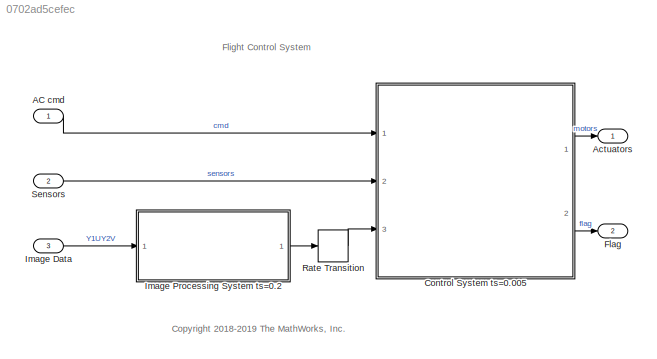
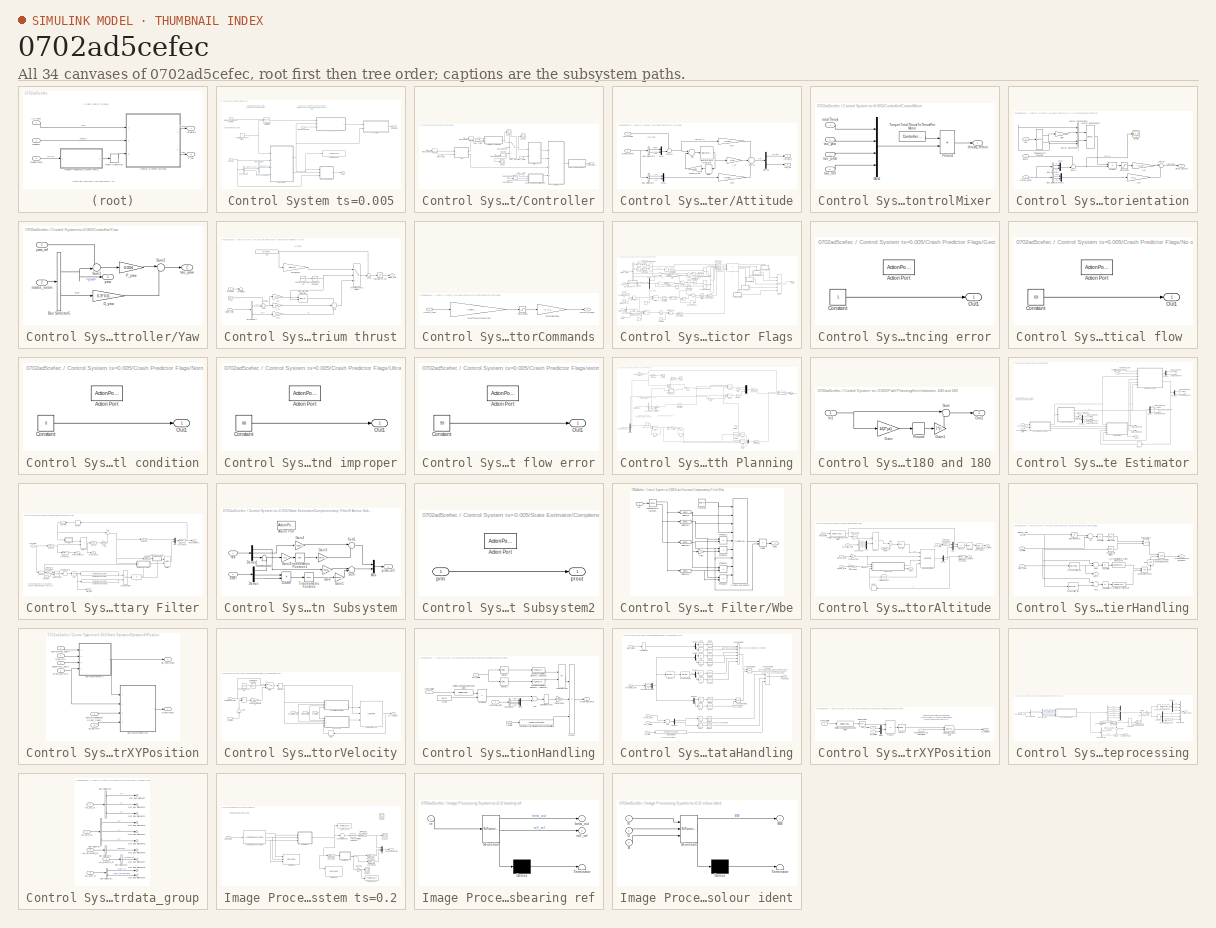
[diagram: thumbnail index - all 34 canvases of the model, root first then tree order]
MODEL slx_0702ad5cefec
KIND model
CONFIG AbsTol = auto
CONFIG EnableMultiTasking = on
CONFIG FixedStep = Ts
CONFIG MaxStep = auto
CONFIG MinStep = auto
CONFIG RelTol = 1e-3
CONFIG SampleTimeConstraint = Unconstrained
CONFIG Solver = ode3
CONFIG SolverName = ode3
CONFIG StartTime = 0
CONFIG StopTime = TFinal
BLOCK [Inport] AC cmd
  BusOutputAsStruct = on
  IconDisplay = Port number
  OutDataTypeStr = Bus: CommandBus
BLOCK [Outport] Actuators
  IconDisplay = Port number
  OutDataTypeStr = single
  PortDimensions = 4
  VectorParamsAs1DForOutWhenUnconnected = off
BLOCK [SubSystem] Control System ts=0.005
  InitFcn = codertarget.parrot.internal.fcsSubsystemCallback(gcb);
  Ports = [3, 2]
  RTWSystemCode = Reusable function
  RequestExecContextInheritance = off
  SystemSampleTime = Ts
  TreatAsAtomicUnit = on
BLOCK [BusSelector] Control System ts=0.005/Bus Selector1
  OutputAsBus = off
  OutputSignals = opticalFlow_data
  Ports = [1, 1]
BLOCK [BusSelector] Control System ts=0.005/Bus Selector4
  OutputAsBus = off
  OutputSignals = VisionSensors,SensorCalibration
  Ports = [1, 2]
BLOCK [BusAssignment] Control System ts=0.005/Control Mode Update
  AssignedSignals = controlModePosVSOrient
  Ports = [2, 1]
BLOCK [SubSystem] Control System ts=0.005/Controller
  Ports = [2, 1]
  RequestExecContextInheritance = off
BLOCK [SubSystem] Control System ts=0.005/Controller/Attitude
  Ports = [2, 2]
  RequestExecContextInheritance = off
BLOCK [Sum] Control System ts=0.005/Controller/Attitude/Add
  InputSameDT = off
  Inputs = +-
  OutDataTypeStr = Inherit: Inherit via internal rule
  Ports = [2, 1]
  SaturateOnIntegerOverflow = off
BLOCK [BusSelector] Control System ts=0.005/Controller/Attitude/Bus Selector3
  OutputAsBus = off
  OutputSignals = pitch,roll
  Ports = [1, 2]
BLOCK [BusSelector] Control System ts=0.005/Controller/Attitude/Bus Selector4
  OutputAsBus = off
  OutputSignals = q,p
  Ports = [1, 2]
BLOCK [Gain] Control System ts=0.005/Controller/Attitude/D_pr
  Gain = [0.002;0.003]
  OutDataTypeStr = Inherit: Inherit via internal rule
  ParamDataTypeStr = Inherit: Inherit via internal rule
  SaturateOnIntegerOverflow = off
BLOCK [Delay] Control System ts=0.005/Controller/Attitude/Delay
  DelayLength = 1
  InitialCondition = 0
  InputPortMap = u0
  Ports = [1, 1]
BLOCK [Demux] Control System ts=0.005/Controller/Attitude/Demux
  DisplayOption = bar
  Outputs = 2
  Ports = [1, 2]
BLOCK [DiscreteIntegrator] Control System ts=0.005/Controller/Attitude/Discrete-Time Integrator
  ICPrevOutput = DiscIntNeverNeededParam
  ICPrevScaledInput = DiscIntNeverNeededParam
  InitialConditionSetting = Auto
  LimitOutput = on
  LowerSaturationLimit = -2
  Ports = [1, 1]
  SampleTime = Ts
  UpperSaturationLimit = 2
BLOCK [Gain] Control System ts=0.005/Controller/Attitude/I_pr
  Gain = 0.01
  OutDataTypeStr = Inherit: Inherit via internal rule
  ParamDataTypeStr = Inherit: Inherit via internal rule
  SaturateOnIntegerOverflow = off
BLOCK [Mux] Control System ts=0.005/Controller/Attitude/Mux
  DisplayOption = bar
  Inputs = 2
  Ports = [2, 1]
BLOCK [Mux] Control System ts=0.005/Controller/Attitude/Mux1
  DisplayOption = bar
  Inputs = 2
  Ports = [2, 1]
BLOCK [Gain] Control System ts=0.005/Controller/Attitude/P_pr
  Gain = [0.013;0.011]
  OutDataTypeStr = Inherit: Inherit via internal rule
  ParamDataTypeStr = Inherit: Inherit via internal rule
  SaturateOnIntegerOverflow = off
BLOCK [Sum] Control System ts=0.005/Controller/Attitude/Sum16
  AccumDataTypeStr = single
  IconShape = round
  InputSameDT = off
  Inputs = ++-
  OutDataTypeStr = single
  Ports = [3, 1]
BLOCK [Sum] Control System ts=0.005/Controller/Attitude/Sum19
  IconShape = round
  InputSameDT = off
  Inputs = +-|
  OutDataTypeStr = Inherit: Inherit via internal rule
  Ports = [2, 1]
  SaturateOnIntegerOverflow = off
BLOCK [Gain] Control System ts=0.005/Controller/Attitude/antiWU_Gain
  Gain = 0.001
  OutDataTypeStr = Inherit: Inherit via internal rule
  ParamDataTypeStr = Inherit: Inherit via internal rule
  SaturateOnIntegerOverflow = off
BLOCK [Inport] Control System ts=0.005/Controller/Attitude/refAttitude
  IconDisplay = Port number
BLOCK [Inport] Control System ts=0.005/Controller/Attitude/states_estim
  IconDisplay = Port number
  Port = 2
BLOCK [Outport] Control System ts=0.005/Controller/Attitude/tau_pitch
  IconDisplay = Port number
  VectorParamsAs1DForOutWhenUnconnected = off
BLOCK [Outport] Control System ts=0.005/Controller/Attitude/tau_roll
  IconDisplay = Port number
  Port = 2
  VectorParamsAs1DForOutWhenUnconnected = off
BLOCK [SubSystem] Control System ts=0.005/Controller/ControlMixer
  Ports = [4, 1]
  RequestExecContextInheritance = off
BLOCK [Mux] Control System ts=0.005/Controller/ControlMixer/Mux2
  DisplayOption = bar
  Ports = [4, 1]
BLOCK [Product] Control System ts=0.005/Controller/ControlMixer/Product
  InputSameDT = off
  Multiplication = Matrix(*)
  OutDataTypeStr = Inherit: Inherit via internal rule
  Ports = [2, 1]
  SaturateOnIntegerOverflow = off
BLOCK [Constant] Control System ts=0.005/Controller/ControlMixer/TorqueTotalThrustToThrustPerMotor
  OutDataTypeStr = single
  Value = Controller.Q2Ts
BLOCK [Inport] Control System ts=0.005/Controller/ControlMixer/tau_pitch
  IconDisplay = Port number
BLOCK [Inport] Control System ts=0.005/Controller/ControlMixer/tau_roll
  IconDisplay = Port number
  Port = 2
BLOCK [Inport] Control System ts=0.005/Controller/ControlMixer/tau_yaw
  IconDisplay = Port number
  Port = 3
BLOCK [Outport] Control System ts=0.005/Controller/ControlMixer/thrusts_refout
  IconDisplay = Port number
  VectorParamsAs1DForOutWhenUnconnected = off
BLOCK [Inport] Control System ts=0.005/Controller/ControlMixer/totalThrust
  IconDisplay = Port number
  Port = 4
BLOCK [Inport] Control System ts=0.005/Controller/In Bus Element
  IconDisplay = Port number
BLOCK [Inport] Control System ts=0.005/Controller/In Bus Element1
  IconDisplay = Port number
BLOCK [Inport] Control System ts=0.005/Controller/In Bus Element2
  IconDisplay = Port number
BLOCK [Inport] Control System ts=0.005/Controller/In Bus Element3
  IconDisplay = Port number
BLOCK [Inport] Control System ts=0.005/Controller/In Bus Element5
  IconDisplay = Port number
BLOCK [Inport] Control System ts=0.005/Controller/In Bus Element6
  IconDisplay = Port number
BLOCK [Scope] Control System ts=0.005/Controller/Scope
  Floating = off
  NumInputPorts = 1
  Ports = [1]
  ScopeSpecificationString = Simulink.scopes.TimeScopeBlockCfg('CurrentConfiguration', extmgr.ConfigurationSet(extmgr.Configuration('Core','General UI',true),extmgr.Configuration('Core','Source UI',true),extmgr.Configuration('Sources','WiredSimulink',true,'DataLoggingVariableName','ScopeData1'),extmgr.Configuration('Visuals','Time Domain',true),extmgr.Configuration('Tools','Plot Navigation',true),extmgr.Configuration('Tools',...<+40ch>
BLOCK [Scope] Control System ts=0.005/Controller/Scope1
  Floating = off
  NumInputPorts = 1
  Ports = [1]
  ScopeSpecificationString = Simulink.scopes.TimeScopeBlockCfg('CurrentConfiguration', extmgr.ConfigurationSet(extmgr.Configuration('Core','General UI',true),extmgr.Configuration('Core','Source UI',true),extmgr.Configuration('Sources','WiredSimulink',true,'DataLoggingVariableName','ScopeData2'),extmgr.Configuration('Visuals','Time Domain',true),extmgr.Configuration('Tools','Plot Navigation',true),extmgr.Configuration('Tools',...<+40ch>
BLOCK [Scope] Control System ts=0.005/Controller/Scope2
  Floating = off
  NumInputPorts = 1
  Ports = [1]
  ScopeSpecificationString = Simulink.scopes.TimeScopeBlockCfg('CurrentConfiguration', extmgr.ConfigurationSet(extmgr.Configuration('Core','General UI',true),extmgr.Configuration('Core','Source UI',true),extmgr.Configuration('Sources','WiredSimulink',true,'DataLoggingVariableName','ScopeData3'),extmgr.Configuration('Visuals','Time Domain',true,'SerializedDisplays',{struct('MinYLimReal','-0.00113','MaxYLimReal','0.00013','YLab...<+1392ch>
BLOCK [Selector] Control System ts=0.005/Controller/Selector
  IndexOptions = Index vector (dialog)
  Indices = 3
  InputPortWidth = 3
  OutputSizes = 1
  Ports = [1, 1]
BLOCK [Selector] Control System ts=0.005/Controller/Selector1
  IndexOptions = Index vector (dialog)
  Indices = [1 2]
  InputPortWidth = 3
  OutputSizes = 1
  Ports = [1, 1]
BLOCK [Selector] Control System ts=0.005/Controller/Selector2
  IndexOptions = Index vector (dialog)
  Indices = [2 3]
  InputPortWidth = 3
  OutputSizes = 1
  Ports = [1, 1]
BLOCK [Selector] Control System ts=0.005/Controller/Selector3
  IndexOptions = Index vector (dialog)
  Indices = 1
  InputPortWidth = 3
  OutputSizes = 1
  Ports = [1, 1]
BLOCK [Switch] Control System ts=0.005/Controller/Switch_refAtt
  Criteria = u2 > Threshold
  InputSameDT = off
  SaturateOnIntegerOverflow = off
BLOCK [SubSystem] Control System ts=0.005/Controller/XY-to-reference-orientation
  Ports = [3, 1]
  RequestExecContextInheritance = off
BLOCK [BusSelector] Control System ts=0.005/Controller/XY-to-reference-orientation/Bus Selector1
  OutputAsBus = off
  OutputSignals = X,Y
  Ports = [1, 2]
BLOCK [BusSelector] Control System ts=0.005/Controller/XY-to-reference-orientation/Bus Selector2
  OutputAsBus = off
  OutputSignals = dx,dy
  Ports = [1, 2]
BLOCK [Gain] Control System ts=0.005/Controller/XY-to-reference-orientation/D_xy
  Gain = [0.1, -0.1]
  OutDataTypeStr = single
  ParamDataTypeStr = single
BLOCK [Gain] Control System ts=0.005/Controller/XY-to-reference-orientation/Gain
  Gain = -1
  OutDataTypeStr = Inherit: Inherit via internal rule
  ParamDataTypeStr = Inherit: Inherit via internal rule
  SaturateOnIntegerOverflow = off
BLOCK [Concatenate] Control System ts=0.005/Controller/XY-to-reference-orientation/Matrix Concatenate
  ConcatenateDimension = 2
  Mode = Multidimensional array
  Ports = [2, 1]
BLOCK [Mux] Control System ts=0.005/Controller/XY-to-reference-orientation/Mux
  DisplayOption = bar
  Inputs = 2
  Ports = [2, 1]
BLOCK [Mux] Control System ts=0.005/Controller/XY-to-reference-orientation/Mux1
  DisplayOption = bar
  Inputs = 2
  Ports = [2, 1]
BLOCK [Gain] Control System ts=0.005/Controller/XY-to-reference-orientation/P_xy
  Gain = [-0.24,0.24]
  OutDataTypeStr = single
  ParamDataTypeStr = single
BLOCK [Product] Control System ts=0.005/Controller/XY-to-reference-orientation/Product
  InputSameDT = off
  Multiplication = Matrix(*)
  OutDataTypeStr = single
  Ports = [2, 1]
  SaturateOnIntegerOverflow = off
BLOCK [Saturate] Control System ts=0.005/Controller/XY-to-reference-orientation/Saturation
  InputPortMap = u0
  LowerLimit = -3
  OutDataTypeStr = single
  Ports = [1, 1]
  UpperLimit = 3
BLOCK [Scope] Control System ts=0.005/Controller/XY-to-reference-orientation/Scope
  Floating = off
  NumInputPorts = 1
  Ports = [1]
  ScopeSpecificationString = Simulink.scopes.TimeScopeBlockCfg('CurrentConfiguration', extmgr.ConfigurationSet(extmgr.Configuration('Core','General UI',true),extmgr.Configuration('Core','Source UI',true),extmgr.Configuration('Sources','WiredSimulink',true,'DataLoggingVariableName','ScopeData1'),extmgr.Configuration('Visuals','Time Domain',true,'SerializedDisplays',{struct('MinYLimReal','-0.15922','MaxYLimReal','1.1288','YLabe...<+1403ch>
BLOCK [Sum] Control System ts=0.005/Controller/XY-to-reference-orientation/Sum17
  AccumDataTypeStr = single
  IconShape = round
  InputSameDT = off
  Inputs = +-|
  OutDataTypeStr = Inherit: Inherit via internal rule
  Ports = [2, 1]
  SaturateOnIntegerOverflow = off
BLOCK [Sum] Control System ts=0.005/Controller/XY-to-reference-orientation/Sum18
  AccumDataTypeStr = single
  IconShape = round
  InputSameDT = off
  Inputs = |++
  OutDataTypeStr = single
  Ports = [2, 1]
BLOCK [Trigonometry] Control System ts=0.005/Controller/XY-to-reference-orientation/Trigonometric Function
  Operator = sincos
  Ports = [1, 2]
BLOCK [Concatenate] Control System ts=0.005/Controller/XY-to-reference-orientation/Vector Concatenate
  Ports = [2, 1]
BLOCK [Concatenate] Control System ts=0.005/Controller/XY-to-reference-orientation/Vector Concatenate1
  Ports = [2, 1]
BLOCK [Outport] Control System ts=0.005/Controller/XY-to-reference-orientation/pitch_roll_cmd
  IconDisplay = Port number
  VectorParamsAs1DForOutWhenUnconnected = off
BLOCK [Inport] Control System ts=0.005/Controller/XY-to-reference-orientation/posXY
  IconDisplay = Port number
BLOCK [Inport] Control System ts=0.005/Controller/XY-to-reference-orientation/states_estim
  IconDisplay = Port number
  Port = 2
BLOCK [Inport] Control System ts=0.005/Controller/XY-to-reference-orientation/yaw
  IconDisplay = Port number
  Port = 3
BLOCK [SubSystem] Control System ts=0.005/Controller/Yaw
  Ports = [2, 2]
  RequestExecContextInheritance = off
BLOCK [BusSelector] Control System ts=0.005/Controller/Yaw/Bus Selector5
  OutputAsBus = off
  OutputSignals = yaw,r
  Ports = [1, 2]
BLOCK [Gain] Control System ts=0.005/Controller/Yaw/D_yaw
  Gain = 0.3*0.004
  OutDataTypeStr = Inherit: Inherit via internal rule
  ParamDataTypeStr = Inherit: Inherit via internal rule
  SaturateOnIntegerOverflow = off
BLOCK [Gain] Control System ts=0.005/Controller/Yaw/P_yaw
  Gain = 0.004
  OutDataTypeStr = single
  ParamDataTypeStr = single
  SaturateOnIntegerOverflow = off
BLOCK [Sum] Control System ts=0.005/Controller/Yaw/Sum1
  AccumDataTypeStr = single
  IconShape = round
  InputSameDT = off
  Inputs = +-|
  OutDataTypeStr = single
  Ports = [2, 1]
BLOCK [Sum] Control System ts=0.005/Controller/Yaw/Sum2
  IconShape = round
  InputSameDT = off
  Inputs = |+-
  OutDataTypeStr = Inherit: Inherit via internal rule
  Ports = [2, 1]
  SaturateOnIntegerOverflow = off
BLOCK [Inport] Control System ts=0.005/Controller/Yaw/states_estim
  IconDisplay = Port number
  Port = 2
BLOCK [Outport] Control System ts=0.005/Controller/Yaw/tau_yaw
  IconDisplay = Port number
  Port = 2
  VectorParamsAs1DForOutWhenUnconnected = off
BLOCK [Outport] Control System ts=0.005/Controller/Yaw/yaw
  IconDisplay = Port number
  VectorParamsAs1DForOutWhenUnconnected = off
BLOCK [Inport] Control System ts=0.005/Controller/Yaw/yaw_ref
  IconDisplay = Port number
BLOCK [SubSystem] Control System ts=0.005/Controller/gravity feedforward//equilibrium thrust
  Ports = [3, 1]
  RequestExecContextInheritance = off
BLOCK [BusSelector] Control System ts=0.005/Controller/gravity feedforward//equilibrium thrust/Bus Selector1
  OutputAsBus = off
  OutputSignals = Z,dz
  Ports = [1, 2]
BLOCK [Reference] Control System ts=0.005/Controller/gravity feedforward//equilibrium thrust/Compare To Constant  REF=simulink/Logic and Bit
Operations/Compare
To Constant
  Ports = [1, 1]
  SourceBlock = simulink/Logic and Bit\nOperations/Compare\nTo Constant
  SourceProductBaseCode = SL
  SourceProductName = Simulink
  SourceType = Compare To Constant
BLOCK [Reference] Control System ts=0.005/Controller/gravity feedforward//equilibrium thrust/Counter Free-Running  REF=simulink/Sources/Counter
Free-Running
  Ports = [0, 1]
  SourceBlock = simulink/Sources/Counter\nFree-Running
  SourceProductBaseCode = SL
  SourceProductName = Simulink
  SourceType = Counter Free-Running
BLOCK [Gain] Control System ts=0.005/Controller/gravity feedforward//equilibrium thrust/D_z1
  Gain = 0.5
  OutDataTypeStr = single
  ParamDataTypeStr = single
BLOCK [DiscreteIntegrator] Control System ts=0.005/Controller/gravity feedforward//equilibrium thrust/Discrete-Time Integrator
  ExternalReset = falling
  ICPrevOutput = DiscIntNeverNeededParam
  ICPrevScaledInput = DiscIntNeverNeededParam
  InitialConditionSetting = Auto
  LimitOutput = on
  LowerSaturationLimit = -2
  Ports = [2, 1]
  SampleTime = Ts
  UpperSaturationLimit = 2
BLOCK [Gain] Control System ts=0.005/Controller/gravity feedforward//equilibrium thrust/I_pr
  Gain = 0.24
  OutDataTypeStr = Inherit: Inherit via internal rule
  ParamDataTypeStr = Inherit: Inherit via internal rule
  SaturateOnIntegerOverflow = off
BLOCK [Gain] Control System ts=0.005/Controller/gravity feedforward//equilibrium thrust/P_z1
  Gain = 0.8
  OutDataTypeStr = single
  ParamDataTypeStr = single
BLOCK [Inport] Control System ts=0.005/Controller/gravity feedforward//equilibrium thrust/PosZ
  IconDisplay = Port number
  Port = 2
BLOCK [Saturate] Control System ts=0.005/Controller/gravity feedforward//equilibrium thrust/SaturationThrust1
  InputPortMap = u0
  LowerLimit = -4*Controller.totalThrustMaxRelative*Controller.motorsThrustPerMotorMax
  OutDataTypeStr = single
  Ports = [1, 1]
  UpperLimit = 4*Controller.totalThrustMaxRelative*Controller.motorsThrustPerMotorMax
BLOCK [Sum] Control System ts=0.005/Controller/gravity feedforward//equilibrium thrust/Sum1
  AccumDataTypeStr = single
  IconShape = round
  InputSameDT = off
  Inputs = ++-
  OutDataTypeStr = single
  Ports = [3, 1]
BLOCK [Sum] Control System ts=0.005/Controller/gravity feedforward//equilibrium thrust/Sum2
  AccumDataTypeStr = single
  IconShape = round
  InputSameDT = off
  Inputs = +-|
  OutDataTypeStr = single
  Ports = [2, 1]
BLOCK [Sum] Control System ts=0.005/Controller/gravity feedforward//equilibrium thrust/Sum5
  AccumDataTypeStr = single
  IconShape = round
  InputSameDT = off
  Inputs = ++|
  OutDataTypeStr = single
  Ports = [2, 1]
BLOCK [Switch] Control System ts=0.005/Controller/gravity feedforward//equilibrium thrust/TakeoffOrControl_Switch1
  Criteria = u2 > Threshold
  InputSameDT = off
  SaturateOnIntegerOverflow = off
BLOCK [Terminator] Control System ts=0.005/Controller/gravity feedforward//equilibrium thrust/Terminator
BLOCK [Outport] Control System ts=0.005/Controller/gravity feedforward//equilibrium thrust/altitude_cmd
  IconDisplay = Port number
  VectorParamsAs1DForOutWhenUnconnected = off
BLOCK [Inport] Control System ts=0.005/Controller/gravity feedforward//equilibrium thrust/states_estim
  IconDisplay = Port number
BLOCK [Inport] Control System ts=0.005/Controller/gravity feedforward//equilibrium thrust/takeoff_flag
  IconDisplay = Port number
  Port = 3
BLOCK [Gain] Control System ts=0.005/Controller/gravity feedforward//equilibrium thrust/takeoff_gain1
  Gain = Controller.takeoffGain
  OutDataTypeStr = single
  ParamDataTypeStr = single
BLOCK [Constant] Control System ts=0.005/Controller/gravity feedforward//equilibrium thrust/w1
  OutDataTypeStr = single
  SampleTime = Ts
  Value = -g*Vehicle.Airframe.mass
BLOCK [Outport] Control System ts=0.005/Controller/motors_refout
  IconDisplay = Port number
  VectorParamsAs1DForOutWhenUnconnected = off
BLOCK [Inport] Control System ts=0.005/Controller/states_estim
  IconDisplay = Port number
  Port = 2
BLOCK [InportShadow] Control System ts=0.005/Controller/states_estim1
  IconDisplay = Port number
  Port = 2
BLOCK [InportShadow] Control System ts=0.005/Controller/states_estim2
  IconDisplay = Port number
  Port = 2
BLOCK [InportShadow] Control System ts=0.005/Controller/states_estim3
  IconDisplay = Port number
  Port = 2
BLOCK [SubSystem] Control System ts=0.005/Controller/thrustsToMotorCommands
  Ports = [1, 1]
  RequestExecContextInheritance = off
BLOCK [Gain] Control System ts=0.005/Controller/thrustsToMotorCommands/MotorDirections
  Gain = [1 -1 1 -1]
  OutDataTypeStr = Inherit: Inherit via internal rule
  ParamDataTypeStr = Inherit: Inherit via internal rule
  SaturateOnIntegerOverflow = off
BLOCK [Saturate] Control System ts=0.005/Controller/thrustsToMotorCommands/Saturation5
  InputPortMap = u0
  LowerLimit = Vehicle.Motor.minLimit
  Ports = [1, 1]
  UpperLimit = Vehicle.Motor.maxLimit
BLOCK [Gain] Control System ts=0.005/Controller/thrustsToMotorCommands/ThrustToMotorCommand
  Gain = -Vehicle.Motor.thrustToMotorCommand
  OutDataTypeStr = Inherit: Inherit via internal rule
  ParamDataTypeStr = Inherit: Inherit via internal rule
  SaturateOnIntegerOverflow = off
BLOCK [Outport] Control System ts=0.005/Controller/thrustsToMotorCommands/motors_cmdout
  IconDisplay = Port number
  VectorParamsAs1DForOutWhenUnconnected = off
BLOCK [Inport] Control System ts=0.005/Controller/thrustsToMotorCommands/thrusts_refin
  IconDisplay = Port number
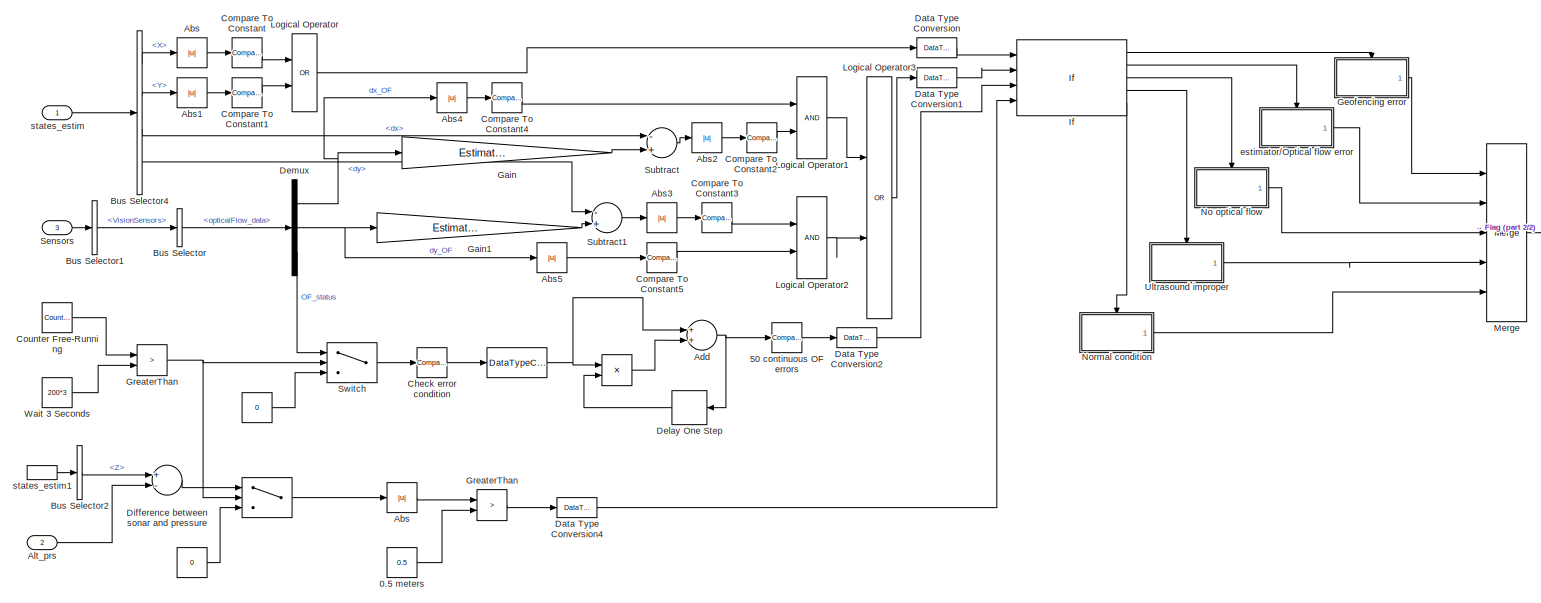
[diagram: Control System ts=0.005/Crash Predictor Flags - part 1/2, most of the canvas]
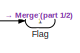
[diagram: Control System ts=0.005/Crash Predictor Flags - part 2/2, middle right region]
BLOCK [SubSystem] Control System ts=0.005/Crash Predictor Flags
  Ports = [3, 1]
  RequestExecContextInheritance = off
BLOCK [Constant] Control System ts=0.005/Crash Predictor Flags/ 
  Value = 0
BLOCK [Product] Control System ts=0.005/Crash Predictor Flags/  
  InputSameDT = off
  Inputs = **
  OutDataTypeStr = Inherit: Inherit via internal rule
  Ports = [2, 1]
  RndMeth = Floor
  SaturateOnIntegerOverflow = off
BLOCK [DataTypeConversion] Control System ts=0.005/Crash Predictor Flags/   
  RndMeth = Floor
  SaturateOnIntegerOverflow = off
BLOCK [Constant] Control System ts=0.005/Crash Predictor Flags/    
  OutDataTypeStr = single
  Value = 0
BLOCK [Switch] Control System ts=0.005/Crash Predictor Flags/         
  Criteria = u2 > Threshold
  InputSameDT = off
  SaturateOnIntegerOverflow = off
BLOCK [Constant] Control System ts=0.005/Crash Predictor Flags/0.5 meters
  Value = 0.5
BLOCK [Reference] Control System ts=0.005/Crash Predictor Flags/50 continuous OF errors   REF=simulink/Logic and Bit
Operations/Compare
To Constant
  Ports = [1, 1]
  SourceBlock = simulink/Logic and Bit\nOperations/Compare\nTo Constant
  SourceProductBaseCode = SL
  SourceProductName = Simulink
  SourceType = Compare To Constant
BLOCK [Abs] Control System ts=0.005/Crash Predictor Flags/Abs
  SaturateOnIntegerOverflow = off
BLOCK [Abs] Control System ts=0.005/Crash Predictor Flags/Abs  
  SaturateOnIntegerOverflow = off
BLOCK [Abs] Control System ts=0.005/Crash Predictor Flags/Abs1
  SaturateOnIntegerOverflow = off
BLOCK [Abs] Control System ts=0.005/Crash Predictor Flags/Abs2
  SaturateOnIntegerOverflow = off
BLOCK [Abs] Control System ts=0.005/Crash Predictor Flags/Abs3
  SaturateOnIntegerOverflow = off
BLOCK [Abs] Control System ts=0.005/Crash Predictor Flags/Abs4
  SaturateOnIntegerOverflow = off
BLOCK [Abs] Control System ts=0.005/Crash Predictor Flags/Abs5
  SaturateOnIntegerOverflow = off
BLOCK [Sum] Control System ts=0.005/Crash Predictor Flags/Add
  InputSameDT = off
  OutDataTypeStr = Inherit: Inherit via internal rule
  Ports = [2, 1]
  SaturateOnIntegerOverflow = off
BLOCK [Inport] Control System ts=0.005/Crash Predictor Flags/Alt_prs
  IconDisplay = Port number
  Port = 2
BLOCK [BusSelector] Control System ts=0.005/Crash Predictor Flags/Bus Selector
  OutputAsBus = off
  OutputSignals = opticalFlow_data
  Ports = [1, 1]
BLOCK [BusSelector] Control System ts=0.005/Crash Predictor Flags/Bus Selector1
  OutputAsBus = off
  OutputSignals = VisionSensors
  Ports = [1, 1]
BLOCK [BusSelector] Control System ts=0.005/Crash Predictor Flags/Bus Selector2
  OutputAsBus = off
  OutputSignals = Z
  Ports = [1, 1]
BLOCK [BusSelector] Control System ts=0.005/Crash Predictor Flags/Bus Selector4
  OutputAsBus = off
  OutputSignals = X,Y,dx,dy
  Ports = [1, 4]
BLOCK [Reference] Control System ts=0.005/Crash Predictor Flags/Check error condition  REF=simulink/Logic and Bit
Operations/Compare
To Constant
  Ports = [1, 1]
  SourceBlock = simulink/Logic and Bit\nOperations/Compare\nTo Constant
  SourceProductBaseCode = SL
  SourceProductName = Simulink
  SourceType = Compare To Constant
BLOCK [Reference] Control System ts=0.005/Crash Predictor Flags/Compare To Constant  REF=simulink/Logic and Bit
Operations/Compare
To Constant
  Ports = [1, 1]
  SourceBlock = simulink/Logic and Bit\nOperations/Compare\nTo Constant
  SourceProductBaseCode = SL
  SourceProductName = Simulink
  SourceType = Compare To Constant
BLOCK [Reference] Control System ts=0.005/Crash Predictor Flags/Compare To Constant1  REF=simulink/Logic and Bit
Operations/Compare
To Constant
  Ports = [1, 1]
  SourceBlock = simulink/Logic and Bit\nOperations/Compare\nTo Constant
  SourceProductBaseCode = SL
  SourceProductName = Simulink
  SourceType = Compare To Constant
BLOCK [Reference] Control System ts=0.005/Crash Predictor Flags/Compare To Constant2  REF=simulink/Logic and Bit
Operations/Compare
To Constant
  Ports = [1, 1]
  SourceBlock = simulink/Logic and Bit\nOperations/Compare\nTo Constant
  SourceProductBaseCode = SL
  SourceProductName = Simulink
  SourceType = Compare To Constant
BLOCK [Reference] Control System ts=0.005/Crash Predictor Flags/Compare To Constant3  REF=simulink/Logic and Bit
Operations/Compare
To Constant
  Ports = [1, 1]
  SourceBlock = simulink/Logic and Bit\nOperations/Compare\nTo Constant
  SourceProductBaseCode = SL
  SourceProductName = Simulink
  SourceType = Compare To Constant
BLOCK [Reference] Control System ts=0.005/Crash Predictor Flags/Compare To Constant4  REF=simulink/Logic and Bit
Operations/Compare
To Constant
  Ports = [1, 1]
  SourceBlock = simulink/Logic and Bit\nOperations/Compare\nTo Constant
  SourceProductBaseCode = SL
  SourceProductName = Simulink
  SourceType = Compare To Constant
BLOCK [Reference] Control System ts=0.005/Crash Predictor Flags/Compare To Constant5  REF=simulink/Logic and Bit
Operations/Compare
To Constant
  Ports = [1, 1]
  SourceBlock = simulink/Logic and Bit\nOperations/Compare\nTo Constant
  SourceProductBaseCode = SL
  SourceProductName = Simulink
  SourceType = Compare To Constant
BLOCK [Reference] Control System ts=0.005/Crash Predictor Flags/Counter Free-Running  REF=simulink/Sources/Counter
Free-Running
  Ports = [0, 1]
  SourceBlock = simulink/Sources/Counter\nFree-Running
  SourceProductBaseCode = SL
  SourceProductName = Simulink
  SourceType = Counter Free-Running
BLOCK [DataTypeConversion] Control System ts=0.005/Crash Predictor Flags/Data Type Conversion
  OutDataTypeStr = uint8
  RndMeth = Nearest
  SaturateOnIntegerOverflow = off
BLOCK [DataTypeConversion] Control System ts=0.005/Crash Predictor Flags/Data Type Conversion1
  OutDataTypeStr = uint8
  RndMeth = Nearest
  SaturateOnIntegerOverflow = off
BLOCK [DataTypeConversion] Control System ts=0.005/Crash Predictor Flags/Data Type Conversion2
  OutDataTypeStr = uint8
  RndMeth = Nearest
  SaturateOnIntegerOverflow = off
BLOCK [DataTypeConversion] Control System ts=0.005/Crash Predictor Flags/Data Type Conversion4
  OutDataTypeStr = uint8
  RndMeth = Nearest
  SaturateOnIntegerOverflow = off
BLOCK [Delay] Control System ts=0.005/Crash Predictor Flags/Delay One Step
  DelayLength = 1
  InputPortMap = u0
  Ports = [1, 1]
BLOCK [Demux] Control System ts=0.005/Crash Predictor Flags/Demux
  DisplayOption = bar
  Outputs = 3
  Ports = [1, 3]
BLOCK [Sum] Control System ts=0.005/Crash Predictor Flags/Difference between sonar and pressure
  InputSameDT = off
  Inputs = +-
  OutDataTypeStr = Inherit: Inherit via internal rule
  Ports = [2, 1]
  SaturateOnIntegerOverflow = off
BLOCK [Outport] Control System ts=0.005/Crash Predictor Flags/Flag
  IconDisplay = Port number
  VectorParamsAs1DForOutWhenUnconnected = off
BLOCK [Gain] Control System ts=0.005/Crash Predictor Flags/Gain
  Gain = Estimator.pos.visDeltaXYMax
  OutDataTypeStr = Inherit: Inherit via internal rule
  ParamDataTypeStr = Inherit: Inherit via internal rule
  SaturateOnIntegerOverflow = off
BLOCK [Gain] Control System ts=0.005/Crash Predictor Flags/Gain1
  Gain = Estimator.pos.visDeltaXYMax
  OutDataTypeStr = Inherit: Inherit via internal rule
  ParamDataTypeStr = Inherit: Inherit via internal rule
  SaturateOnIntegerOverflow = off
BLOCK [SubSystem] Control System ts=0.005/Crash Predictor Flags/Geofencing error
  Ports = [0, 1, 0, 0, 0, 0, 0, 1]
  RequestExecContextInheritance = off
  TreatAsAtomicUnit = on
BLOCK [ActionPort] Control System ts=0.005/Crash Predictor Flags/Geofencing error/Action Port
  ActionPortLabel = if(u1 > 0)
BLOCK [Constant] Control System ts=0.005/Crash Predictor Flags/Geofencing error/Constant
  OutDataTypeStr = uint8
BLOCK [Outport] Control System ts=0.005/Crash Predictor Flags/Geofencing error/Out1
  IconDisplay = Port number
  VectorParamsAs1DForOutWhenUnconnected = off
BLOCK [RelationalOperator] Control System ts=0.005/Crash Predictor Flags/GreaterThan
  InputSameDT = off
  Operator = >
  OutDataTypeStr = boolean
  Ports = [2, 1]
  RndMeth = Simplest
BLOCK [RelationalOperator] Control System ts=0.005/Crash Predictor Flags/GreaterThan  
  InputSameDT = off
  Operator = >
  OutDataTypeStr = boolean
  Ports = [2, 1]
  RndMeth = Simplest
BLOCK [If] Control System ts=0.005/Crash Predictor Flags/If
  ElseIfExpressions = u2 > 0, u3> 0,u4>0
  NumInputs = 4
  Ports = [4, 5]
BLOCK [Logic] Control System ts=0.005/Crash Predictor Flags/Logical Operator
  AllPortsSameDT = off
  Operator = OR
  Ports = [2, 1]
BLOCK [Logic] Control System ts=0.005/Crash Predictor Flags/Logical Operator1
  AllPortsSameDT = off
  OutDataTypeStr = boolean
  Ports = [2, 1]
BLOCK [Logic] Control System ts=0.005/Crash Predictor Flags/Logical Operator2
  AllPortsSameDT = off
  OutDataTypeStr = boolean
  Ports = [2, 1]
BLOCK [Logic] Control System ts=0.005/Crash Predictor Flags/Logical Operator3
  AllPortsSameDT = off
  Operator = OR
  Ports = [2, 1]
BLOCK [Merge] Control System ts=0.005/Crash Predictor Flags/Merge
  InitialOutput = 0
  Inputs = 5
  Ports = [5, 1]
BLOCK [SubSystem] Control System ts=0.005/Crash Predictor Flags/No optical flow 
  Ports = [0, 1, 0, 0, 0, 0, 0, 1]
  RequestExecContextInheritance = off
  TreatAsAtomicUnit = on
BLOCK [ActionPort] Control System ts=0.005/Crash Predictor Flags/No optical flow /Action Port
  ActionPortLabel = elseif( u3> 0)
BLOCK [Constant] Control System ts=0.005/Crash Predictor Flags/No optical flow /Constant
  OutDataTypeStr = uint8
  Value = 69
BLOCK [Outport] Control System ts=0.005/Crash Predictor Flags/No optical flow /Out1
  IconDisplay = Port number
  VectorParamsAs1DForOutWhenUnconnected = off
BLOCK [SubSystem] Control System ts=0.005/Crash Predictor Flags/Normal condition
  Ports = [0, 1, 0, 0, 0, 0, 0, 1]
  RequestExecContextInheritance = off
  TreatAsAtomicUnit = on
BLOCK [ActionPort] Control System ts=0.005/Crash Predictor Flags/Normal condition/Action Port
  ActionPortLabel = else
BLOCK [Constant] Control System ts=0.005/Crash Predictor Flags/Normal condition/Constant
  OutDataTypeStr = uint8
  Value = 0
BLOCK [Outport] Control System ts=0.005/Crash Predictor Flags/Normal condition/Out1
  IconDisplay = Port number
  VectorParamsAs1DForOutWhenUnconnected = off
BLOCK [Inport] Control System ts=0.005/Crash Predictor Flags/Sensors
  IconDisplay = Port number
  Port = 3
BLOCK [Sum] Control System ts=0.005/Crash Predictor Flags/Subtract
  InputSameDT = off
  Inputs = -+
  OutDataTypeStr = Inherit: Inherit via internal rule
  Ports = [2, 1]
  SaturateOnIntegerOverflow = off
BLOCK [Sum] Control System ts=0.005/Crash Predictor Flags/Subtract1
  InputSameDT = off
  Inputs = -+
  OutDataTypeStr = Inherit: Inherit via internal rule
  Ports = [2, 1]
  SaturateOnIntegerOverflow = off
BLOCK [Switch] Control System ts=0.005/Crash Predictor Flags/Switch
  Criteria = u2 > Threshold
  InputSameDT = off
  SaturateOnIntegerOverflow = off
BLOCK [SubSystem] Control System ts=0.005/Crash Predictor Flags/Ultrasound improper
  Ports = [0, 1, 0, 0, 0, 0, 0, 1]
  RequestExecContextInheritance = off
  TreatAsAtomicUnit = on
BLOCK [ActionPort] Control System ts=0.005/Crash Predictor Flags/Ultrasound improper/Action Port
  ActionPortLabel = elseif(u4>0)
BLOCK [Constant] Control System ts=0.005/Crash Predictor Flags/Ultrasound improper/Constant
  OutDataTypeStr = uint8
  Value = 88
BLOCK [Outport] Control System ts=0.005/Crash Predictor Flags/Ultrasound improper/Out1
  IconDisplay = Port number
  VectorParamsAs1DForOutWhenUnconnected = off
BLOCK [Constant] Control System ts=0.005/Crash Predictor Flags/Wait  3 Seconds
  Value = 200*3
BLOCK [SubSystem] Control System ts=0.005/Crash Predictor Flags/estimator//Optical flow error
  Ports = [0, 1, 0, 0, 0, 0, 0, 1]
  RequestExecContextInheritance = off
  TreatAsAtomicUnit = on
BLOCK [ActionPort] Control System ts=0.005/Crash Predictor Flags/estimator//Optical flow error/Action Port
  ActionPortLabel = elseif(u2 > 0)
BLOCK [Constant] Control System ts=0.005/Crash Predictor Flags/estimator//Optical flow error/Constant
  OutDataTypeStr = uint8
  Value = 99
BLOCK [Outport] Control System ts=0.005/Crash Predictor Flags/estimator//Optical flow error/Out1
  IconDisplay = Port number
  VectorParamsAs1DForOutWhenUnconnected = off
BLOCK [Inport] Control System ts=0.005/Crash Predictor Flags/states_estim
  IconDisplay = Port number
BLOCK [InportShadow] Control System ts=0.005/Crash Predictor Flags/states_estim1
  IconDisplay = Port number
BLOCK [Outport] Control System ts=0.005/Flag
  IconDisplay = Port number
  Port = 2
  VectorParamsAs1DForOutWhenUnconnected = off
BLOCK [SubSystem] Control System ts=0.005/Path Planning
  Ports = [3, 1]
  RequestExecContextInheritance = off
BLOCK [Sum] Control System ts=0.005/Path Planning/Add
  InputSameDT = off
  OutDataTypeStr = Inherit: Inherit via internal rule
  Ports = [2, 1]
  SaturateOnIntegerOverflow = off
BLOCK [Sum] Control System ts=0.005/Path Planning/Add1
  InputSameDT = off
  OutDataTypeStr = Inherit: Inherit via internal rule
  Ports = [2, 1]
  SaturateOnIntegerOverflow = off
BLOCK [BusAssignment] Control System ts=0.005/Path Planning/Bus Assignment
  AssignedSignals = pos_ref,orient_ref
  Ports = [3, 1]
BLOCK [BusSelector] Control System ts=0.005/Path Planning/Bus Selector1
  OutputAsBus = off
  OutputSignals = X,Y,Z,yaw,pitch,roll
  Ports = [1, 6]
BLOCK [Reference] Control System ts=0.005/Path Planning/Compare To Constant  REF=simulink/Logic and Bit
Operations/Compare
To Constant
  Ports = [1, 1]
  SourceBlock = simulink/Logic and Bit\nOperations/Compare\nTo Constant
  SourceProductBaseCode = SL
  SourceProductName = Simulink
  SourceType = Compare To Constant
BLOCK [DataTypeConversion] Control System ts=0.005/Path Planning/Data Type Conversion
  OutDataTypeStr = single
  RndMeth = Floor
  SaturateOnIntegerOverflow = off
BLOCK [DataTypeConversion] Control System ts=0.005/Path Planning/Data Type Conversion1
  OutDataTypeStr = single
  RndMeth = Floor
  SaturateOnIntegerOverflow = off
BLOCK [Delay] Control System ts=0.005/Path Planning/Delay
  DelayLength = 1
  InputPortMap = u0
  Ports = [1, 1]
BLOCK [Delay] Control System ts=0.005/Path Planning/Delay1
  DelayLength = 1
  InputPortMap = u0
  Ports = [1, 1]
BLOCK [Demux] Control System ts=0.005/Path Planning/Demux
  DisplayOption = bar
  Outputs = 3
  Ports = [1, 3]
BLOCK [Inport] Control System ts=0.005/Path Planning/EstimatedVal
  IconDisplay = Port number
  Port = 2
BLOCK [Gain] Control System ts=0.005/Path Planning/Gain
  Gain = 0.0005
  OutDataTypeStr = Inherit: Inherit via internal rule
  ParamDataTypeStr = Inherit: Inherit via internal rule
  SaturateOnIntegerOverflow = off
BLOCK [Gain] Control System ts=0.005/Path Planning/Gain1
  Gain = 0.1
  OutDataTypeStr = Inherit: Inherit via internal rule
  ParamDataTypeStr = Inherit: Inherit via internal rule
  SaturateOnIntegerOverflow = off
BLOCK [Constant] Control System ts=0.005/Path Planning/LatchValue
BLOCK [Mux] Control System ts=0.005/Path Planning/Mux
  DisplayOption = bar
  Inputs = 3
  Ports = [3, 1]
BLOCK [Mux] Control System ts=0.005/Path Planning/Mux1
  DisplayOption = bar
  Inputs = 3
  Ports = [3, 1]
BLOCK [Logic] Control System ts=0.005/Path Planning/NOT
  AllPortsSameDT = off
  IconShape = distinctive
  Operator = NOT
  OutDataTypeStr = boolean
  Ports = [1, 1]
BLOCK [Inport] Control System ts=0.005/Path Planning/ReferenceValueServerCmds
  IconDisplay = Port number
BLOCK [Saturate] Control System ts=0.005/Path Planning/Saturation
  InputPortMap = u0
  LowerLimit = -0.1
  Ports = [1, 1]
  UpperLimit = 0.1
BLOCK [Saturate] Control System ts=0.005/Path Planning/Saturation1
  InputPortMap = u0
  LowerLimit = -0.004
  Ports = [1, 1]
  UpperLimit = 0.004
BLOCK [Scope] Control System ts=0.005/Path Planning/Scope2
  Floating = off
  NumInputPorts = 1
  Ports = [1]
  ScopeSpecificationString = Simulink.scopes.TimeScopeBlockCfg('CurrentConfiguration', extmgr.ConfigurationSet(extmgr.Configuration('Core','General UI',true),extmgr.Configuration('Core','Source UI',true),extmgr.Configuration('Sources','WiredSimulink',true,'DataLoggingVariableName','ScopeData3'),extmgr.Configuration('Visuals','Time Domain',true,'SerializedDisplays',{struct('MinYLimReal','-82.79035','MaxYLimReal','10.69697','YL...<+1444ch>
BLOCK [Scope] Control System ts=0.005/Path Planning/Scope7
  Floating = off
  NumInputPorts = 1
  Ports = [1]
  ScopeSpecificationString = Simulink.scopes.TimeScopeBlockCfg('CurrentConfiguration', extmgr.ConfigurationSet(extmgr.Configuration('Core','General UI',true),extmgr.Configuration('Core','Source UI',true),extmgr.Configuration('Sources','WiredSimulink',true,'DataLoggingVariableName','ScopeData10'),extmgr.Configuration('Visuals','Time Domain',true,'SerializedDisplays',{struct('MinYLimReal','-6.60572','MaxYLimReal','2.15573','YLa...<+1425ch>
BLOCK [Step] Control System ts=0.005/Path Planning/Step
  After = -0.001
  Time = 5
BLOCK [Switch] Control System ts=0.005/Path Planning/Switch
  Criteria = u2 > Threshold
  InputSameDT = off
  SaturateOnIntegerOverflow = off
BLOCK [Terminator] Control System ts=0.005/Path Planning/Terminator5
BLOCK [Terminator] Control System ts=0.005/Path Planning/Terminator6
BLOCK [Outport] Control System ts=0.005/Path Planning/UpdatedReferenceCmds
  IconDisplay = Port number
  VectorParamsAs1DForOutWhenUnconnected = off
BLOCK [Inport] Control System ts=0.005/Path Planning/Vision-based Data
  IconDisplay = Port number
  Port = 3
BLOCK [SubSystem] Control System ts=0.005/Path Planning/limit between -180 and 180
  Ports = [1, 1]
  RequestExecContextInheritance = off
BLOCK [Gain] Control System ts=0.005/Path Planning/limit between -180 and 180/Gain
  Gain = 1/(2*pi)
  OutDataTypeStr = Inherit: Inherit via internal rule
  ParamDataTypeStr = Inherit: Inherit via internal rule
  SaturateOnIntegerOverflow = off
BLOCK [Gain] Control System ts=0.005/Path Planning/limit between -180 and 180/Gain1
  Gain = 2*pi
  OutDataTypeStr = Inherit: Inherit via internal rule
  ParamDataTypeStr = Inherit: Inherit via internal rule
  SaturateOnIntegerOverflow = off
BLOCK [Inport] Control System ts=0.005/Path Planning/limit between -180 and 180/In1
  IconDisplay = Port number
BLOCK [Outport] Control System ts=0.005/Path Planning/limit between -180 and 180/Out1
  IconDisplay = Port number
BLOCK [Rounding] Control System ts=0.005/Path Planning/limit between -180 and 180/Round
  Operator = round
BLOCK [Sum] Control System ts=0.005/Path Planning/limit between -180 and 180/Sum
  IconShape = round
  InputSameDT = off
  Inputs = |+-
  OutDataTypeStr = Inherit: Inherit via internal rule
  Ports = [2, 1]
  SaturateOnIntegerOverflow = off
BLOCK [Gain] Control System ts=0.005/Path Planning/rad2deg
  Gain = 180/pi
  OutDataTypeStr = Inherit: Inherit via internal rule
  ParamDataTypeStr = Inherit: Inherit via internal rule
  SaturateOnIntegerOverflow = off
BLOCK [Gain] Control System ts=0.005/Path Planning/rad2deg3
  Gain = 180/pi
  OutDataTypeStr = Inherit: Inherit via internal rule
  ParamDataTypeStr = Inherit: Inherit via internal rule
  SaturateOnIntegerOverflow = off
BLOCK [Switch] Control System ts=0.005/Path Planning/roll switch
  Criteria = u2 > Threshold
  InputSameDT = off
  SaturateOnIntegerOverflow = off
BLOCK [Constant] Control System ts=0.005/Path Planning/x initial ref
  Value = 0
BLOCK [Constant] Control System ts=0.005/Path Planning/x initial ref1
  Value = 0
BLOCK [Switch] Control System ts=0.005/Path Planning/x switch
  Criteria = u2 > Threshold
  InputSameDT = off
  SaturateOnIntegerOverflow = off
BLOCK [Switch] Control System ts=0.005/Path Planning/x switch1
  Criteria = u2 > Threshold
  InputSameDT = off
  SaturateOnIntegerOverflow = off
BLOCK [Switch] Control System ts=0.005/Path Planning/yswitch
  Criteria = u2 > Threshold
  InputSameDT = off
  SaturateOnIntegerOverflow = off
BLOCK [Constant] Control System ts=0.005/Path Planning/zValue
  Value = -1.1
BLOCK [Inport] Control System ts=0.005/ReferenceValueServerCmds
  IconDisplay = Port number
  OutDataTypeStr = Bus: CommandBus
BLOCK [Inport] Control System ts=0.005/Sensors
  BusOutputAsStruct = on
  IconDisplay = Port number
  OutDataTypeStr = Bus: SensorsBus
  Port = 2
BLOCK [SubSystem] Control System ts=0.005/State Estimator
  Ports = [4, 2]
  RequestExecContextInheritance = off
BLOCK [Outport] Control System ts=0.005/State Estimator/Alt_prs
  IconDisplay = Port number
  Port = 2
  VectorParamsAs1DForOutWhenUnconnected = off
BLOCK [SubSystem] Control System ts=0.005/State Estimator/Complementary Filter
  Ports = [1, 4]
  RequestExecContextInheritance = off
BLOCK [Reference] Control System ts=0.005/State Estimator/Complementary Filter/Compare To Constant  REF=simulink/Logic and Bit
Operations/Compare
To Constant
  Ports = [1, 1]
  SourceBlock = simulink/Logic and Bit\nOperations/Compare\nTo Constant
  SourceProductBaseCode = SL
  SourceProductName = Simulink
  SourceType = Compare To Constant
BLOCK [Reference] Control System ts=0.005/State Estimator/Complementary Filter/Compare To Constant1  REF=simulink/Logic and Bit
Operations/Compare
To Constant
  Ports = [1, 1]
  SourceBlock = simulink/Logic and Bit\nOperations/Compare\nTo Constant
  SourceProductBaseCode = SL
  SourceProductName = Simulink
  SourceType = Compare To Constant
BLOCK [Constant] Control System ts=0.005/State Estimator/Complementary Filter/Constant
  OutDataTypeStr = single
  Value = 2
BLOCK [DataTypeConversion] Control System ts=0.005/State Estimator/Complementary Filter/Data Type Conversion1
  OutDataTypeStr = single
  RndMeth = Floor
  SaturateOnIntegerOverflow = off
BLOCK [DataTypeConversion] Control System ts=0.005/State Estimator/Complementary Filter/Data Type Conversion2
  OutDataTypeStr = single
  RndMeth = Floor
  SaturateOnIntegerOverflow = off
BLOCK [DataTypeConversion] Control System ts=0.005/State Estimator/Complementary Filter/Data Type Conversion3
  OutDataTypeStr = single
  RndMeth = Floor
  SaturateOnIntegerOverflow = off
BLOCK [Gain] Control System ts=0.005/State Estimator/Complementary Filter/Gain
  Gain = Ts/Estimator.gyroscopeSensitivity
  OutDataTypeStr = Inherit: Inherit via internal rule
  ParamDataTypeStr = Inherit: Inherit via internal rule
  SaturateOnIntegerOverflow = off
BLOCK [If] Control System ts=0.005/State Estimator/Complementary Filter/If
  Ports = [1, 2]
BLOCK [SubSystem] Control System ts=0.005/State Estimator/Complementary Filter/If Action Subsystem
  Ports = [2, 1, 0, 0, 0, 0, 0, 1]
  RequestExecContextInheritance = off
  TreatAsAtomicUnit = on
BLOCK [ActionPort] Control System ts=0.005/State Estimator/Complementary Filter/If Action Subsystem/Action Port
  ActionPortLabel = if(u1 > 0)
BLOCK [Demux] Control System ts=0.005/State Estimator/Complementary Filter/If Action Subsystem/Demux
  DisplayOption = bar
  Outputs = 3
  Ports = [1, 3]
BLOCK [Demux] Control System ts=0.005/State Estimator/Complementary Filter/If Action Subsystem/Demux1
  DisplayOption = bar
  Outputs = 3
  Ports = [1, 3]
BLOCK [Product] Control System ts=0.005/State Estimator/Complementary Filter/If Action Subsystem/Divide
  InputSameDT = off
  Inputs = */
  OutDataTypeStr = Inherit: Inherit via internal rule
  Ports = [2, 1]
  RndMeth = Floor
  SaturateOnIntegerOverflow = off
BLOCK [Gain] Control System ts=0.005/State Estimator/Complementary Filter/If Action Subsystem/Gain
  Gain = 1-Estimator.gyroAngleUpdateAccWeight
  OutDataTypeStr = Inherit: Inherit via internal rule
  ParamDataTypeStr = Inherit: Inherit via internal rule
  SaturateOnIntegerOverflow = off
BLOCK [Gain] Control System ts=0.005/State Estimator/Complementary Filter/If Action Subsystem/Gain1
  Gain = Estimator.gyroAngleUpdateAccWeight
  OutDataTypeStr = Inherit: Inherit via internal rule
  ParamDataTypeStr = Inherit: Inherit via internal rule
  SaturateOnIntegerOverflow = off
BLOCK [Gain] Control System ts=0.005/State Estimator/Complementary Filter/If Action Subsystem/Gain2
  Gain = 1/g
  OutDataTypeStr = Inherit: Inherit via internal rule
  ParamDataTypeStr = Inherit: Inherit via internal rule
  SaturateOnIntegerOverflow = off
BLOCK [Gain] Control System ts=0.005/State Estimator/Complementary Filter/If Action Subsystem/Gain3
  Gain = Estimator.gyroAngleUpdateAccWeight
  OutDataTypeStr = Inherit: Inherit via internal rule
  ParamDataTypeStr = Inherit: Inherit via internal rule
  SaturateOnIntegerOverflow = off
BLOCK [Gain] Control System ts=0.005/State Estimator/Complementary Filter/If Action Subsystem/Gain4
  Gain = 1-Estimator.gyroAngleUpdateAccWeight
  OutDataTypeStr = Inherit: Inherit via internal rule
  ParamDataTypeStr = Inherit: Inherit via internal rule
  SaturateOnIntegerOverflow = off
BLOCK [Mux] Control System ts=0.005/State Estimator/Complementary Filter/If Action Subsystem/Mux
  DisplayOption = bar
  Inputs = 2
  Ports = [2, 1]
BLOCK [Sum] Control System ts=0.005/State Estimator/Complementary Filter/If Action Subsystem/Sum
  IconShape = round
  InputSameDT = off
  Inputs = |++
  OutDataTypeStr = Inherit: Inherit via internal rule
  Ports = [2, 1]
  SaturateOnIntegerOverflow = off
BLOCK [Sum] Control System ts=0.005/State Estimator/Complementary Filter/If Action Subsystem/Sum1
  IconShape = round
  InputSameDT = off
  Inputs = |++
  OutDataTypeStr = Inherit: Inherit via internal rule
  Ports = [2, 1]
  SaturateOnIntegerOverflow = off
BLOCK [Terminator] Control System ts=0.005/State Estimator/Complementary Filter/If Action Subsystem/Terminator1
BLOCK [Trigonometry] Control System ts=0.005/State Estimator/Complementary Filter/If Action Subsystem/Trigonometric Function
  Operator = atan
  Ports = [1, 1]
BLOCK [Trigonometry] Control System ts=0.005/State Estimator/Complementary Filter/If Action Subsystem/Trigonometric Function1
  Operator = asin
  Ports = [1, 1]
BLOCK [Inport] Control System ts=0.005/State Estimator/Complementary Filter/If Action Subsystem/accel
  IconDisplay = Port number
  Port = 2
BLOCK [Outport] Control System ts=0.005/State Estimator/Complementary Filter/If Action Subsystem/pitch,roll
  IconDisplay = Port number
  VectorParamsAs1DForOutWhenUnconnected = off
BLOCK [Inport] Control System ts=0.005/State Estimator/Complementary Filter/If Action Subsystem/rpy
  IconDisplay = Port number
BLOCK [SubSystem] Control System ts=0.005/State Estimator/Complementary Filter/If Action Subsystem2
  Ports = [1, 1, 0, 0, 0, 0, 0, 1]
  RequestExecContextInheritance = off
  TreatAsAtomicUnit = on
BLOCK [ActionPort] Control System ts=0.005/State Estimator/Complementary Filter/If Action Subsystem2/Action Port
  ActionPortLabel = else
BLOCK [Inport] Control System ts=0.005/State Estimator/Complementary Filter/If Action Subsystem2/prin
  IconDisplay = Port number
BLOCK [Outport] Control System ts=0.005/State Estimator/Complementary Filter/If Action Subsystem2/prout
  IconDisplay = Port number
  VectorParamsAs1DForOutWhenUnconnected = off
BLOCK [Logic] Control System ts=0.005/State Estimator/Complementary Filter/Logical Operator
  AllPortsSameDT = off
  OutDataTypeStr = fixdt(1,16)
  Ports = [2, 1]
BLOCK [Math] Control System ts=0.005/State Estimator/Complementary Filter/Math Function
  Operator = pow
  Ports = [2, 1]
BLOCK [Memory] Control System ts=0.005/State Estimator/Complementary Filter/Memory
  InheritSampleTime = on
  InitialCondition = single(Estimator.complementaryFilterInit)
BLOCK [Merge] Control System ts=0.005/State Estimator/Complementary Filter/Merge
  Ports = [2, 1]
BLOCK [Mux] Control System ts=0.005/State Estimator/Complementary Filter/Mux
  DisplayOption = bar
  Inputs = 2
  Ports = [2, 1]
BLOCK [Product] Control System ts=0.005/State Estimator/Complementary Filter/Product
  InputSameDT = off
  Multiplication = Matrix(*)
  OutDataTypeStr = Inherit: Inherit via internal rule
  Ports = [2, 1]
  RndMeth = Floor
  SaturateOnIntegerOverflow = off
BLOCK [Selector] Control System ts=0.005/State Estimator/Complementary Filter/Selector
  IndexOptions = Index vector (dialog)
  Indices = [3 2 1]
  InputPortWidth = 3
  OutputSizes = 1
  Ports = [1, 1]
BLOCK [Selector] Control System ts=0.005/State Estimator/Complementary Filter/Selector1
  IndexOptions = Index vector (dialog)
  Indices = [4 5 6]
  InputPortWidth = 6
  OutputSizes = 1
  Ports = [1, 1]
BLOCK [Selector] Control System ts=0.005/State Estimator/Complementary Filter/Selector2
  IndexOptions = Index vector (dialog)
  Indices = [1 2 3]
  InputPortWidth = 6
  OutputSizes = 1
  Ports = [1, 1]
BLOCK [Selector] Control System ts=0.005/State Estimator/Complementary Filter/Selector3
  IndexOptions = Index vector (dialog)
  Indices = [2 1]
  InputPortWidth = 3
  OutputSizes = 1
  Ports = [1, 1]
BLOCK [Selector] Control System ts=0.005/State Estimator/Complementary Filter/Selector4
  IndexOptions = Index vector (dialog)
  Indices = [3]
  InputPortWidth = 3
  OutputSizes = 1
  Ports = [1, 1]
BLOCK [Selector] Control System ts=0.005/State Estimator/Complementary Filter/Selector5
  IndexOptions = Index vector (dialog)
  Indices = [3 2 1]
  InputPortWidth = 3
  OutputSizes = 1
  Ports = [1, 1]
BLOCK [Sqrt] Control System ts=0.005/State Estimator/Complementary Filter/Sqrt
BLOCK [Sum] Control System ts=0.005/State Estimator/Complementary Filter/Sum
  IconShape = round
  InputSameDT = off
  Inputs = |++
  OutDataTypeStr = Inherit: Inherit via internal rule
  Ports = [2, 1]
  SaturateOnIntegerOverflow = off
BLOCK [Sum] Control System ts=0.005/State Estimator/Complementary Filter/Sum of Elements
  InputSameDT = off
  Inputs = +
  OutDataTypeStr = Inherit: Inherit via internal rule
  Ports = [1, 1]
  SaturateOnIntegerOverflow = off
BLOCK [SubSystem] Control System ts=0.005/State Estimator/Complementary Filter/Wbe
  Ports = [1, 1]
  RequestExecContextInheritance = off
BLOCK [Constant] Control System ts=0.005/State Estimator/Complementary Filter/Wbe/Constant
  Value = single(0)
BLOCK [Reference] Control System ts=0.005/State Estimator/Complementary Filter/Wbe/Create 3x3 Matrix  REF=sharedutil/Create 3x3 Matrix
  Ports = [9, 1]
  SourceBlock = sharedutil/Create 3x3 Matrix
  SourceProductBaseCode = AE
  SourceProductName = Aerospace Blockset
  SourceType = Create 3x3 Matrix
BLOCK [Product] Control System ts=0.005/State Estimator/Complementary Filter/Wbe/Divide
  InputSameDT = off
  Inputs = */
  OutDataTypeStr = Inherit: Inherit via internal rule
  Ports = [2, 1]
  RndMeth = Floor
  SaturateOnIntegerOverflow = off
BLOCK [Gain] Control System ts=0.005/State Estimator/Complementary Filter/Wbe/Gain
  Gain = -1
  OutDataTypeStr = Inherit: Inherit via internal rule
  ParamDataTypeStr = Inherit: Inherit via internal rule
  SaturateOnIntegerOverflow = off
BLOCK [Product] Control System ts=0.005/State Estimator/Complementary Filter/Wbe/Product1
  InputSameDT = off
  OutDataTypeStr = Inherit: Inherit via internal rule
  Ports = [2, 1]
  RndMeth = Floor
  SaturateOnIntegerOverflow = off
BLOCK [Product] Control System ts=0.005/State Estimator/Complementary Filter/Wbe/Product2
  InputSameDT = off
  OutDataTypeStr = Inherit: Inherit via internal rule
  Ports = [2, 1]
  RndMeth = Floor
  SaturateOnIntegerOverflow = off
BLOCK [Product] Control System ts=0.005/State Estimator/Complementary Filter/Wbe/Product3
  InputSameDT = off
  OutDataTypeStr = Inherit: Inherit via internal rule
  Ports = [2, 1]
  RndMeth = Floor
  SaturateOnIntegerOverflow = off
BLOCK [Product] Control System ts=0.005/State Estimator/Complementary Filter/Wbe/Product4
  InputSameDT = off
  OutDataTypeStr = Inherit: Inherit via internal rule
  Ports = [2, 1]
  RndMeth = Floor
  SaturateOnIntegerOverflow = off
BLOCK [Selector] Control System ts=0.005/State Estimator/Complementary Filter/Wbe/Selector
  IndexOptions = Index vector (dialog)
  Indices = [1]
  InputPortWidth = 3
  OutputSizes = 1
  Ports = [1, 1]
BLOCK [Selector] Control System ts=0.005/State Estimator/Complementary Filter/Wbe/Selector1
  IndexOptions = Index vector (dialog)
  Indices = [1]
  InputPortWidth = 3
  OutputSizes = 1
  Ports = [1, 1]
BLOCK [Selector] Control System ts=0.005/State Estimator/Complementary Filter/Wbe/Selector2
  IndexOptions = Index vector (dialog)
  Indices = [2]
  InputPortWidth = 3
  OutputSizes = 1
  Ports = [1, 1]
BLOCK [Selector] Control System ts=0.005/State Estimator/Complementary Filter/Wbe/Selector3
  IndexOptions = Index vector (dialog)
  Indices = [2]
  InputPortWidth = 3
  OutputSizes = 1
  Ports = [1, 1]
BLOCK [Trigonometry] Control System ts=0.005/State Estimator/Complementary Filter/Wbe/Trigonometric Function
  Operator = sincos
  Ports = [1, 2]
BLOCK [Outport] Control System ts=0.005/State Estimator/Complementary Filter/Wbe/Wbe
  IconDisplay = Port number
  VectorParamsAs1DForOutWhenUnconnected = off
BLOCK [Inport] Control System ts=0.005/State Estimator/Complementary Filter/Wbe/rpy
  IconDisplay = Port number
  OutDataTypeStr = single
BLOCK [Outport] Control System ts=0.005/State Estimator/Complementary Filter/deuler_datout
  IconDisplay = Port number
  Port = 2
  VectorParamsAs1DForOutWhenUnconnected = off
BLOCK [Outport] Control System ts=0.005/State Estimator/Complementary Filter/dorient_estimaout
  IconDisplay = Port number
  Port = 4
  VectorParamsAs1DForOutWhenUnconnected = off
BLOCK [Outport] Control System ts=0.005/State Estimator/Complementary Filter/imu_abs
  IconDisplay = Port number
  OutDataTypeStr = single
  Port = 3
  VectorParamsAs1DForOutWhenUnconnected = off
BLOCK [Outport] Control System ts=0.005/State Estimator/Complementary Filter/orient_estimaout
  IconDisplay = Port number
  VectorParamsAs1DForOutWhenUnconnected = off
BLOCK [Inport] Control System ts=0.005/State Estimator/Complementary Filter/sensorIMU
  IconDisplay = Port number
  OutDataTypeStr = single
BLOCK [Delay] Control System ts=0.005/State Estimator/Delay1
  DelayLength = 1
  InitialCondition = 0
  InputPortMap = u0
  Ports = [1, 1]
BLOCK [Demux] Control System ts=0.005/State Estimator/Demux
  DisplayOption = bar
  Outputs = 3
  Ports = [1, 3]
BLOCK [Demux] Control System ts=0.005/State Estimator/Demux1
  DisplayOption = bar
  Outputs = 3
  Ports = [1, 3]
BLOCK [Demux] Control System ts=0.005/State Estimator/Demux3
  DisplayOption = bar
  Outputs = 2
  Ports = [1, 2]
BLOCK [Demux] Control System ts=0.005/State Estimator/Demux4
  DisplayOption = bar
  Outputs = 2
  Ports = [1, 2]
BLOCK [SubSystem] Control System ts=0.005/State Estimator/EstimatorAltitude
  Ports = [5, 3]
  RequestExecContextInheritance = off
BLOCK [Outport] Control System ts=0.005/State Estimator/EstimatorAltitude/Alt_prs
  IconDisplay = Port number
  Port = 3
  VectorParamsAs1DForOutWhenUnconnected = off
BLOCK [BusSelector] Control System ts=0.005/State Estimator/EstimatorAltitude/Bus Selector2
  OutputAsBus = off
  OutputSignals = ddx,ddy,ddz
  Ports = [1, 3]
BLOCK [DataTypeConversion] Control System ts=0.005/State Estimator/EstimatorAltitude/Data Type Conversion
  OutDataTypeStr = single
  RndMeth = Floor
BLOCK [DataTypeConversion] Control System ts=0.005/State Estimator/EstimatorAltitude/Data Type Conversion1
  OutDataTypeStr = double
  RndMeth = Floor
BLOCK [DataTypeConversion] Control System ts=0.005/State Estimator/EstimatorAltitude/Data Type Conversion2
  OutDataTypeStr = single
  RndMeth = Floor
BLOCK [Delay] Control System ts=0.005/State Estimator/EstimatorAltitude/Delay2
  DelayLength = 1
  InitialCondition = 0
  InputPortMap = u0
  Ports = [1, 1]
BLOCK [Demux] Control System ts=0.005/State Estimator/EstimatorAltitude/Demux
  DisplayOption = bar
  Outputs = 2
  Ports = [1, 2]
BLOCK [Reference] Control System ts=0.005/State Estimator/EstimatorAltitude/KalmanFilter_altitude  REF=ctrlSharedLib/Kalman Filter
  Ports = [4, 1]
  SourceBlock = ctrlSharedLib/Kalman Filter
  SourceProductBaseCode = CT
  SourceProductName = Control System Toolbox
  SourceType = ctrlKalmanFilter
BLOCK [Math] Control System ts=0.005/State Estimator/EstimatorAltitude/Math Function
  Operator = transpose
  Ports = [1, 1]
BLOCK [Mux] Control System ts=0.005/State Estimator/EstimatorAltitude/Mux
  DisplayOption = bar
  Inputs = 2
  Ports = [2, 1]
BLOCK [Mux] Control System ts=0.005/State Estimator/EstimatorAltitude/Mux2
  DisplayOption = bar
  Inputs = 3
  Ports = [3, 1]
BLOCK [SubSystem] Control System ts=0.005/State Estimator/EstimatorAltitude/OutlierHandling
  Ports = [3, 2]
  RequestExecContextInheritance = off
BLOCK [Abs] Control System ts=0.005/State Estimator/EstimatorAltitude/OutlierHandling/Absestdiff
  SaturateOnIntegerOverflow = off
BLOCK [Abs] Control System ts=0.005/State Estimator/EstimatorAltitude/OutlierHandling/Absestdiff1
  SaturateOnIntegerOverflow = off
BLOCK [Abs] Control System ts=0.005/State Estimator/EstimatorAltitude/OutlierHandling/Absestdiff2
  SaturateOnIntegerOverflow = off
BLOCK [Sum] Control System ts=0.005/State Estimator/EstimatorAltitude/OutlierHandling/Add
  InputSameDT = off
  Inputs = -+
  OutDataTypeStr = Inherit: Inherit via internal rule
  Ports = [2, 1]
  SaturateOnIntegerOverflow = off
BLOCK [Sum] Control System ts=0.005/State Estimator/EstimatorAltitude/OutlierHandling/Add1
  InputSameDT = off
  Inputs = -+
  OutDataTypeStr = Inherit: Inherit via internal rule
  Ports = [2, 1]
  SaturateOnIntegerOverflow = off
BLOCK [Sum] Control System ts=0.005/State Estimator/EstimatorAltitude/OutlierHandling/Add2
  InputSameDT = off
  Inputs = -+
  OutDataTypeStr = Inherit: Inherit via internal rule
  Ports = [2, 1]
  SaturateOnIntegerOverflow = off
BLOCK [Outport] Control System ts=0.005/State Estimator/EstimatorAltitude/OutlierHandling/Alt_prs
  IconDisplay = Port number
  Port = 2
  VectorParamsAs1DForOutWhenUnconnected = off
BLOCK [Logic] Control System ts=0.005/State Estimator/EstimatorAltitude/OutlierHandling/NOT
  AllPortsSameDT = off
  IconShape = distinctive
  Operator = NOT
  OutDataTypeStr = boolean
  Ports = [1, 1]
BLOCK [Saturate] Control System ts=0.005/State Estimator/EstimatorAltitude/OutlierHandling/SaturationSonar
  InputPortMap = u0
  LowerLimit = -inf
  Ports = [1, 1]
  UpperLimit = -Sensors.altSensorMin
BLOCK [Inport] Control System ts=0.005/State Estimator/EstimatorAltitude/OutlierHandling/Z_estimin
  IconDisplay = Port number
  Port = 3
BLOCK [Inport] Control System ts=0.005/State Estimator/EstimatorAltitude/OutlierHandling/altPrs_datin
  IconDisplay = Port number
  Port = 2
BLOCK [Inport] Control System ts=0.005/State Estimator/EstimatorAltitude/OutlierHandling/altSonar_datin
  IconDisplay = Port number
BLOCK [Reference] Control System ts=0.005/State Estimator/EstimatorAltitude/OutlierHandling/check for min altitude  REF=simulink/Logic and Bit
Operations/Compare
To Constant
  Ports = [1, 1]
  SourceBlock = simulink/Logic and Bit\nOperations/Compare\nTo Constant
  SourceProductBaseCode = SL
  SourceProductName = Simulink
  SourceType = Compare To Constant
BLOCK [Reference] Control System ts=0.005/State Estimator/EstimatorAltitude/OutlierHandling/currentEstimateVeryOffFromPressure  REF=simulink/Logic and Bit
Operations/Compare
To Constant
  Ports = [1, 1]
  SourceBlock = simulink/Logic and Bit\nOperations/Compare\nTo Constant
  SourceProductBaseCode = SL
  SourceProductName = Simulink
  SourceType = Compare To Constant
BLOCK [Reference] Control System ts=0.005/State Estimator/EstimatorAltitude/OutlierHandling/currentStateVeryOffsonarflt  REF=simulink/Logic and Bit
Operations/Compare
To Constant
  Ports = [1, 1]
  SourceBlock = simulink/Logic and Bit\nOperations/Compare\nTo Constant
  SourceProductBaseCode = SL
  SourceProductName = Simulink
  SourceType = Compare To Constant
BLOCK [Outport] Control System ts=0.005/State Estimator/EstimatorAltitude/OutlierHandling/enableKFmeasupdate_flagout
  IconDisplay = Port number
  VectorParamsAs1DForOutWhenUnconnected = off
BLOCK [Logic] Control System ts=0.005/State Estimator/EstimatorAltitude/OutlierHandling/findingoutliers
  AllPortsSameDT = off
  OutDataTypeStr = boolean
  Ports = [2, 1]
BLOCK [Logic] Control System ts=0.005/State Estimator/EstimatorAltitude/OutlierHandling/newupdateneeded
  AllPortsSameDT = off
  OutDataTypeStr = boolean
  Ports = [2, 1]
BLOCK [Logic] Control System ts=0.005/State Estimator/EstimatorAltitude/OutlierHandling/nicemeasurementor newupdateneeded
  AllPortsSameDT = off
  OutDataTypeStr = boolean
  Ports = [2, 1]
BLOCK [Reference] Control System ts=0.005/State Estimator/EstimatorAltitude/OutlierHandling/outlierJump  REF=simulink/Logic and Bit
Operations/Compare
To Constant
  Ports = [1, 1]
  SourceBlock = simulink/Logic and Bit\nOperations/Compare\nTo Constant
  SourceProductBaseCode = SL
  SourceProductName = Simulink
  SourceType = Compare To Constant
BLOCK [DiscreteFilter] Control System ts=0.005/State Estimator/EstimatorAltitude/OutlierHandling/pressureFilter_IIR
  Denominator = Estimator.alt.filterPrsDen
  InputPortMap = u0
  Numerator = Estimator.alt.filterPrsNum
  Ports = [1, 1]
BLOCK [DiscreteFilter] Control System ts=0.005/State Estimator/EstimatorAltitude/OutlierHandling/soonarFilter_IIR
  Denominator = Estimator.alt.filterSonarDen
  InputPortMap = u0
  Numerator = Estimator.alt.filterSonarNum
  Ports = [1, 1]
BLOCK [Product] Control System ts=0.005/State Estimator/EstimatorAltitude/Product
  InputSameDT = off
  Multiplication = Matrix(*)
  OutDataTypeStr = Inherit: Inherit via internal rule
  Ports = [2, 1]
  RndMeth = Floor
  SaturateOnIntegerOverflow = off
BLOCK [Product] Control System ts=0.005/State Estimator/EstimatorAltitude/Product1
  InputSameDT = off
  Multiplication = Matrix(*)
  OutDataTypeStr = Inherit: Inherit via internal rule
  Ports = [2, 1]
  RndMeth = Floor
  SaturateOnIntegerOverflow = off
BLOCK [Reference] Control System ts=0.005/State Estimator/EstimatorAltitude/Rotation Angles to Direction Cosine Matrix  REF=sharedtransform/Rotation Angles to
Direction Cosine Matrix
  AttributesFormatString = Rotation Order: %<rotationOrder>
  Ports = [1, 1]
  SourceBlock = sharedtransform/Rotation Angles to\nDirection Cosine Matrix
  SourceProductBaseCode = AE
  SourceProductName = Aerospace Blockset
  SourceType = Ang2DCM
BLOCK [Selector] Control System ts=0.005/State Estimator/EstimatorAltitude/Selector4
  IndexOptions = Index vector (dialog)
  Indices = [3]
  InputPortWidth = 3
  OutputSizes = 1
  Ports = [1, 1]
BLOCK [Selector] Control System ts=0.005/State Estimator/EstimatorAltitude/Selector5
  IndexOptions = Index vector (dialog)
  Indices = [3]
  InputPortWidth = 3
  OutputSizes = 1
  Ports = [1, 1]
BLOCK [Sum] Control System ts=0.005/State Estimator/EstimatorAltitude/Sum
  IconShape = round
  InputSameDT = off
  Inputs = |++
  OutDataTypeStr = Inherit: Inherit via internal rule
  Ports = [2, 1]
  SaturateOnIntegerOverflow = off
BLOCK [Outport] Control System ts=0.005/State Estimator/EstimatorAltitude/Z_estimout
  IconDisplay = Port number
  Port = 2
  VectorParamsAs1DForOutWhenUnconnected = off
BLOCK [Inport] Control System ts=0.005/State Estimator/EstimatorAltitude/altSonar_datin
  IconDisplay = Port number
  Port = 2
BLOCK [Inport] Control System ts=0.005/State Estimator/EstimatorAltitude/dxy_estimin
  IconDisplay = Port number
  Port = 4
BLOCK [Outport] Control System ts=0.005/State Estimator/EstimatorAltitude/dz_estimout
  IconDisplay = Port number
  VectorParamsAs1DForOutWhenUnconnected = off
BLOCK [Constant] Control System ts=0.005/State Estimator/EstimatorAltitude/gravity
  Value = [0 0 g]
BLOCK [Gain] Control System ts=0.005/State Estimator/EstimatorAltitude/invertzaxisGain
  Gain = -1
  OutDataTypeStr = double
  ParamDataTypeStr = single
  SaturateOnIntegerOverflow = off
BLOCK [Inport] Control System ts=0.005/State Estimator/EstimatorAltitude/orient_estimin
  IconDisplay = Port number
  Port = 5
BLOCK [Reference] Control System ts=0.005/State Estimator/EstimatorAltitude/outlierBelowFloor  REF=simulink/Logic and Bit
Operations/Compare
To Constant
  Ports = [1, 1]
  SourceBlock = simulink/Logic and Bit\nOperations/Compare\nTo Constant
  SourceProductBaseCode = SL
  SourceProductName = Simulink
  SourceType = Compare To Constant
BLOCK [Inport] Control System ts=0.005/State Estimator/EstimatorAltitude/prsDelta_datin
  IconDisplay = Port number
  Port = 3
BLOCK [Gain] Control System ts=0.005/State Estimator/EstimatorAltitude/prsToAltGain
  Gain = 1/Sensors.altToPrsGain
  OutDataTypeStr = Inherit: Inherit via internal rule
  ParamDataTypeStr = Inherit: Inherit via internal rule
  SaturateOnIntegerOverflow = off
BLOCK [Inport] Control System ts=0.005/State Estimator/EstimatorAltitude/sensorIMU_datin
  IconDisplay = Port number
BLOCK [SubSystem] Control System ts=0.005/State Estimator/EstimatorXYPosition
  Ports = [6, 2]
  RequestExecContextInheritance = off
BLOCK [SubSystem] Control System ts=0.005/State Estimator/EstimatorXYPosition/EstimatorVelocity
  Ports = [4, 1]
  RequestExecContextInheritance = off
BLOCK [Product] Control System ts=0.005/State Estimator/EstimatorXYPosition/EstimatorVelocity/ 
  InputSameDT = off
  Inputs = **
  OutDataTypeStr = Inherit: Inherit via internal rule
  Ports = [2, 1]
  RndMeth = Floor
  SaturateOnIntegerOverflow = off
BLOCK [SubSystem] Control System ts=0.005/State Estimator/EstimatorXYPosition/EstimatorVelocity/AccelerationHandling
  Ports = [4, 1]
  RequestExecContextInheritance = off
BLOCK [Sum] Control System ts=0.005/State Estimator/EstimatorXYPosition/EstimatorVelocity/AccelerationHandling/Add
  InputSameDT = off
  Inputs = -+
  OutDataTypeStr = Inherit: Inherit via internal rule
  Ports = [2, 1]
  SaturateOnIntegerOverflow = off
BLOCK [BusSelector] Control System ts=0.005/State Estimator/EstimatorXYPosition/EstimatorVelocity/AccelerationHandling/Bus Selector1
  OutputAsBus = off
  OutputSignals = ddx,ddy,ddz
  Ports = [1, 3]
BLOCK [Reference] Control System ts=0.005/State Estimator/EstimatorXYPosition/EstimatorVelocity/AccelerationHandling/Deactivate Acceleration If OF is not used due to low altitude  REF=simulink/Logic and Bit
Operations/Compare
To Constant
  Ports = [1, 1]
  SourceBlock = simulink/Logic and Bit\nOperations/Compare\nTo Constant
  SourceProductBaseCode = SL
  SourceProductName = Simulink
  SourceType = Compare To Constant
BLOCK [Logic] Control System ts=0.005/State Estimator/EstimatorXYPosition/EstimatorVelocity/AccelerationHandling/Logical Operator
  AllPortsSameDT = off
  Operator = OR
  OutDataTypeStr = boolean
  Ports = [2, 1]
BLOCK [Mux] Control System ts=0.005/State Estimator/EstimatorXYPosition/EstimatorVelocity/AccelerationHandling/Mux6
  DisplayOption = bar
  Inputs = 3
  Ports = [3, 1]
BLOCK [Product] Control System ts=0.005/State Estimator/EstimatorXYPosition/EstimatorVelocity/AccelerationHandling/Product
  InputSameDT = off
  Inputs = 3
  OutDataTypeStr = Inherit: Inherit via internal rule
  Ports = [3, 1]
  RndMeth = Floor
  SaturateOnIntegerOverflow = off
BLOCK [Product] Control System ts=0.005/State Estimator/EstimatorXYPosition/EstimatorVelocity/AccelerationHandling/Product1
  InputSameDT = off
  Multiplication = Matrix(*)
  OutDataTypeStr = Inherit: Inherit via internal rule
  Ports = [2, 1]
  RndMeth = Floor
  SaturateOnIntegerOverflow = off
BLOCK [Reference] Control System ts=0.005/State Estimator/EstimatorXYPosition/EstimatorVelocity/AccelerationHandling/Rotation Angles to Direction Cosine Matrix  REF=sharedtransform/Rotation Angles to
Direction Cosine Matrix
  AttributesFormatString = Rotation Order: %<rotationOrder>
  Ports = [1, 1]
  SourceBlock = sharedtransform/Rotation Angles to\nDirection Cosine Matrix
  SourceProductBaseCode = AE
  SourceProductName = Aerospace Blockset
  SourceType = Ang2DCM
BLOCK [Selector] Control System ts=0.005/State Estimator/EstimatorXYPosition/EstimatorVelocity/AccelerationHandling/SelectPlanarddxy
  IndexOptions = Index vector (dialog)
  Indices = [1 2]
  InputPortWidth = 3
  OutputSizes = 1
  Ports = [1, 1]
BLOCK [Selector] Control System ts=0.005/State Estimator/EstimatorXYPosition/EstimatorVelocity/AccelerationHandling/Selector
  IndexOptions = Index vector (dialog)
  Indices = 1
  InputPortWidth = 2
  OutputSizes = 1
  Ports = [1, 1]
BLOCK [Selector] Control System ts=0.005/State Estimator/EstimatorXYPosition/EstimatorVelocity/AccelerationHandling/Selector1
  IndexOptions = Index vector (dialog)
  Indices = 2
  InputPortWidth = 2
  OutputSizes = 1
  Ports = [1, 1]
BLOCK [Inport] Control System ts=0.005/State Estimator/EstimatorXYPosition/EstimatorVelocity/AccelerationHandling/Z_estimin
  IconDisplay = Port number
  Port = 4
BLOCK [Outport] Control System ts=0.005/State Estimator/EstimatorXYPosition/EstimatorVelocity/AccelerationHandling/acceleration_world
  IconDisplay = Port number
  OutDataTypeStr = single
  VectorParamsAs1DForOutWhenUnconnected = off
BLOCK [Reference] Control System ts=0.005/State Estimator/EstimatorXYPosition/EstimatorVelocity/AccelerationHandling/do not use acc if optical flow never available (Note OF@60Hz but ZOH to 200!)  REF=simulink/Logic and Bit
Operations/Compare
To Constant
  Ports = [1, 1]
  SourceBlock = simulink/Logic and Bit\nOperations/Compare\nTo Constant
  SourceProductBaseCode = SL
  SourceProductName = Simulink
  SourceType = Compare To Constant
BLOCK [Reference] Control System ts=0.005/State Estimator/EstimatorXYPosition/EstimatorVelocity/AccelerationHandling/do not use acc if optical flow never available (Note OF@60Hz but ZOH to 200!)1  REF=simulink/Logic and Bit
Operations/Compare
To Constant
  Ports = [1, 1]
  SourceBlock = simulink/Logic and Bit\nOperations/Compare\nTo Constant
  SourceProductBaseCode = SL
  SourceProductName = Simulink
  SourceType = Compare To Constant
BLOCK [Inport] Control System ts=0.005/State Estimator/EstimatorXYPosition/EstimatorVelocity/AccelerationHandling/dxy_estimin
  IconDisplay = Port number
BLOCK [Gain] Control System ts=0.005/State Estimator/EstimatorXYPosition/EstimatorVelocity/AccelerationHandling/gainaccinput
  Gain = Estimator.pos.accelerationInputGain
  OutDataTypeStr = single
  ParamDataTypeStr = Inherit: Inherit via internal rule
  SaturateOnIntegerOverflow = off
BLOCK [Constant] Control System ts=0.005/State Estimator/EstimatorXYPosition/EstimatorVelocity/AccelerationHandling/gravity
  Value = [0 0 -g]
BLOCK [Inport] Control System ts=0.005/State Estimator/EstimatorXYPosition/EstimatorVelocity/AccelerationHandling/orient_estimin
  IconDisplay = Port number
  Port = 3
BLOCK [Inport] Control System ts=0.005/State Estimator/EstimatorXYPosition/EstimatorVelocity/AccelerationHandling/sensorIMU_datin
  IconDisplay = Port number
  Port = 2
BLOCK [Reference] Control System ts=0.005/State Estimator/EstimatorXYPosition/EstimatorVelocity/Compare To Constant  REF=simulink/Logic and Bit
Operations/Compare
To Constant
  Ports = [1, 1]
  SourceBlock = simulink/Logic and Bit\nOperations/Compare\nTo Constant
  SourceProductBaseCode = SL
  SourceProductName = Simulink
  SourceType = Compare To Constant
BLOCK [Reference] Control System ts=0.005/State Estimator/EstimatorXYPosition/EstimatorVelocity/Counter Free-Running  REF=simulink/Sources/Counter
Free-Running
  Ports = [0, 1]
  SourceBlock = simulink/Sources/Counter\nFree-Running
  SourceProductBaseCode = SL
  SourceProductName = Simulink
  SourceType = Counter Free-Running
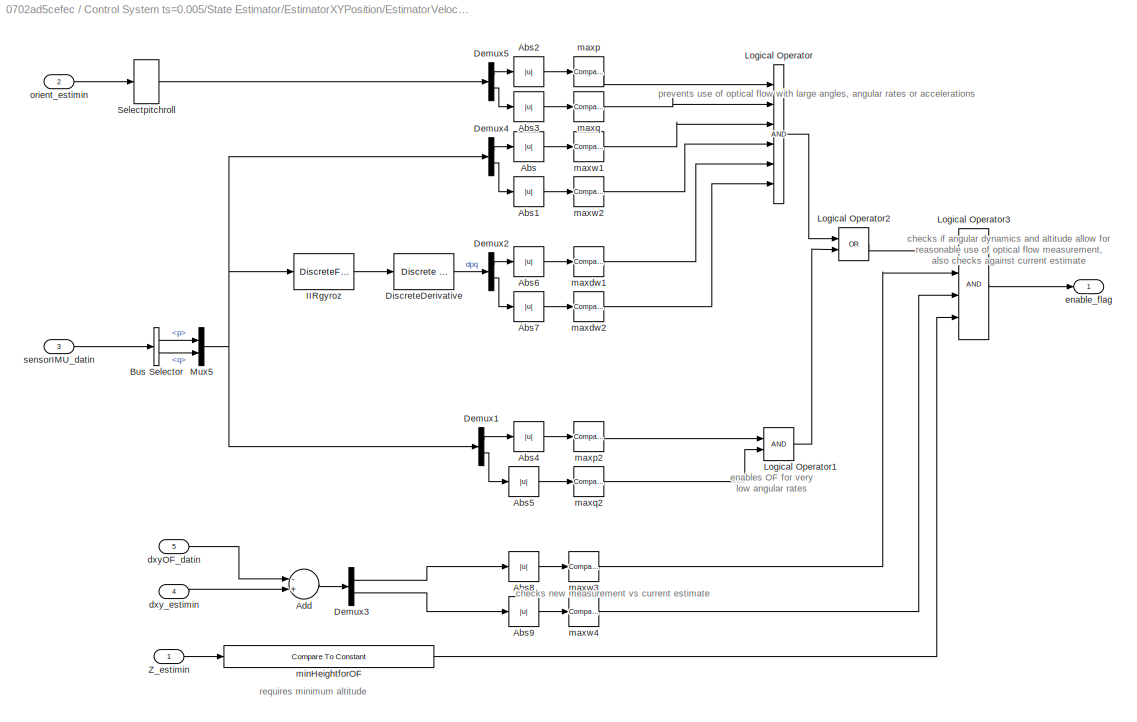
BLOCK [SubSystem] Control System ts=0.005/State Estimator/EstimatorXYPosition/EstimatorVelocity/DataHandling
  Ports = [5, 1]
  RequestExecContextInheritance = off
BLOCK [Abs] Control System ts=0.005/State Estimator/EstimatorXYPosition/EstimatorVelocity/DataHandling/Abs
  SaturateOnIntegerOverflow = off
BLOCK [Abs] Control System ts=0.005/State Estimator/EstimatorXYPosition/EstimatorVelocity/DataHandling/Abs1
  SaturateOnIntegerOverflow = off
BLOCK [Abs] Control System ts=0.005/State Estimator/EstimatorXYPosition/EstimatorVelocity/DataHandling/Abs2
  SaturateOnIntegerOverflow = off
BLOCK [Abs] Control System ts=0.005/State Estimator/EstimatorXYPosition/EstimatorVelocity/DataHandling/Abs3
  SaturateOnIntegerOverflow = off
BLOCK [Abs] Control System ts=0.005/State Estimator/EstimatorXYPosition/EstimatorVelocity/DataHandling/Abs4
  SaturateOnIntegerOverflow = off
BLOCK [Abs] Control System ts=0.005/State Estimator/EstimatorXYPosition/EstimatorVelocity/DataHandling/Abs5
  SaturateOnIntegerOverflow = off
BLOCK [Abs] Control System ts=0.005/State Estimator/EstimatorXYPosition/EstimatorVelocity/DataHandling/Abs6
  SaturateOnIntegerOverflow = off
BLOCK [Abs] Control System ts=0.005/State Estimator/EstimatorXYPosition/EstimatorVelocity/DataHandling/Abs7
  SaturateOnIntegerOverflow = off
BLOCK [Abs] Control System ts=0.005/State Estimator/EstimatorXYPosition/EstimatorVelocity/DataHandling/Abs8
  SaturateOnIntegerOverflow = off
BLOCK [Abs] Control System ts=0.005/State Estimator/EstimatorXYPosition/EstimatorVelocity/DataHandling/Abs9
  SaturateOnIntegerOverflow = off
BLOCK [Sum] Control System ts=0.005/State Estimator/EstimatorXYPosition/EstimatorVelocity/DataHandling/Add
  InputSameDT = off
  Inputs = -+
  OutDataTypeStr = Inherit: Inherit via internal rule
  Ports = [2, 1]
  SaturateOnIntegerOverflow = off
BLOCK [BusSelector] Control System ts=0.005/State Estimator/EstimatorXYPosition/EstimatorVelocity/DataHandling/Bus Selector
  OutputAsBus = off
  OutputSignals = p,q
  Ports = [1, 2]
BLOCK [Demux] Control System ts=0.005/State Estimator/EstimatorXYPosition/EstimatorVelocity/DataHandling/Demux1
  DisplayOption = bar
  Outputs = 2
  Ports = [1, 2]
BLOCK [Demux] Control System ts=0.005/State Estimator/EstimatorXYPosition/EstimatorVelocity/DataHandling/Demux2
  DisplayOption = bar
  Outputs = 2
  Ports = [1, 2]
BLOCK [Demux] Control System ts=0.005/State Estimator/EstimatorXYPosition/EstimatorVelocity/DataHandling/Demux3
  DisplayOption = bar
  Outputs = 2
  Ports = [1, 2]
BLOCK [Demux] Control System ts=0.005/State Estimator/EstimatorXYPosition/EstimatorVelocity/DataHandling/Demux4
  DisplayOption = bar
  Outputs = 2
  Ports = [1, 2]
BLOCK [Demux] Control System ts=0.005/State Estimator/EstimatorXYPosition/EstimatorVelocity/DataHandling/Demux5
  DisplayOption = bar
  Outputs = 2
  Ports = [1, 2]
BLOCK [Reference] Control System ts=0.005/State Estimator/EstimatorXYPosition/EstimatorVelocity/DataHandling/DiscreteDerivative  REF=simulink/Discrete/Discrete Derivative
  Ports = [1, 1]
  SourceBlock = simulink/Discrete/Discrete Derivative
  SourceProductBaseCode = SL
  SourceProductName = Simulink
  SourceType = Discrete Derivative
BLOCK [DiscreteFilter] Control System ts=0.005/State Estimator/EstimatorXYPosition/EstimatorVelocity/DataHandling/IIRgyroz
  Denominator = Estimator.IMU.filterGyroDen
  InputPortMap = u0
  Numerator = Estimator.IMU.filterGyroNum
  Ports = [1, 1]
BLOCK [Logic] Control System ts=0.005/State Estimator/EstimatorXYPosition/EstimatorVelocity/DataHandling/Logical Operator
  AllPortsSameDT = off
  Inputs = 6
  OutDataTypeStr = boolean
  Ports = [6, 1]
BLOCK [Logic] Control System ts=0.005/State Estimator/EstimatorXYPosition/EstimatorVelocity/DataHandling/Logical Operator1
  AllPortsSameDT = off
  OutDataTypeStr = boolean
  Ports = [2, 1]
BLOCK [Logic] Control System ts=0.005/State Estimator/EstimatorXYPosition/EstimatorVelocity/DataHandling/Logical Operator2
  AllPortsSameDT = off
  Operator = OR
  OutDataTypeStr = boolean
  Ports = [2, 1]
BLOCK [Logic] Control System ts=0.005/State Estimator/EstimatorXYPosition/EstimatorVelocity/DataHandling/Logical Operator3
  AllPortsSameDT = off
  Inputs = 4
  OutDataTypeStr = boolean
  Ports = [4, 1]
BLOCK [Mux] Control System ts=0.005/State Estimator/EstimatorXYPosition/EstimatorVelocity/DataHandling/Mux5
  DisplayOption = bar
  Inputs = 2
  Ports = [2, 1]
BLOCK [Selector] Control System ts=0.005/State Estimator/EstimatorXYPosition/EstimatorVelocity/DataHandling/Selectpitchroll
  IndexOptions = Index vector (dialog)
  Indices = [2 3]
  InputPortWidth = 3
  OutputSizes = 1
  Ports = [1, 1]
BLOCK [Inport] Control System ts=0.005/State Estimator/EstimatorXYPosition/EstimatorVelocity/DataHandling/Z_estimin
  IconDisplay = Port number
BLOCK [Inport] Control System ts=0.005/State Estimator/EstimatorXYPosition/EstimatorVelocity/DataHandling/dxyOF_datin
  IconDisplay = Port number
  Port = 5
BLOCK [Inport] Control System ts=0.005/State Estimator/EstimatorXYPosition/EstimatorVelocity/DataHandling/dxy_estimin
  IconDisplay = Port number
  Port = 4
BLOCK [Outport] Control System ts=0.005/State Estimator/EstimatorXYPosition/EstimatorVelocity/DataHandling/enable_flag
  IconDisplay = Port number
  VectorParamsAs1DForOutWhenUnconnected = off
BLOCK [Reference] Control System ts=0.005/State Estimator/EstimatorXYPosition/EstimatorVelocity/DataHandling/maxdw1  REF=simulink/Logic and Bit
Operations/Compare
To Constant
  Ports = [1, 1]
  SourceBlock = simulink/Logic and Bit\nOperations/Compare\nTo Constant
  SourceProductBaseCode = SL
  SourceProductName = Simulink
  SourceType = Compare To Constant
BLOCK [Reference] Control System ts=0.005/State Estimator/EstimatorXYPosition/EstimatorVelocity/DataHandling/maxdw2  REF=simulink/Logic and Bit
Operations/Compare
To Constant
  Ports = [1, 1]
  SourceBlock = simulink/Logic and Bit\nOperations/Compare\nTo Constant
  SourceProductBaseCode = SL
  SourceProductName = Simulink
  SourceType = Compare To Constant
BLOCK [Reference] Control System ts=0.005/State Estimator/EstimatorXYPosition/EstimatorVelocity/DataHandling/maxp  REF=simulink/Logic and Bit
Operations/Compare
To Constant
  Ports = [1, 1]
  SourceBlock = simulink/Logic and Bit\nOperations/Compare\nTo Constant
  SourceProductBaseCode = SL
  SourceProductName = Simulink
  SourceType = Compare To Constant
BLOCK [Reference] Control System ts=0.005/State Estimator/EstimatorXYPosition/EstimatorVelocity/DataHandling/maxp2  REF=simulink/Logic and Bit
Operations/Compare
To Constant
  Ports = [1, 1]
  SourceBlock = simulink/Logic and Bit\nOperations/Compare\nTo Constant
  SourceProductBaseCode = SL
  SourceProductName = Simulink
  SourceType = Compare To Constant
BLOCK [Reference] Control System ts=0.005/State Estimator/EstimatorXYPosition/EstimatorVelocity/DataHandling/maxq  REF=simulink/Logic and Bit
Operations/Compare
To Constant
  Ports = [1, 1]
  SourceBlock = simulink/Logic and Bit\nOperations/Compare\nTo Constant
  SourceProductBaseCode = SL
  SourceProductName = Simulink
  SourceType = Compare To Constant
BLOCK [Reference] Control System ts=0.005/State Estimator/EstimatorXYPosition/EstimatorVelocity/DataHandling/maxq2  REF=simulink/Logic and Bit
Operations/Compare
To Constant
  Ports = [1, 1]
  SourceBlock = simulink/Logic and Bit\nOperations/Compare\nTo Constant
  SourceProductBaseCode = SL
  SourceProductName = Simulink
  SourceType = Compare To Constant
BLOCK [Reference] Control System ts=0.005/State Estimator/EstimatorXYPosition/EstimatorVelocity/DataHandling/maxw1  REF=simulink/Logic and Bit
Operations/Compare
To Constant
  Ports = [1, 1]
  SourceBlock = simulink/Logic and Bit\nOperations/Compare\nTo Constant
  SourceProductBaseCode = SL
  SourceProductName = Simulink
  SourceType = Compare To Constant
BLOCK [Reference] Control System ts=0.005/State Estimator/EstimatorXYPosition/EstimatorVelocity/DataHandling/maxw2  REF=simulink/Logic and Bit
Operations/Compare
To Constant
  Ports = [1, 1]
  SourceBlock = simulink/Logic and Bit\nOperations/Compare\nTo Constant
  SourceProductBaseCode = SL
  SourceProductName = Simulink
  SourceType = Compare To Constant
BLOCK [Reference] Control System ts=0.005/State Estimator/EstimatorXYPosition/EstimatorVelocity/DataHandling/maxw3  REF=simulink/Logic and Bit
Operations/Compare
To Constant
  Ports = [1, 1]
  SourceBlock = simulink/Logic and Bit\nOperations/Compare\nTo Constant
  SourceProductBaseCode = SL
  SourceProductName = Simulink
  SourceType = Compare To Constant
BLOCK [Reference] Control System ts=0.005/State Estimator/EstimatorXYPosition/EstimatorVelocity/DataHandling/maxw4  REF=simulink/Logic and Bit
Operations/Compare
To Constant
  Ports = [1, 1]
  SourceBlock = simulink/Logic and Bit\nOperations/Compare\nTo Constant
  SourceProductBaseCode = SL
  SourceProductName = Simulink
  SourceType = Compare To Constant
BLOCK [Reference] Control System ts=0.005/State Estimator/EstimatorXYPosition/EstimatorVelocity/DataHandling/minHeightforOF  REF=simulink/Logic and Bit
Operations/Compare
To Constant
  Ports = [1, 1]
  SourceBlock = simulink/Logic and Bit\nOperations/Compare\nTo Constant
  SourceProductBaseCode = SL
  SourceProductName = Simulink
  SourceType = Compare To Constant
BLOCK [Inport] Control System ts=0.005/State Estimator/EstimatorXYPosition/EstimatorVelocity/DataHandling/orient_estimin
  IconDisplay = Port number
  Port = 2
BLOCK [Inport] Control System ts=0.005/State Estimator/EstimatorXYPosition/EstimatorVelocity/DataHandling/sensorIMU_datin
  IconDisplay = Port number
  Port = 3
BLOCK [Delay] Control System ts=0.005/State Estimator/EstimatorXYPosition/EstimatorVelocity/Delay
  DelayLength = 1
  InitialCondition = 0
  InputPortMap = u0
  Ports = [1, 1]
BLOCK [Gain] Control System ts=0.005/State Estimator/EstimatorXYPosition/EstimatorVelocity/Gain
  Gain = -1
  OutDataTypeStr = Inherit: Inherit via internal rule
  ParamDataTypeStr = Inherit: Inherit via internal rule
  SaturateOnIntegerOverflow = off
BLOCK [Reference] Control System ts=0.005/State Estimator/EstimatorXYPosition/EstimatorVelocity/KalmanFilter_dxdy  REF=ctrlSharedLib/Kalman Filter
  Ports = [3, 1]
  SourceBlock = ctrlSharedLib/Kalman Filter
  SourceProductBaseCode = CT
  SourceProductName = Control System Toolbox
  SourceType = ctrlKalmanFilter
BLOCK [Selector] Control System ts=0.005/State Estimator/EstimatorXYPosition/EstimatorVelocity/Select dxy
  IndexOptions = Index vector (dialog)
  Indices = [1 2]
  InputPortWidth = 3
  OutputSizes = 1
  Ports = [1, 1]
BLOCK [Switch] Control System ts=0.005/State Estimator/EstimatorXYPosition/EstimatorVelocity/Switch
  Criteria = u2 > Threshold
  InputSameDT = off
  SaturateOnIntegerOverflow = off
BLOCK [Inport] Control System ts=0.005/State Estimator/EstimatorXYPosition/EstimatorVelocity/Z_estimin
  IconDisplay = Port number
  Port = 2
  SampleTime = Ts
BLOCK [InportShadow] Control System ts=0.005/State Estimator/EstimatorXYPosition/EstimatorVelocity/Z_estimin1
  IconDisplay = Port number
  Port = 2
  SampleTime = Ts
BLOCK [Outport] Control System ts=0.005/State Estimator/EstimatorXYPosition/EstimatorVelocity/dxy_estimout
  IconDisplay = Port number
  VectorParamsAs1DForOutWhenUnconnected = off
BLOCK [Gain] Control System ts=0.005/State Estimator/EstimatorXYPosition/EstimatorVelocity/opticalFlowErrorCorrect
  Gain = 1.15
  OutDataTypeStr = Inherit: Inherit via internal rule
  ParamDataTypeStr = Inherit: Inherit via internal rule
  SaturateOnIntegerOverflow = off
BLOCK [Inport] Control System ts=0.005/State Estimator/EstimatorXYPosition/EstimatorVelocity/opticalFlow_datin
  IconDisplay = Port number
BLOCK [Inport] Control System ts=0.005/State Estimator/EstimatorXYPosition/EstimatorVelocity/orient_estimin
  IconDisplay = Port number
  Port = 4
BLOCK [Inport] Control System ts=0.005/State Estimator/EstimatorXYPosition/EstimatorVelocity/sensorIMU_datin
  IconDisplay = Port number
  Port = 3
BLOCK [SubSystem] Control System ts=0.005/State Estimator/EstimatorXYPosition/EstimatorXYPosition
  Ports = [4, 1]
  RequestExecContextInheritance = off
BLOCK [Math] Control System ts=0.005/State Estimator/EstimatorXYPosition/EstimatorXYPosition/Math Function
  Operator = transpose
  Ports = [1, 1]
BLOCK [Mux] Control System ts=0.005/State Estimator/EstimatorXYPosition/EstimatorXYPosition/Mux2
  DisplayOption = bar
  Inputs = 2
  Ports = [2, 1]
BLOCK [Product] Control System ts=0.005/State Estimator/EstimatorXYPosition/EstimatorXYPosition/Product
  InputSameDT = off
  Multiplication = Matrix(*)
  OutDataTypeStr = Inherit: Inherit via internal rule
  Ports = [2, 1]
  RndMeth = Floor
  SaturateOnIntegerOverflow = off
BLOCK [Reference] Control System ts=0.005/State Estimator/EstimatorXYPosition/EstimatorXYPosition/Rotation Angles to Direction Cosine Matrix  REF=sharedtransform/Rotation Angles to
Direction Cosine Matrix
  AttributesFormatString = Rotation Order: %<rotationOrder>
  Ports = [1, 1]
  SourceBlock = sharedtransform/Rotation Angles to\nDirection Cosine Matrix
  SourceProductBaseCode = AE
  SourceProductName = Aerospace Blockset
  SourceType = Ang2DCM
BLOCK [Selector] Control System ts=0.005/State Estimator/EstimatorXYPosition/EstimatorXYPosition/SelectdXY
  IndexOptions = Index vector (dialog)
  Indices = [1 2]
  InputPortWidth = 3
  OutputSizes = 1
  Ports = [1, 1]
BLOCK [DiscreteIntegrator] Control System ts=0.005/State Estimator/EstimatorXYPosition/EstimatorXYPosition/SimplyIntegrateVelocity
  ExternalReset = rising
  ICPrevOutput = DiscIntNeverNeededParam
  ICPrevScaledInput = DiscIntNeverNeededParam
  InitialConditionSetting = Auto
  Ports = [2, 1]
  SampleTime = Ts
BLOCK [Outport] Control System ts=0.005/State Estimator/EstimatorXYPosition/EstimatorXYPosition/XY_estimout
  IconDisplay = Port number
  VectorParamsAs1DForOutWhenUnconnected = off
BLOCK [Inport] Control System ts=0.005/State Estimator/EstimatorXYPosition/EstimatorXYPosition/controlModePosVSOrient_flagin
  IconDisplay = Port number
  Port = 3
BLOCK [Inport] Control System ts=0.005/State Estimator/EstimatorXYPosition/EstimatorXYPosition/dxy_estimin
  IconDisplay = Port number
BLOCK [Inport] Control System ts=0.005/State Estimator/EstimatorXYPosition/EstimatorXYPosition/dz_estimin
  IconDisplay = Port number
  Port = 4
BLOCK [Inport] Control System ts=0.005/State Estimator/EstimatorXYPosition/EstimatorXYPosition/orient_estimin
  IconDisplay = Port number
  Port = 2
  SampleTime = Ts
BLOCK [Outport] Control System ts=0.005/State Estimator/EstimatorXYPosition/XY_estimout
  IconDisplay = Port number
  VectorParamsAs1DForOutWhenUnconnected = off
BLOCK [Inport] Control System ts=0.005/State Estimator/EstimatorXYPosition/Z_estimin
  IconDisplay = Port number
  Port = 4
BLOCK [Inport] Control System ts=0.005/State Estimator/EstimatorXYPosition/controlModePosVSOrient_flagin
  IconDisplay = Port number
  Port = 2
BLOCK [Outport] Control System ts=0.005/State Estimator/EstimatorXYPosition/dxy_estimout
  IconDisplay = Port number
  Port = 2
  VectorParamsAs1DForOutWhenUnconnected = off
BLOCK [Inport] Control System ts=0.005/State Estimator/EstimatorXYPosition/dz_estimin
  IconDisplay = Port number
  Port = 5
BLOCK [Inport] Control System ts=0.005/State Estimator/EstimatorXYPosition/opticalFlow_datin
  IconDisplay = Port number
BLOCK [Inport] Control System ts=0.005/State Estimator/EstimatorXYPosition/orient_estimin
  IconDisplay = Port number
  Port = 6
BLOCK [Inport] Control System ts=0.005/State Estimator/EstimatorXYPosition/sensorIMU_datin
  IconDisplay = Port number
  Port = 3
BLOCK [Outport] Control System ts=0.005/State Estimator/Out Bus Element
  IconDisplay = Port number
  VectorParamsAs1DForOutWhenUnconnected = off
BLOCK [Outport] Control System ts=0.005/State Estimator/Out Bus Element1
  IconDisplay = Port number
  VectorParamsAs1DForOutWhenUnconnected = off
BLOCK [Outport] Control System ts=0.005/State Estimator/Out Bus Element10
  IconDisplay = Port number
  VectorParamsAs1DForOutWhenUnconnected = off
BLOCK [Outport] Control System ts=0.005/State Estimator/Out Bus Element11
  IconDisplay = Port number
  VectorParamsAs1DForOutWhenUnconnected = off
BLOCK [Outport] Control System ts=0.005/State Estimator/Out Bus Element2
  IconDisplay = Port number
  VectorParamsAs1DForOutWhenUnconnected = off
BLOCK [Outport] Control System ts=0.005/State Estimator/Out Bus Element3
  IconDisplay = Port number
  VectorParamsAs1DForOutWhenUnconnected = off
BLOCK [Outport] Control System ts=0.005/State Estimator/Out Bus Element4
  IconDisplay = Port number
  VectorParamsAs1DForOutWhenUnconnected = off
BLOCK [Outport] Control System ts=0.005/State Estimator/Out Bus Element5
  IconDisplay = Port number
  VectorParamsAs1DForOutWhenUnconnected = off
BLOCK [Outport] Control System ts=0.005/State Estimator/Out Bus Element6
  IconDisplay = Port number
  VectorParamsAs1DForOutWhenUnconnected = off
BLOCK [Outport] Control System ts=0.005/State Estimator/Out Bus Element7
  IconDisplay = Port number
  VectorParamsAs1DForOutWhenUnconnected = off
BLOCK [Outport] Control System ts=0.005/State Estimator/Out Bus Element8
  IconDisplay = Port number
  VectorParamsAs1DForOutWhenUnconnected = off
BLOCK [Outport] Control System ts=0.005/State Estimator/Out Bus Element9
  IconDisplay = Port number
  VectorParamsAs1DForOutWhenUnconnected = off
BLOCK [SubSystem] Control System ts=0.005/State Estimator/SensorPreprocessing
  Ports = [2, 3]
  RequestExecContextInheritance = off
BLOCK [Bias] Control System ts=0.005/State Estimator/SensorPreprocessing/Assuming that calib was done level!
  Bias = [0 0 +g 0 0 0]
  SaturateOnIntegerOverflow = off
BLOCK [BusCreator] Control System ts=0.005/State Estimator/SensorPreprocessing/Bus Creator3
  DisplayOption = bar
  InheritFromInputs = on
  Inputs = 6
  Ports = [6, 1]
BLOCK [BusSelector] Control System ts=0.005/State Estimator/SensorPreprocessing/Bus Selector
  OutputAsBus = off
  OutputSignals = ddx,ddy,ddz,p,q,r
  Ports = [1, 6]
BLOCK [BusSelector] Control System ts=0.005/State Estimator/SensorPreprocessing/Bus Selector1
  OutputAsBus = off
  OutputSignals = altitude_sonar,prs
  Ports = [1, 2]
BLOCK [BusSelector] Control System ts=0.005/State Estimator/SensorPreprocessing/Bus Selector2
  OutputAsBus = off
  OutputSignals = HAL_acc_SI,HAL_gyro_SI,HAL_ultrasound_SI,HAL_pressure_SI,HAL_vbat_SI
  Ports = [1, 5]
BLOCK [BusSelector] Control System ts=0.005/State Estimator/SensorPreprocessing/Bus Selector3
  OutputAsBus = off
  OutputSignals = HALSensors
  Ports = [1, 1]
BLOCK [DataTypeConversion] Control System ts=0.005/State Estimator/SensorPreprocessing/Data Type Conversion
  RndMeth = Floor
  SaturateOnIntegerOverflow = off
BLOCK [Demux] Control System ts=0.005/State Estimator/SensorPreprocessing/Demux1
  DisplayOption = bar
  Outputs = 3
  Ports = [1, 3]
BLOCK [Demux] Control System ts=0.005/State Estimator/SensorPreprocessing/Demux2
  DisplayOption = bar
  Outputs = 3
  Ports = [1, 3]
BLOCK [DiscreteFir] Control System ts=0.005/State Estimator/SensorPreprocessing/FIR_IMUaccel
  Coefficients = Estimator.IMU.filterAccel.Coefficients
  InputPortMap = u0
  OutputPortMap = o0
  Ports = [1, 1]
BLOCK [DiscreteFilter] Control System ts=0.005/State Estimator/SensorPreprocessing/IIR_IMUgyro_r
  Denominator = Estimator.IMU.filterGyroDen
  InputPortMap = u0
  Numerator = Estimator.IMU.filterGyroNum
  Ports = [1, 1]
BLOCK [Mux] Control System ts=0.005/State Estimator/SensorPreprocessing/Mux1
  DisplayOption = bar
  Inputs = 6
  Ports = [6, 1]
BLOCK [Selector] Control System ts=0.005/State Estimator/SensorPreprocessing/Select Accel
  IndexOptions = Index vector (dialog)
  Indices = [1 2 3]
  InputPortWidth = 6
  OutputSizes = 1
  Ports = [1, 1]
BLOCK [Selector] Control System ts=0.005/State Estimator/SensorPreprocessing/Select pqr
  IndexOptions = Index vector (dialog)
  Indices = [4 5 6]
  InputPortWidth = 6
  OutputSizes = 1
  Ports = [1, 1]
BLOCK [Selector] Control System ts=0.005/State Estimator/SensorPreprocessing/Selector2
  IndexOptions = Index vector (dialog)
  Indices = [1:6]
  InputPortWidth = 8
  OutputSizes = 1
  Ports = [1, 1]
BLOCK [Selector] Control System ts=0.005/State Estimator/SensorPreprocessing/Selector4
  IndexOptions = Index vector (dialog)
  Indices = [7]
  InputPortWidth = 8
  OutputSizes = 1
  Ports = [1, 1]
BLOCK [Sum] Control System ts=0.005/State Estimator/SensorPreprocessing/Sum1
  IconShape = round
  InputSameDT = off
  Inputs = |+-
  OutDataTypeStr = Inherit: Inherit via internal rule
  Ports = [2, 1]
  SaturateOnIntegerOverflow = off
BLOCK [Sum] Control System ts=0.005/State Estimator/SensorPreprocessing/Sum2
  IconShape = round
  InputSameDT = off
  Inputs = -+|
  OutDataTypeStr = Inherit: Inherit via internal rule
  Ports = [2, 1]
  SaturateOnIntegerOverflow = off
BLOCK [Outport] Control System ts=0.005/State Estimator/SensorPreprocessing/altSonar_datout
  IconDisplay = Port number
  Port = 2
  VectorParamsAs1DForOutWhenUnconnected = off
BLOCK [Gain] Control System ts=0.005/State Estimator/SensorPreprocessing/inverseIMU_gain
  Gain = Estimator.inverseIMUGain
  OutDataTypeStr = single
  ParamDataTypeStr = single
  SaturateOnIntegerOverflow = off
BLOCK [Outport] Control System ts=0.005/State Estimator/SensorPreprocessing/prsDelta_datout
  IconDisplay = Port number
  Port = 3
  VectorParamsAs1DForOutWhenUnconnected = off
BLOCK [Inport] Control System ts=0.005/State Estimator/SensorPreprocessing/sensorCalibration_datin
  IconDisplay = Port number
  Port = 2
BLOCK [Outport] Control System ts=0.005/State Estimator/SensorPreprocessing/sensorIMU_datout
  IconDisplay = Port number
  VectorParamsAs1DForOutWhenUnconnected = off
BLOCK [Inport] Control System ts=0.005/State Estimator/SensorPreprocessing/sensordata_datin
  IconDisplay = Port number
BLOCK [SubSystem] Control System ts=0.005/State Estimator/SensorPreprocessing/sensordata_group
  Ports = [5, 1]
  RequestExecContextInheritance = off
BLOCK [BusSelector] Control System ts=0.005/State Estimator/SensorPreprocessing/sensordata_group/Bus Selector1
  OutputAsBus = off
  OutputSignals = vbat_V,vbat_percentage
  Ports = [1, 2]
BLOCK [BusSelector] Control System ts=0.005/State Estimator/SensorPreprocessing/sensordata_group/Bus Selector3
  OutputAsBus = off
  OutputSignals = x,y,z
  Ports = [1, 3]
BLOCK [BusSelector] Control System ts=0.005/State Estimator/SensorPreprocessing/sensordata_group/Bus Selector4
  OutputAsBus = off
  OutputSignals = x,y,z
  Ports = [1, 3]
BLOCK [BusSelector] Control System ts=0.005/State Estimator/SensorPreprocessing/sensordata_group/Bus Selector5
  OutputAsBus = off
  OutputSignals = altitude
  Ports = [1, 1]
BLOCK [BusSelector] Control System ts=0.005/State Estimator/SensorPreprocessing/sensordata_group/Bus Selector6
  OutputAsBus = off
  OutputSignals = pressure
  Ports = [1, 1]
BLOCK [Inport] Control System ts=0.005/State Estimator/SensorPreprocessing/sensordata_group/HAL_acc_SI
  IconDisplay = Port number
  OutDataTypeStr = Bus: HAL_acc_SI_t
BLOCK [Inport] Control System ts=0.005/State Estimator/SensorPreprocessing/sensordata_group/HAL_gyro_SI
  IconDisplay = Port number
  OutDataTypeStr = Bus: HAL_gyro_SI_t
  Port = 2
BLOCK [Inport] Control System ts=0.005/State Estimator/SensorPreprocessing/sensordata_group/HAL_pressure_SI
  IconDisplay = Port number
  OutDataTypeStr = Bus: HAL_pressure_SI_t
  Port = 4
BLOCK [Inport] Control System ts=0.005/State Estimator/SensorPreprocessing/sensordata_group/HAL_ultrasound_SI
  IconDisplay = Port number
  OutDataTypeStr = Bus: HAL_ultrasound_SI_t
  Port = 3
BLOCK [Inport] Control System ts=0.005/State Estimator/SensorPreprocessing/sensordata_group/HAL_vbat_SI
  IconDisplay = Port number
  OutDataTypeStr = Bus: HAL_vbat_SI_t
  Port = 5
BLOCK [Outport] Control System ts=0.005/State Estimator/SensorPreprocessing/sensordata_group/Out Bus Element
  IconDisplay = Port number
  VectorParamsAs1DForOutWhenUnconnected = off
BLOCK [Outport] Control System ts=0.005/State Estimator/SensorPreprocessing/sensordata_group/Out Bus Element1
  IconDisplay = Port number
  VectorParamsAs1DForOutWhenUnconnected = off
BLOCK [Outport] Control System ts=0.005/State Estimator/SensorPreprocessing/sensordata_group/Out Bus Element2
  IconDisplay = Port number
  VectorParamsAs1DForOutWhenUnconnected = off
BLOCK [Outport] Control System ts=0.005/State Estimator/SensorPreprocessing/sensordata_group/Out Bus Element3
  IconDisplay = Port number
  VectorParamsAs1DForOutWhenUnconnected = off
BLOCK [Outport] Control System ts=0.005/State Estimator/SensorPreprocessing/sensordata_group/Out Bus Element4
  IconDisplay = Port number
  VectorParamsAs1DForOutWhenUnconnected = off
BLOCK [Outport] Control System ts=0.005/State Estimator/SensorPreprocessing/sensordata_group/Out Bus Element5
  IconDisplay = Port number
  VectorParamsAs1DForOutWhenUnconnected = off
BLOCK [Outport] Control System ts=0.005/State Estimator/SensorPreprocessing/sensordata_group/Out Bus Element6
  IconDisplay = Port number
  VectorParamsAs1DForOutWhenUnconnected = off
BLOCK [Outport] Control System ts=0.005/State Estimator/SensorPreprocessing/sensordata_group/Out Bus Element7
  IconDisplay = Port number
  VectorParamsAs1DForOutWhenUnconnected = off
BLOCK [Outport] Control System ts=0.005/State Estimator/SensorPreprocessing/sensordata_group/Out Bus Element8
  IconDisplay = Port number
  VectorParamsAs1DForOutWhenUnconnected = off
BLOCK [Outport] Control System ts=0.005/State Estimator/SensorPreprocessing/sensordata_group/Out Bus Element9
  IconDisplay = Port number
  VectorParamsAs1DForOutWhenUnconnected = off
BLOCK [Terminator] Control System ts=0.005/State Estimator/Terminator
BLOCK [Terminator] Control System ts=0.005/State Estimator/Terminator1
BLOCK [Inport] Control System ts=0.005/State Estimator/controlModePosVSOrient_flagin
  IconDisplay = Port number
  OutDataTypeStr = boolean
BLOCK [Inport] Control System ts=0.005/State Estimator/opticalFlow_datin
  IconDisplay = Port number
  Port = 3
BLOCK [Inport] Control System ts=0.005/State Estimator/sensorCalibration_datin
  IconDisplay = Port number
  Port = 4
BLOCK [Inport] Control System ts=0.005/State Estimator/sensor_data_in
  IconDisplay = Port number
  Port = 2
BLOCK [ToWorkspace] Control System ts=0.005/To Workspace
  FixptAsFi = on
  MaxDataPoints = inf
  Ports = [1]
  SampleTime = -1
  SaveFormat = Structure With Time
  VariableName = estimatedStates
BLOCK [Inport] Control System ts=0.005/Vision-based Data
  IconDisplay = Port number
  Port = 3
BLOCK [Constant] Control System ts=0.005/controlModePosVsOrient
  OutDataTypeStr = boolean
  Value = 0
BLOCK [Outport] Control System ts=0.005/motorCmds
  IconDisplay = Port number
  VectorParamsAs1DForOutWhenUnconnected = off
BLOCK [Outport] Flag
  IconDisplay = Port number
  OutDataTypeStr = uint8
  Port = 2
  PortDimensions = 1
  VectorParamsAs1DForOutWhenUnconnected = off
BLOCK [Inport] Image Data
  BusOutputAsStruct = on
  IconDisplay = Port number
  InitFcn = codertarget.parrot.internal.inportCallback(gcb);
  OutDataTypeStr = uint8
  Port = 3
  PortDimensions = [4 9600]
  Tag = IP_IN
BLOCK [SubSystem] Image Processing System ts=0.2
  InitFcn = codertarget.parrot.internal.ipSubsystemCallback(gcb);
  Ports = [1, 1]
  RTWFcnName = ImageFunction
  RTWFcnNameOpts = User specified
  RTWSystemCode = Inline
  RequestExecContextInheritance = off
  SystemSampleTime = 40*Ts
  Tag = IP_SUB
  TreatAsAtomicUnit = on
  TreatAsGroupedWhenPropagatingVariantConditions = off
BLOCK [SubSystem] Image Processing System ts=0.2/ bearing ref
  ErrorFcn = Stateflow.Translate.translate
  PermitHierarchicalResolution = ExplicitOnly
  Ports = [1, 2]
  RequestExecContextInheritance = off
  SFBlockType = MATLAB Function
  TreatAsAtomicUnit = on
BLOCK [Demux] Image Processing System ts=0.2/ bearing ref/ Demux 
  Outputs = 1
  Ports = [1, 1]
BLOCK [S-Function] Image Processing System ts=0.2/ bearing ref/ SFunction 
  EnableBusSupport = on
  FunctionName = sf_sfun
  PortCounts = [1 3]
  Ports = [1, 3]
  SFcnIsStateOwnerBlock = off
  SFunctionDeploymentMode = off
  Tag = Stateflow S-Function 2
BLOCK [Terminator] Image Processing System ts=0.2/ bearing ref/ Terminator 
BLOCK [Outport] Image Processing System ts=0.2/ bearing ref/beta_out
  IconDisplay = Port number
BLOCK [Inport] Image Processing System ts=0.2/ bearing ref/in
  IconDisplay = Port number
BLOCK [Outport] Image Processing System ts=0.2/ bearing ref/roll_ref
  IconDisplay = Port number
  Port = 2
BLOCK [SubSystem] Image Processing System ts=0.2/ colour ident
  ErrorFcn = Stateflow.Translate.translate
  PermitHierarchicalResolution = ExplicitOnly
  Ports = [3, 1]
  RequestExecContextInheritance = off
  SFBlockType = MATLAB Function
  TreatAsAtomicUnit = on
BLOCK [Demux] Image Processing System ts=0.2/ colour ident/ Demux 
  Outputs = 1
  Ports = [1, 1]
BLOCK [S-Function] Image Processing System ts=0.2/ colour ident/ SFunction 
  EnableBusSupport = on
  FunctionName = sf_sfun
  PortCounts = [3 2]
  Ports = [3, 2]
  SFcnIsStateOwnerBlock = off
  SFunctionDeploymentMode = off
  Tag = Stateflow S-Function 1
BLOCK [Terminator] Image Processing System ts=0.2/ colour ident/ Terminator 
BLOCK [Inport] Image Processing System ts=0.2/ colour ident/B
  IconDisplay = Port number
  Port = 3
BLOCK [Outport] Image Processing System ts=0.2/ colour ident/BW
  IconDisplay = Port number
BLOCK [Inport] Image Processing System ts=0.2/ colour ident/G
  IconDisplay = Port number
  Port = 2
BLOCK [Inport] Image Processing System ts=0.2/ colour ident/R
  IconDisplay = Port number
BLOCK [DataTypeConversion] Image Processing System ts=0.2/Data Type Conversion
  OutDataTypeStr = double
  RndMeth = Floor
  SaturateOnIntegerOverflow = off
BLOCK [DataTypeConversion] Image Processing System ts=0.2/Data Type Conversion1
  OutDataTypeStr = double
  RndMeth = Floor
  SaturateOnIntegerOverflow = off
BLOCK [DataTypeConversion] Image Processing System ts=0.2/Data Type Conversion2
  OutDataTypeStr = double
  RndMeth = Floor
  SaturateOnIntegerOverflow = off
BLOCK [DataTypeConversion] Image Processing System ts=0.2/Data Type Conversion3
  OutDataTypeStr = double
  RndMeth = Floor
  SaturateOnIntegerOverflow = off
BLOCK [Inport] Image Processing System ts=0.2/Image Data
  IconDisplay = Port number
BLOCK [Mux] Image Processing System ts=0.2/Mux
  DisplayOption = bar
  Inputs = 3
  Ports = [3, 1]
BLOCK [Reference] Image Processing System ts=0.2/PARROT Image Conversion  REF=parrotlib/PARROT Image Conversion
  Ports = [1, 3]
  SourceBlock = parrotlib/PARROT Image Conversion
  SourceProductBaseCode = MINIDRONES
  SourceProductName = Simulink Support Package for Parrot Minidrones
  SourceType = parrot.ImageProcess
BLOCK [VideoViewer] Image Processing System ts=0.2/RGB Image
  FigPos = [474 535 418 304]
  Ports = [3]
  ScopeSpecificationString = vipscopes.VideoViewerScopeCfg('CurrentConfiguration', extmgr.ConfigurationSet(extmgr.Configuration('Core','General UI',true),extmgr.Configuration('Core','Source UI',true),extmgr.Configuration('Sources','WiredSimulink',true),extmgr.Configuration('Visuals','Video',true),extmgr.Configuration('Tools','Image Navigation Tools',true),extmgr.Configuration('Tools','Image Tool',true),extmgr.Configuration('T...<+101ch>
  imagePorts = separate color signals
BLOCK [VideoViewer] Image Processing System ts=0.2/RGB Image1
  FigPos = [343 847 681 929]
  Ports = [3]
  ScopeSpecificationString = vipscopes.VideoViewerScopeCfg('CurrentConfiguration', extmgr.ConfigurationSet(extmgr.Configuration('Core','General UI',true),extmgr.Configuration('Core','Source UI',true),extmgr.Configuration('Sources','WiredSimulink',true),extmgr.Configuration('Visuals','Video',true),extmgr.Configuration('Tools','Image Navigation Tools',true),extmgr.Configuration('Tools','Image Tool',true),extmgr.Configuration('T...<+101ch>
  imagePorts = separate color signals
BLOCK [Scope] Image Processing System ts=0.2/Scope
  Floating = off
  NumInputPorts = 1
  Ports = [1]
  ScopeSpecificationString = Simulink.scopes.TimeScopeBlockCfg('CurrentConfiguration', extmgr.ConfigurationSet(extmgr.Configuration('Core','General UI',true),extmgr.Configuration('Core','Source UI',true),extmgr.Configuration('Sources','WiredSimulink',true,'DataLoggingVariableName','ScopeData2'),extmgr.Configuration('Visuals','Time Domain',true),extmgr.Configuration('Tools','Plot Navigation',true),extmgr.Configuration('Tools',...<+40ch>
BLOCK [Scope] Image Processing System ts=0.2/Scope2
  Floating = off
  NumInputPorts = 1
  Ports = [1]
  ScopeSpecificationString = Simulink.scopes.TimeScopeBlockCfg('CurrentConfiguration', extmgr.ConfigurationSet(extmgr.Configuration('Core','General UI',true),extmgr.Configuration('Core','Source UI',true),extmgr.Configuration('Sources','WiredSimulink',true,'DataLoggingVariableName','ScopeData15'),extmgr.Configuration('Visuals','Time Domain',true,'SerializedDisplays',{struct('MinYLimReal','-64.71994','MaxYLimReal','66.31811','Y...<+1464ch>
BLOCK [Scope] Image Processing System ts=0.2/Scope3
  Floating = off
  NumInputPorts = 1
  Ports = [1]
  ScopeSpecificationString = Simulink.scopes.TimeScopeBlockCfg('CurrentConfiguration', extmgr.ConfigurationSet(extmgr.Configuration('Core','General UI',true),extmgr.Configuration('Core','Source UI',true),extmgr.Configuration('Sources','WiredSimulink',true,'DataLoggingVariableName','ScopeData1'),extmgr.Configuration('Visuals','Time Domain',true,'SerializedDisplays',{struct('MinYLimReal','-0.125','MaxYLimReal','1.125','YLabelRe...<+1397ch>
BLOCK [Sum] Image Processing System ts=0.2/Sum of white pixels
  InputSameDT = off
  Inputs = +
  OutDataTypeStr = uint16
  Ports = [1, 1]
  SaturateOnIntegerOverflow = off
BLOCK [Reference] Image Processing System ts=0.2/Threshold for total white pixels  REF=simulink/Logic and Bit
Operations/Compare
To Constant
  Ports = [1, 1]
  SourceBlock = simulink/Logic and Bit\nOperations/Compare\nTo Constant
  SourceProductBaseCode = SL
  SourceProductName = Simulink
  SourceType = Compare To Constant
BLOCK [ToWorkspace] Image Processing System ts=0.2/To Workspace
  FixptAsFi = on
  MaxDataPoints = inf
  Ports = [1]
  SampleTime = -1
  SaveFormat = Timeseries
  VariableName = simout
BLOCK [ToWorkspace] Image Processing System ts=0.2/To Workspace1
  FixptAsFi = on
  MaxDataPoints = inf
  Ports = [1]
  SampleTime = -1
  SaveFormat = Timeseries
  VariableName = bearing_degs
BLOCK [Outport] Image Processing System ts=0.2/Vision-based Data
  IconDisplay = Port number
  VectorParamsAs1DForOutWhenUnconnected = off
BLOCK [Gain] Image Processing System ts=0.2/rad2deg
  Gain = 180/pi
  OutDataTypeStr = Inherit: Inherit via internal rule
  ParamDataTypeStr = Inherit: Inherit via internal rule
  SaturateOnIntegerOverflow = off
BLOCK [RateTransition] Rate Transition
  Deterministic = off
BLOCK [Inport] Sensors
  BusOutputAsStruct = on
  IconDisplay = Port number
  OutDataTypeStr = Bus: SensorsBus
  Port = 2
ANNOTATION (root): <copyright redacted>
ANNOTATION (root): Flight Control System
ANNOTATION Control System ts=0.005: Derived from the work by Sertac Karaman and Fabian Riether
ANNOTATION Control System ts=0.005: Position or Orientation Control
ANNOTATION Control System ts=0.005: Use this subsystem to change the path of the Minidrone depending on the input Vision-based Data
ANNOTATION Control System ts=0.005/Controller/Attitude: ATTITUDE
ANNOTATION Control System ts=0.005/Controller/gravity feedforward//equilibrium thrust: ALTITUDE
ANNOTATION Control System ts=0.005/Path Planning: Estimated values from the State Estimator
ANNOTATION Control System ts=0.005/Path Planning: Increment y in the steps of 0.0005
ANNOTATION Control System ts=0.005/Path Planning: Latch the value to 1 when Vision-based Data changes to 1
ANNOTATION Control System ts=0.005/State Estimator: Derived frrom the work by Sertac Karaman and Fabian Riether
ANNOTATION Control System ts=0.005/State Estimator/Complementary Filter: Derived from the work by Fabian Riether Inspired by http://www.pieter-jan.com/node/11
ANNOTATION Control System ts=0.005/State Estimator/EstimatorXYPosition/EstimatorVelocity/DataHandling: checks if angular dynamics and altitude allow for reasonable use of optical flow measurement, also checks against current estimate
ANNOTATION Control System ts=0.005/State Estimator/EstimatorXYPosition/EstimatorVelocity/DataHandling: checks new measurement vs current estimate
ANNOTATION Control System ts=0.005/State Estimator/EstimatorXYPosition/EstimatorVelocity/DataHandling: enables OF for very low angular rates
ANNOTATION Control System ts=0.005/State Estimator/EstimatorXYPosition/EstimatorVelocity/DataHandling: prevents use of optical flow with large angles, angular rates or accelerations
ANNOTATION Control System ts=0.005/State Estimator/EstimatorXYPosition/EstimatorVelocity/DataHandling: requires minimum altitude
ANNOTATION Control System ts=0.005/State Estimator/EstimatorXYPosition/EstimatorXYPosition: Switching from orientationControl to Position control reset the current world position estimate (happens when using no markers)
ANNOTATION Control System ts=0.005/State Estimator/SensorPreprocessing: IMU
ANNOTATION Image Processing System ts=0.2: Obtain the RGB image from camera
LINE AC cmd:1 -> Control System ts=0.005:1
LINE Control System ts=0.005/Bus Selector1:1 -> Control System ts=0.005/State Estimator:3
LINE Control System ts=0.005/Bus Selector4:1 -> Control System ts=0.005/Bus Selector1:1
LINE Control System ts=0.005/Bus Selector4:2 -> Control System ts=0.005/State Estimator:4
LINE Control System ts=0.005/Control Mode Update:1 -> Control System ts=0.005/Path Planning:1
LINE Control System ts=0.005/Controller/Attitude/Add:1 -> Control System ts=0.005/Controller/Attitude/Discrete-Time Integrator:1
LINE Control System ts=0.005/Controller/Attitude/Bus Selector3:1 -> Control System ts=0.005/Controller/Attitude/Mux:1
LINE Control System ts=0.005/Controller/Attitude/Bus Selector3:2 -> Control System ts=0.005/Controller/Attitude/Mux:2
LINE Control System ts=0.005/Controller/Attitude/Bus Selector4:1 -> Control System ts=0.005/Controller/Attitude/Mux1:1
LINE Control System ts=0.005/Controller/Attitude/Bus Selector4:2 -> Control System ts=0.005/Controller/Attitude/Mux1:2
LINE Control System ts=0.005/Controller/Attitude/D_pr:1 -> Control System ts=0.005/Controller/Attitude/Sum16:3
LINE Control System ts=0.005/Controller/Attitude/Delay:1 -> Control System ts=0.005/Controller/Attitude/antiWU_Gain:1
LINE Control System ts=0.005/Controller/Attitude/Demux:1 -> Control System ts=0.005/Controller/Attitude/tau_pitch:1
LINE Control System ts=0.005/Controller/Attitude/Demux:2 -> Control System ts=0.005/Controller/Attitude/tau_roll:1
NET Control System ts=0.005/Controller/Attitude/Discrete-Time Integrator:1 -> Control System ts=0.005/Controller/Attitude/Delay:1, Control System ts=0.005/Controller/Attitude/I_pr:1
LINE Control System ts=0.005/Controller/Attitude/I_pr:1 -> Control System ts=0.005/Controller/Attitude/Sum16:2
LINE Control System ts=0.005/Controller/Attitude/Mux1:1 -> Control System ts=0.005/Controller/Attitude/D_pr:1
LINE Control System ts=0.005/Controller/Attitude/Mux:1 -> Control System ts=0.005/Controller/Attitude/Sum19:2
LINE Control System ts=0.005/Controller/Attitude/P_pr:1 -> Control System ts=0.005/Controller/Attitude/Sum16:1
LINE Control System ts=0.005/Controller/Attitude/Sum16:1 -> Control System ts=0.005/Controller/Attitude/Demux:1
NET Control System ts=0.005/Controller/Attitude/Sum19:1 -> Control System ts=0.005/Controller/Attitude/Add:1, Control System ts=0.005/Controller/Attitude/P_pr:1
LINE Control System ts=0.005/Controller/Attitude/antiWU_Gain:1 -> Control System ts=0.005/Controller/Attitude/Add:2
LINE Control System ts=0.005/Controller/Attitude/refAttitude:1 -> Control System ts=0.005/Controller/Attitude/Sum19:1
NET Control System ts=0.005/Controller/Attitude/states_estim:1 -> Control System ts=0.005/Controller/Attitude/Bus Selector3:1, Control System ts=0.005/Controller/Attitude/Bus Selector4:1
LINE Control System ts=0.005/Controller/Attitude:1 -> Control System ts=0.005/Controller/ControlMixer:1
LINE Control System ts=0.005/Controller/Attitude:2 -> Control System ts=0.005/Controller/ControlMixer:2
LINE Control System ts=0.005/Controller/ControlMixer/Mux2:1 -> Control System ts=0.005/Controller/ControlMixer/Product:2
LINE Control System ts=0.005/Controller/ControlMixer/Product:1 -> Control System ts=0.005/Controller/ControlMixer/thrusts_refout:1
LINE Control System ts=0.005/Controller/ControlMixer/TorqueTotalThrustToThrustPerMotor:1 -> Control System ts=0.005/Controller/ControlMixer/Product:1
LINE Control System ts=0.005/Controller/ControlMixer/tau_pitch:1 -> Control System ts=0.005/Controller/ControlMixer/Mux2:3
LINE Control System ts=0.005/Controller/ControlMixer/tau_roll:1 -> Control System ts=0.005/Controller/ControlMixer/Mux2:4
LINE Control System ts=0.005/Controller/ControlMixer/tau_yaw:1 -> Control System ts=0.005/Controller/ControlMixer/Mux2:2
LINE Control System ts=0.005/Controller/ControlMixer/totalThrust:1 -> Control System ts=0.005/Controller/ControlMixer/Mux2:1
LINE Control System ts=0.005/Controller/ControlMixer:1 -> Control System ts=0.005/Controller/thrustsToMotorCommands:1
LINE Control System ts=0.005/Controller/In Bus Element1:1 -> Control System ts=0.005/Controller/Switch_refAtt:2
LINE Control System ts=0.005/Controller/In Bus Element2:1 -> Control System ts=0.005/Controller/Selector3:1
LINE Control System ts=0.005/Controller/In Bus Element3:1 -> Control System ts=0.005/Controller/gravity feedforward//equilibrium thrust:3
LINE Control System ts=0.005/Controller/In Bus Element5:1 -> Control System ts=0.005/Controller/Selector:1
LINE Control System ts=0.005/Controller/In Bus Element6:1 -> Control System ts=0.005/Controller/Selector2:1
LINE Control System ts=0.005/Controller/In Bus Element:1 -> Control System ts=0.005/Controller/Selector1:1
LINE Control System ts=0.005/Controller/Selector1:1 -> Control System ts=0.005/Controller/XY-to-reference-orientation:1
NET Control System ts=0.005/Controller/Selector2:1 -> Control System ts=0.005/Controller/Scope:1, Control System ts=0.005/Controller/Switch_refAtt:3
LINE Control System ts=0.005/Controller/Selector3:1 -> Control System ts=0.005/Controller/Yaw:1
LINE Control System ts=0.005/Controller/Selector:1 -> Control System ts=0.005/Controller/gravity feedforward//equilibrium thrust:2
NET Control System ts=0.005/Controller/Switch_refAtt:1 -> Control System ts=0.005/Controller/Attitude:1, Control System ts=0.005/Controller/Scope2:1
LINE Control System ts=0.005/Controller/XY-to-reference-orientation/Bus Selector1:1 -> Control System ts=0.005/Controller/XY-to-reference-orientation/Mux:1
LINE Control System ts=0.005/Controller/XY-to-reference-orientation/Bus Selector1:2 -> Control System ts=0.005/Controller/XY-to-reference-orientation/Mux:2
LINE Control System ts=0.005/Controller/XY-to-reference-orientation/Bus Selector2:1 -> Control System ts=0.005/Controller/XY-to-reference-orientation/Mux1:1
LINE Control System ts=0.005/Controller/XY-to-reference-orientation/Bus Selector2:2 -> Control System ts=0.005/Controller/XY-to-reference-orientation/Mux1:2
LINE Control System ts=0.005/Controller/XY-to-reference-orientation/D_xy:1 -> Control System ts=0.005/Controller/XY-to-reference-orientation/Sum18:2
LINE Control System ts=0.005/Controller/XY-to-reference-orientation/Gain:1 -> Control System ts=0.005/Controller/XY-to-reference-orientation/Vector Concatenate:2
LINE Control System ts=0.005/Controller/XY-to-reference-orientation/Matrix Concatenate:1 -> Control System ts=0.005/Controller/XY-to-reference-orientation/Product:1
LINE Control System ts=0.005/Controller/XY-to-reference-orientation/Mux1:1 -> Control System ts=0.005/Controller/XY-to-reference-orientation/D_xy:1
LINE Control System ts=0.005/Controller/XY-to-reference-orientation/Mux:1 -> Control System ts=0.005/Controller/XY-to-reference-orientation/Sum17:2
LINE Control System ts=0.005/Controller/XY-to-reference-orientation/P_xy:1 -> Control System ts=0.005/Controller/XY-to-reference-orientation/Sum18:1
LINE Control System ts=0.005/Controller/XY-to-reference-orientation/Product:1 -> Control System ts=0.005/Controller/XY-to-reference-orientation/Saturation:1
LINE Control System ts=0.005/Controller/XY-to-reference-orientation/Saturation:1 -> Control System ts=0.005/Controller/XY-to-reference-orientation/P_xy:1
NET Control System ts=0.005/Controller/XY-to-reference-orientation/Sum17:1 -> Control System ts=0.005/Controller/XY-to-reference-orientation/Product:2, Control System ts=0.005/Controller/XY-to-reference-orientation/Scope:1
LINE Control System ts=0.005/Controller/XY-to-reference-orientation/Sum18:1 -> Control System ts=0.005/Controller/XY-to-reference-orientation/pitch_roll_cmd:1
NET Control System ts=0.005/Controller/XY-to-reference-orientation/Trigonometric Function:1 -> Control System ts=0.005/Controller/XY-to-reference-orientation/Gain:1, Control System ts=0.005/Controller/XY-to-reference-orientation/Vector Concatenate1:1
NET Control System ts=0.005/Controller/XY-to-reference-orientation/Trigonometric Function:2 -> Control System ts=0.005/Controller/XY-to-reference-orientation/Vector Concatenate1:2, Control System ts=0.005/Controller/XY-to-reference-orientation/Vector Concatenate:1
LINE Control System ts=0.005/Controller/XY-to-reference-orientation/Vector Concatenate1:1 -> Control System ts=0.005/Controller/XY-to-reference-orientation/Matrix Concatenate:2
LINE Control System ts=0.005/Controller/XY-to-reference-orientation/Vector Concatenate:1 -> Control System ts=0.005/Controller/XY-to-reference-orientation/Matrix Concatenate:1
LINE Control System ts=0.005/Controller/XY-to-reference-orientation/posXY:1 -> Control System ts=0.005/Controller/XY-to-reference-orientation/Sum17:1
NET Control System ts=0.005/Controller/XY-to-reference-orientation/states_estim:1 -> Control System ts=0.005/Controller/XY-to-reference-orientation/Bus Selector1:1, Control System ts=0.005/Controller/XY-to-reference-orientation/Bus Selector2:1
LINE Control System ts=0.005/Controller/XY-to-reference-orientation/yaw:1 -> Control System ts=0.005/Controller/XY-to-reference-orientation/Trigonometric Function:1
NET Control System ts=0.005/Controller/XY-to-reference-orientation:1 -> Control System ts=0.005/Controller/Scope1:1, Control System ts=0.005/Controller/Switch_refAtt:1
NET Control System ts=0.005/Controller/Yaw/Bus Selector5:1 -> Control System ts=0.005/Controller/Yaw/Sum1:2, Control System ts=0.005/Controller/Yaw/yaw:1
LINE Control System ts=0.005/Controller/Yaw/Bus Selector5:2 -> Control System ts=0.005/Controller/Yaw/D_yaw:1
LINE Control System ts=0.005/Controller/Yaw/D_yaw:1 -> Control System ts=0.005/Controller/Yaw/Sum2:2
LINE Control System ts=0.005/Controller/Yaw/P_yaw:1 -> Control System ts=0.005/Controller/Yaw/Sum2:1
LINE Control System ts=0.005/Controller/Yaw/Sum1:1 -> Control System ts=0.005/Controller/Yaw/P_yaw:1
LINE Control System ts=0.005/Controller/Yaw/Sum2:1 -> Control System ts=0.005/Controller/Yaw/tau_yaw:1
LINE Control System ts=0.005/Controller/Yaw/states_estim:1 -> Control System ts=0.005/Controller/Yaw/Bus Selector5:1
LINE Control System ts=0.005/Controller/Yaw/yaw_ref:1 -> Control System ts=0.005/Controller/Yaw/Sum1:1
LINE Control System ts=0.005/Controller/Yaw:1 -> Control System ts=0.005/Controller/XY-to-reference-orientation:3
LINE Control System ts=0.005/Controller/Yaw:2 -> Control System ts=0.005/Controller/ControlMixer:3
LINE Control System ts=0.005/Controller/gravity feedforward//equilibrium thrust/Bus Selector1:1 -> Control System ts=0.005/Controller/gravity feedforward//equilibrium thrust/Sum2:2
LINE Control System ts=0.005/Controller/gravity feedforward//equilibrium thrust/Bus Selector1:2 -> Control System ts=0.005/Controller/gravity feedforward//equilibrium thrust/D_z1:1
NET Control System ts=0.005/Controller/gravity feedforward//equilibrium thrust/Compare To Constant:1 -> Control System ts=0.005/Controller/gravity feedforward//equilibrium thrust/Discrete-Time Integrator:2, Control System ts=0.005/Controller/gravity feedforward//equilibrium thrust/TakeoffOrControl_Switch1:2
LINE Control System ts=0.005/Controller/gravity feedforward//equilibrium thrust/Counter Free-Running:1 -> Control System ts=0.005/Controller/gravity feedforward//equilibrium thrust/Compare To Constant:1
LINE Control System ts=0.005/Controller/gravity feedforward//equilibrium thrust/D_z1:1 -> Control System ts=0.005/Controller/gravity feedforward//equilibrium thrust/Sum1:3
LINE Control System ts=0.005/Controller/gravity feedforward//equilibrium thrust/Discrete-Time Integrator:1 -> Control System ts=0.005/Controller/gravity feedforward//equilibrium thrust/Sum1:1
LINE Control System ts=0.005/Controller/gravity feedforward//equilibrium thrust/I_pr:1 -> Control System ts=0.005/Controller/gravity feedforward//equilibrium thrust/Discrete-Time Integrator:1
LINE Control System ts=0.005/Controller/gravity feedforward//equilibrium thrust/P_z1:1 -> Control System ts=0.005/Controller/gravity feedforward//equilibrium thrust/Sum1:2
LINE Control System ts=0.005/Controller/gravity feedforward//equilibrium thrust/PosZ:1 -> Control System ts=0.005/Controller/gravity feedforward//equilibrium thrust/Sum2:1
LINE Control System ts=0.005/Controller/gravity feedforward//equilibrium thrust/SaturationThrust1:1 -> Control System ts=0.005/Controller/gravity feedforward//equilibrium thrust/altitude_cmd:1
LINE Control System ts=0.005/Controller/gravity feedforward//equilibrium thrust/Sum1:1 -> Control System ts=0.005/Controller/gravity feedforward//equilibrium thrust/TakeoffOrControl_Switch1:3
NET Control System ts=0.005/Controller/gravity feedforward//equilibrium thrust/Sum2:1 -> Control System ts=0.005/Controller/gravity feedforward//equilibrium thrust/I_pr:1, Control System ts=0.005/Controller/gravity feedforward//equilibrium thrust/P_z1:1
LINE Control System ts=0.005/Controller/gravity feedforward//equilibrium thrust/Sum5:1 -> Control System ts=0.005/Controller/gravity feedforward//equilibrium thrust/SaturationThrust1:1
LINE Control System ts=0.005/Controller/gravity feedforward//equilibrium thrust/TakeoffOrControl_Switch1:1 -> Control System ts=0.005/Controller/gravity feedforward//equilibrium thrust/Sum5:2
LINE Control System ts=0.005/Controller/gravity feedforward//equilibrium thrust/states_estim:1 -> Control System ts=0.005/Controller/gravity feedforward//equilibrium thrust/Bus Selector1:1
LINE Control System ts=0.005/Controller/gravity feedforward//equilibrium thrust/takeoff_flag:1 -> Control System ts=0.005/Controller/gravity feedforward//equilibrium thrust/Terminator:1
LINE Control System ts=0.005/Controller/gravity feedforward//equilibrium thrust/takeoff_gain1:1 -> Control System ts=0.005/Controller/gravity feedforward//equilibrium thrust/TakeoffOrControl_Switch1:1
NET Control System ts=0.005/Controller/gravity feedforward//equilibrium thrust/w1:1 -> Control System ts=0.005/Controller/gravity feedforward//equilibrium thrust/Sum5:1, Control System ts=0.005/Controller/gravity feedforward//equilibrium thrust/takeoff_gain1:1
LINE Control System ts=0.005/Controller/gravity feedforward//equilibrium thrust:1 -> Control System ts=0.005/Controller/ControlMixer:4
LINE Control System ts=0.005/Controller/states_estim1:1 -> Control System ts=0.005/Controller/gravity feedforward//equilibrium thrust:1
LINE Control System ts=0.005/Controller/states_estim2:1 -> Control System ts=0.005/Controller/Attitude:2
LINE Control System ts=0.005/Controller/states_estim3:1 -> Control System ts=0.005/Controller/XY-to-reference-orientation:2
LINE Control System ts=0.005/Controller/states_estim:1 -> Control System ts=0.005/Controller/Yaw:2
LINE Control System ts=0.005/Controller/thrustsToMotorCommands/MotorDirections:1 -> Control System ts=0.005/Controller/thrustsToMotorCommands/motors_cmdout:1
LINE Control System ts=0.005/Controller/thrustsToMotorCommands/Saturation5:1 -> Control System ts=0.005/Controller/thrustsToMotorCommands/MotorDirections:1
LINE Control System ts=0.005/Controller/thrustsToMotorCommands/ThrustToMotorCommand:1 -> Control System ts=0.005/Controller/thrustsToMotorCommands/Saturation5:1
LINE Control System ts=0.005/Controller/thrustsToMotorCommands/thrusts_refin:1 -> Control System ts=0.005/Controller/thrustsToMotorCommands/ThrustToMotorCommand:1
LINE Control System ts=0.005/Controller/thrustsToMotorCommands:1 -> Control System ts=0.005/Controller/motors_refout:1
LINE Control System ts=0.005/Controller:1 -> Control System ts=0.005/motorCmds:1
LINE Control System ts=0.005/Crash Predictor Flags/         :1 -> Control System ts=0.005/Crash Predictor Flags/Abs  :1
LINE Control System ts=0.005/Crash Predictor Flags/    :1 -> Control System ts=0.005/Crash Predictor Flags/         :3
NET Control System ts=0.005/Crash Predictor Flags/   :1 -> Control System ts=0.005/Crash Predictor Flags/  :1, Control System ts=0.005/Crash Predictor Flags/Add:1
LINE Control System ts=0.005/Crash Predictor Flags/  :1 -> Control System ts=0.005/Crash Predictor Flags/Add:2
LINE Control System ts=0.005/Crash Predictor Flags/ :1 -> Control System ts=0.005/Crash Predictor Flags/Switch:3
LINE Control System ts=0.005/Crash Predictor Flags/0.5 meters:1 -> Control System ts=0.005/Crash Predictor Flags/GreaterThan  :2
LINE Control System ts=0.005/Crash Predictor Flags/50 continuous OF errors :1 -> Control System ts=0.005/Crash Predictor Flags/Data Type Conversion2:1
LINE Control System ts=0.005/Crash Predictor Flags/Abs  :1 -> Control System ts=0.005/Crash Predictor Flags/GreaterThan  :1
LINE Control System ts=0.005/Crash Predictor Flags/Abs1:1 -> Control System ts=0.005/Crash Predictor Flags/Compare To Constant1:1
LINE Control System ts=0.005/Crash Predictor Flags/Abs2:1 -> Control System ts=0.005/Crash Predictor Flags/Compare To Constant2:1
LINE Control System ts=0.005/Crash Predictor Flags/Abs3:1 -> Control System ts=0.005/Crash Predictor Flags/Compare To Constant3:1
LINE Control System ts=0.005/Crash Predictor Flags/Abs4:1 -> Control System ts=0.005/Crash Predictor Flags/Compare To Constant4:1
LINE Control System ts=0.005/Crash Predictor Flags/Abs5:1 -> Control System ts=0.005/Crash Predictor Flags/Compare To Constant5:1
LINE Control System ts=0.005/Crash Predictor Flags/Abs:1 -> Control System ts=0.005/Crash Predictor Flags/Compare To Constant:1
NET Control System ts=0.005/Crash Predictor Flags/Add:1 -> Control System ts=0.005/Crash Predictor Flags/50 continuous OF errors :1, Control System ts=0.005/Crash Predictor Flags/Delay One Step:1
LINE Control System ts=0.005/Crash Predictor Flags/Alt_prs:1 -> Control System ts=0.005/Crash Predictor Flags/Difference between sonar and pressure:2
LINE Control System ts=0.005/Crash Predictor Flags/Bus Selector1:1 -> Control System ts=0.005/Crash Predictor Flags/Bus Selector:1
LINE Control System ts=0.005/Crash Predictor Flags/Bus Selector2:1 -> Control System ts=0.005/Crash Predictor Flags/Difference between sonar and pressure:1
LINE Control System ts=0.005/Crash Predictor Flags/Bus Selector4:1 -> Control System ts=0.005/Crash Predictor Flags/Abs:1
LINE Control System ts=0.005/Crash Predictor Flags/Bus Selector4:2 -> Control System ts=0.005/Crash Predictor Flags/Abs1:1
LINE Control System ts=0.005/Crash Predictor Flags/Bus Selector4:3 -> Control System ts=0.005/Crash Predictor Flags/Subtract:1
LINE Control System ts=0.005/Crash Predictor Flags/Bus Selector4:4 -> Control System ts=0.005/Crash Predictor Flags/Subtract1:1
LINE Control System ts=0.005/Crash Predictor Flags/Bus Selector:1 -> Control System ts=0.005/Crash Predictor Flags/Demux:1
LINE Control System ts=0.005/Crash Predictor Flags/Check error condition:1 -> Control System ts=0.005/Crash Predictor Flags/   :1
LINE Control System ts=0.005/Crash Predictor Flags/Compare To Constant1:1 -> Control System ts=0.005/Crash Predictor Flags/Logical Operator:2
LINE Control System ts=0.005/Crash Predictor Flags/Compare To Constant2:1 -> Control System ts=0.005/Crash Predictor Flags/Logical Operator1:2
LINE Control System ts=0.005/Crash Predictor Flags/Compare To Constant3:1 -> Control System ts=0.005/Crash Predictor Flags/Logical Operator2:1
LINE Control System ts=0.005/Crash Predictor Flags/Compare To Constant4:1 -> Control System ts=0.005/Crash Predictor Flags/Logical Operator1:1
LINE Control System ts=0.005/Crash Predictor Flags/Compare To Constant5:1 -> Control System ts=0.005/Crash Predictor Flags/Logical Operator2:2
LINE Control System ts=0.005/Crash Predictor Flags/Compare To Constant:1 -> Control System ts=0.005/Crash Predictor Flags/Logical Operator:1
LINE Control System ts=0.005/Crash Predictor Flags/Counter Free-Running:1 -> Control System ts=0.005/Crash Predictor Flags/GreaterThan:1
LINE Control System ts=0.005/Crash Predictor Flags/Data Type Conversion1:1 -> Control System ts=0.005/Crash Predictor Flags/If:2
LINE Control System ts=0.005/Crash Predictor Flags/Data Type Conversion2:1 -> Control System ts=0.005/Crash Predictor Flags/If:3
LINE Control System ts=0.005/Crash Predictor Flags/Data Type Conversion4:1 -> Control System ts=0.005/Crash Predictor Flags/If:4
LINE Control System ts=0.005/Crash Predictor Flags/Data Type Conversion:1 -> Control System ts=0.005/Crash Predictor Flags/If:1
LINE Control System ts=0.005/Crash Predictor Flags/Delay One Step:1 -> Control System ts=0.005/Crash Predictor Flags/  :2
NET Control System ts=0.005/Crash Predictor Flags/Demux:1 -> Control System ts=0.005/Crash Predictor Flags/Abs4:1, Control System ts=0.005/Crash Predictor Flags/Gain:1
NET Control System ts=0.005/Crash Predictor Flags/Demux:2 -> Control System ts=0.005/Crash Predictor Flags/Abs5:1, Control System ts=0.005/Crash Predictor Flags/Gain1:1
LINE Control System ts=0.005/Crash Predictor Flags/Demux:3 -> Control System ts=0.005/Crash Predictor Flags/Switch:1
LINE Control System ts=0.005/Crash Predictor Flags/Difference between sonar and pressure:1 -> Control System ts=0.005/Crash Predictor Flags/         :1
LINE Control System ts=0.005/Crash Predictor Flags/Gain1:1 -> Control System ts=0.005/Crash Predictor Flags/Subtract1:2
LINE Control System ts=0.005/Crash Predictor Flags/Gain:1 -> Control System ts=0.005/Crash Predictor Flags/Subtract:2
LINE Control System ts=0.005/Crash Predictor Flags/Geofencing error/Constant:1 -> Control System ts=0.005/Crash Predictor Flags/Geofencing error/Out1:1
LINE Control System ts=0.005/Crash Predictor Flags/Geofencing error:1 -> Control System ts=0.005/Crash Predictor Flags/Merge:1
LINE Control System ts=0.005/Crash Predictor Flags/GreaterThan  :1 -> Control System ts=0.005/Crash Predictor Flags/Data Type Conversion4:1
NET Control System ts=0.005/Crash Predictor Flags/GreaterThan:1 -> Control System ts=0.005/Crash Predictor Flags/         :2, Control System ts=0.005/Crash Predictor Flags/Switch:2
LINE Control System ts=0.005/Crash Predictor Flags/If:1 -> Control System ts=0.005/Crash Predictor Flags/Geofencing error:ifaction
LINE Control System ts=0.005/Crash Predictor Flags/If:2 -> Control System ts=0.005/Crash Predictor Flags/estimator//Optical flow error:ifaction
LINE Control System ts=0.005/Crash Predictor Flags/If:3 -> Control System ts=0.005/Crash Predictor Flags/No optical flow :ifaction
LINE Control System ts=0.005/Crash Predictor Flags/If:4 -> Control System ts=0.005/Crash Predictor Flags/Ultrasound improper:ifaction
LINE Control System ts=0.005/Crash Predictor Flags/If:5 -> Control System ts=0.005/Crash Predictor Flags/Normal condition:ifaction
LINE Control System ts=0.005/Crash Predictor Flags/Logical Operator1:1 -> Control System ts=0.005/Crash Predictor Flags/Logical Operator3:1
LINE Control System ts=0.005/Crash Predictor Flags/Logical Operator2:1 -> Control System ts=0.005/Crash Predictor Flags/Logical Operator3:2
LINE Control System ts=0.005/Crash Predictor Flags/Logical Operator3:1 -> Control System ts=0.005/Crash Predictor Flags/Data Type Conversion1:1
LINE Control System ts=0.005/Crash Predictor Flags/Logical Operator:1 -> Control System ts=0.005/Crash Predictor Flags/Data Type Conversion:1
LINE Control System ts=0.005/Crash Predictor Flags/Merge:1 -> Control System ts=0.005/Crash Predictor Flags/Flag:1
LINE Control System ts=0.005/Crash Predictor Flags/No optical flow /Constant:1 -> Control System ts=0.005/Crash Predictor Flags/No optical flow /Out1:1
LINE Control System ts=0.005/Crash Predictor Flags/No optical flow :1 -> Control System ts=0.005/Crash Predictor Flags/Merge:3
LINE Control System ts=0.005/Crash Predictor Flags/Normal condition/Constant:1 -> Control System ts=0.005/Crash Predictor Flags/Normal condition/Out1:1
LINE Control System ts=0.005/Crash Predictor Flags/Normal condition:1 -> Control System ts=0.005/Crash Predictor Flags/Merge:5
LINE Control System ts=0.005/Crash Predictor Flags/Sensors:1 -> Control System ts=0.005/Crash Predictor Flags/Bus Selector1:1
LINE Control System ts=0.005/Crash Predictor Flags/Subtract1:1 -> Control System ts=0.005/Crash Predictor Flags/Abs3:1
LINE Control System ts=0.005/Crash Predictor Flags/Subtract:1 -> Control System ts=0.005/Crash Predictor Flags/Abs2:1
LINE Control System ts=0.005/Crash Predictor Flags/Switch:1 -> Control System ts=0.005/Crash Predictor Flags/Check error condition:1
LINE Control System ts=0.005/Crash Predictor Flags/Ultrasound improper/Constant:1 -> Control System ts=0.005/Crash Predictor Flags/Ultrasound improper/Out1:1
LINE Control System ts=0.005/Crash Predictor Flags/Ultrasound improper:1 -> Control System ts=0.005/Crash Predictor Flags/Merge:4
LINE Control System ts=0.005/Crash Predictor Flags/Wait  3 Seconds:1 -> Control System ts=0.005/Crash Predictor Flags/GreaterThan:2
LINE Control System ts=0.005/Crash Predictor Flags/estimator//Optical flow error/Constant:1 -> Control System ts=0.005/Crash Predictor Flags/estimator//Optical flow error/Out1:1
LINE Control System ts=0.005/Crash Predictor Flags/estimator//Optical flow error:1 -> Control System ts=0.005/Crash Predictor Flags/Merge:2
LINE Control System ts=0.005/Crash Predictor Flags/states_estim1:1 -> Control System ts=0.005/Crash Predictor Flags/Bus Selector2:1
LINE Control System ts=0.005/Crash Predictor Flags/states_estim:1 -> Control System ts=0.005/Crash Predictor Flags/Bus Selector4:1
LINE Control System ts=0.005/Crash Predictor Flags:1 -> Control System ts=0.005/Flag:1
LINE Control System ts=0.005/Path Planning/Add1:1 -> Control System ts=0.005/Path Planning/x switch1:1
NET Control System ts=0.005/Path Planning/Add:1 -> Control System ts=0.005/Path Planning/Delay:1, Control System ts=0.005/Path Planning/yswitch:3
LINE Control System ts=0.005/Path Planning/Bus Assignment:1 -> Control System ts=0.005/Path Planning/UpdatedReferenceCmds:1
LINE Control System ts=0.005/Path Planning/Bus Selector1:3 -> Control System ts=0.005/Path Planning/Compare To Constant:1
LINE Control System ts=0.005/Path Planning/Bus Selector1:4 -> Control System ts=0.005/Path Planning/limit between -180 and 180:1
LINE Control System ts=0.005/Path Planning/Bus Selector1:5 -> Control System ts=0.005/Path Planning/Terminator5:1
LINE Control System ts=0.005/Path Planning/Bus Selector1:6 -> Control System ts=0.005/Path Planning/Terminator6:1
NET Control System ts=0.005/Path Planning/Compare To Constant:1 -> Control System ts=0.005/Path Planning/roll switch:2, Control System ts=0.005/Path Planning/x switch1:2
LINE Control System ts=0.005/Path Planning/Data Type Conversion1:1 -> Control System ts=0.005/Path Planning/Bus Assignment:3
LINE Control System ts=0.005/Path Planning/Data Type Conversion:1 -> Control System ts=0.005/Path Planning/Bus Assignment:2
LINE Control System ts=0.005/Path Planning/Delay1:1 -> Control System ts=0.005/Path Planning/Switch:3
LINE Control System ts=0.005/Path Planning/Delay:1 -> Control System ts=0.005/Path Planning/Add:2
LINE Control System ts=0.005/Path Planning/Demux:1 -> Control System ts=0.005/Path Planning/Switch:2
NET Control System ts=0.005/Path Planning/Demux:2 -> Control System ts=0.005/Path Planning/Saturation:1, Control System ts=0.005/Path Planning/rad2deg:1
LINE Control System ts=0.005/Path Planning/Demux:3 -> Control System ts=0.005/Path Planning/Gain1:1
LINE Control System ts=0.005/Path Planning/EstimatedVal:1 -> Control System ts=0.005/Path Planning/Bus Selector1:1
LINE Control System ts=0.005/Path Planning/Gain1:1 -> Control System ts=0.005/Path Planning/roll switch:1
LINE Control System ts=0.005/Path Planning/Gain:1 -> Control System ts=0.005/Path Planning/Add:1
LINE Control System ts=0.005/Path Planning/LatchValue:1 -> Control System ts=0.005/Path Planning/Switch:1
LINE Control System ts=0.005/Path Planning/Mux1:1 -> Control System ts=0.005/Path Planning/Data Type Conversion1:1
LINE Control System ts=0.005/Path Planning/Mux:1 -> Control System ts=0.005/Path Planning/Data Type Conversion:1
LINE Control System ts=0.005/Path Planning/NOT:1 -> Control System ts=0.005/Path Planning/Gain:1
LINE Control System ts=0.005/Path Planning/ReferenceValueServerCmds:1 -> Control System ts=0.005/Path Planning/Bus Assignment:1
LINE Control System ts=0.005/Path Planning/Saturation1:1 -> Control System ts=0.005/Path Planning/Mux1:3
NET Control System ts=0.005/Path Planning/Saturation:1 -> Control System ts=0.005/Path Planning/Add1:1, Control System ts=0.005/Path Planning/rad2deg3:1
LINE Control System ts=0.005/Path Planning/Step:1 -> Control System ts=0.005/Path Planning/Mux1:2
NET Control System ts=0.005/Path Planning/Switch:1 -> Control System ts=0.005/Path Planning/Delay1:1, Control System ts=0.005/Path Planning/NOT:1, Control System ts=0.005/Path Planning/x switch:2, Control System ts=0.005/Path Planning/yswitch:2
LINE Control System ts=0.005/Path Planning/Vision-based Data:1 -> Control System ts=0.005/Path Planning/Demux:1
LINE Control System ts=0.005/Path Planning/limit between -180 and 180/Gain1:1 -> Control System ts=0.005/Path Planning/limit between -180 and 180/Sum:2
LINE Control System ts=0.005/Path Planning/limit between -180 and 180/Gain:1 -> Control System ts=0.005/Path Planning/limit between -180 and 180/Round:1
NET Control System ts=0.005/Path Planning/limit between -180 and 180/In1:1 -> Control System ts=0.005/Path Planning/limit between -180 and 180/Gain:1, Control System ts=0.005/Path Planning/limit between -180 and 180/Sum:1
LINE Control System ts=0.005/Path Planning/limit between -180 and 180/Round:1 -> Control System ts=0.005/Path Planning/limit between -180 and 180/Gain1:1
LINE Control System ts=0.005/Path Planning/limit between -180 and 180/Sum:1 -> Control System ts=0.005/Path Planning/limit between -180 and 180/Out1:1
LINE Control System ts=0.005/Path Planning/limit between -180 and 180:1 -> Control System ts=0.005/Path Planning/Add1:2
LINE Control System ts=0.005/Path Planning/rad2deg3:1 -> Control System ts=0.005/Path Planning/Scope7:1
LINE Control System ts=0.005/Path Planning/rad2deg:1 -> Control System ts=0.005/Path Planning/Scope2:1
LINE Control System ts=0.005/Path Planning/roll switch:1 -> Control System ts=0.005/Path Planning/Saturation1:1
NET Control System ts=0.005/Path Planning/x initial ref1:1 -> Control System ts=0.005/Path Planning/roll switch:3, Control System ts=0.005/Path Planning/x switch1:3, Control System ts=0.005/Path Planning/x switch:1, Control System ts=0.005/Path Planning/yswitch:1
LINE Control System ts=0.005/Path Planning/x initial ref:1 -> Control System ts=0.005/Path Planning/x switch:3
LINE Control System ts=0.005/Path Planning/x switch1:1 -> Control System ts=0.005/Path Planning/Mux1:1
LINE Control System ts=0.005/Path Planning/x switch:1 -> Control System ts=0.005/Path Planning/Mux:1
LINE Control System ts=0.005/Path Planning/yswitch:1 -> Control System ts=0.005/Path Planning/Mux:2
LINE Control System ts=0.005/Path Planning/zValue:1 -> Control System ts=0.005/Path Planning/Mux:3
LINE Control System ts=0.005/Path Planning:1 -> Control System ts=0.005/Controller:1
LINE Control System ts=0.005/ReferenceValueServerCmds:1 -> Control System ts=0.005/Control Mode Update:1
NET Control System ts=0.005/Sensors:1 -> Control System ts=0.005/Bus Selector4:1, Control System ts=0.005/Crash Predictor Flags:3, Control System ts=0.005/State Estimator:2
LINE Control System ts=0.005/State Estimator/Complementary Filter/Compare To Constant1:1 -> Control System ts=0.005/State Estimator/Complementary Filter/Logical Operator:2
LINE Control System ts=0.005/State Estimator/Complementary Filter/Compare To Constant:1 -> Control System ts=0.005/State Estimator/Complementary Filter/Logical Operator:1
LINE Control System ts=0.005/State Estimator/Complementary Filter/Constant:1 -> Control System ts=0.005/State Estimator/Complementary Filter/Math Function:2
LINE Control System ts=0.005/State Estimator/Complementary Filter/Data Type Conversion1:1 -> Control System ts=0.005/State Estimator/Complementary Filter/dorient_estimaout:1
LINE Control System ts=0.005/State Estimator/Complementary Filter/Data Type Conversion2:1 -> Control System ts=0.005/State Estimator/Complementary Filter/Math Function:1
NET Control System ts=0.005/State Estimator/Complementary Filter/Data Type Conversion3:1 -> Control System ts=0.005/State Estimator/Complementary Filter/Memory:1, Control System ts=0.005/State Estimator/Complementary Filter/orient_estimaout:1
LINE Control System ts=0.005/State Estimator/Complementary Filter/Gain:1 -> Control System ts=0.005/State Estimator/Complementary Filter/Sum:2
LINE Control System ts=0.005/State Estimator/Complementary Filter/If Action Subsystem/Demux1:1 -> Control System ts=0.005/State Estimator/Complementary Filter/If Action Subsystem/Gain:1
LINE Control System ts=0.005/State Estimator/Complementary Filter/If Action Subsystem/Demux1:2 -> Control System ts=0.005/State Estimator/Complementary Filter/If Action Subsystem/Gain4:1
LINE Control System ts=0.005/State Estimator/Complementary Filter/If Action Subsystem/Demux1:3 -> Control System ts=0.005/State Estimator/Complementary Filter/If Action Subsystem/Terminator1:1
LINE Control System ts=0.005/State Estimator/Complementary Filter/If Action Subsystem/Demux:1 -> Control System ts=0.005/State Estimator/Complementary Filter/If Action Subsystem/Gain2:1
LINE Control System ts=0.005/State Estimator/Complementary Filter/If Action Subsystem/Demux:2 -> Control System ts=0.005/State Estimator/Complementary Filter/If Action Subsystem/Divide:1
LINE Control System ts=0.005/State Estimator/Complementary Filter/If Action Subsystem/Demux:3 -> Control System ts=0.005/State Estimator/Complementary Filter/If Action Subsystem/Divide:2
LINE Control System ts=0.005/State Estimator/Complementary Filter/If Action Subsystem/Divide:1 -> Control System ts=0.005/State Estimator/Complementary Filter/If Action Subsystem/Trigonometric Function:1
LINE Control System ts=0.005/State Estimator/Complementary Filter/If Action Subsystem/Gain1:1 -> Control System ts=0.005/State Estimator/Complementary Filter/If Action Subsystem/Sum:2
LINE Control System ts=0.005/State Estimator/Complementary Filter/If Action Subsystem/Gain2:1 -> Control System ts=0.005/State Estimator/Complementary Filter/If Action Subsystem/Trigonometric Function1:1
LINE Control System ts=0.005/State Estimator/Complementary Filter/If Action Subsystem/Gain3:1 -> Control System ts=0.005/State Estimator/Complementary Filter/If Action Subsystem/Sum1:2
LINE Control System ts=0.005/State Estimator/Complementary Filter/If Action Subsystem/Gain4:1 -> Control System ts=0.005/State Estimator/Complementary Filter/If Action Subsystem/Sum1:1
LINE Control System ts=0.005/State Estimator/Complementary Filter/If Action Subsystem/Gain:1 -> Control System ts=0.005/State Estimator/Complementary Filter/If Action Subsystem/Sum:1
LINE Control System ts=0.005/State Estimator/Complementary Filter/If Action Subsystem/Mux:1 -> Control System ts=0.005/State Estimator/Complementary Filter/If Action Subsystem/pitch,roll:1
LINE Control System ts=0.005/State Estimator/Complementary Filter/If Action Subsystem/Sum1:1 -> Control System ts=0.005/State Estimator/Complementary Filter/If Action Subsystem/Mux:1
LINE Control System ts=0.005/State Estimator/Complementary Filter/If Action Subsystem/Sum:1 -> Control System ts=0.005/State Estimator/Complementary Filter/If Action Subsystem/Mux:2
LINE Control System ts=0.005/State Estimator/Complementary Filter/If Action Subsystem/Trigonometric Function1:1 -> Control System ts=0.005/State Estimator/Complementary Filter/If Action Subsystem/Gain3:1
LINE Control System ts=0.005/State Estimator/Complementary Filter/If Action Subsystem/Trigonometric Function:1 -> Control System ts=0.005/State Estimator/Complementary Filter/If Action Subsystem/Gain1:1
LINE Control System ts=0.005/State Estimator/Complementary Filter/If Action Subsystem/accel:1 -> Control System ts=0.005/State Estimator/Complementary Filter/If Action Subsystem/Demux:1
LINE Control System ts=0.005/State Estimator/Complementary Filter/If Action Subsystem/rpy:1 -> Control System ts=0.005/State Estimator/Complementary Filter/If Action Subsystem/Demux1:1
LINE Control System ts=0.005/State Estimator/Complementary Filter/If Action Subsystem2/prin:1 -> Control System ts=0.005/State Estimator/Complementary Filter/If Action Subsystem2/prout:1
LINE Control System ts=0.005/State Estimator/Complementary Filter/If Action Subsystem2:1 -> Control System ts=0.005/State Estimator/Complementary Filter/Merge:1
LINE Control System ts=0.005/State Estimator/Complementary Filter/If Action Subsystem:1 -> Control System ts=0.005/State Estimator/Complementary Filter/Merge:2
LINE Control System ts=0.005/State Estimator/Complementary Filter/If:1 -> Control System ts=0.005/State Estimator/Complementary Filter/If Action Subsystem:ifaction
LINE Control System ts=0.005/State Estimator/Complementary Filter/If:2 -> Control System ts=0.005/State Estimator/Complementary Filter/If Action Subsystem2:ifaction
LINE Control System ts=0.005/State Estimator/Complementary Filter/Logical Operator:1 -> Control System ts=0.005/State Estimator/Complementary Filter/If:1
LINE Control System ts=0.005/State Estimator/Complementary Filter/Math Function:1 -> Control System ts=0.005/State Estimator/Complementary Filter/Sum of Elements:1
LINE Control System ts=0.005/State Estimator/Complementary Filter/Memory:1 -> Control System ts=0.005/State Estimator/Complementary Filter/Selector5:1
LINE Control System ts=0.005/State Estimator/Complementary Filter/Merge:1 -> Control System ts=0.005/State Estimator/Complementary Filter/Mux:2
LINE Control System ts=0.005/State Estimator/Complementary Filter/Mux:1 -> Control System ts=0.005/State Estimator/Complementary Filter/Data Type Conversion3:1
NET Control System ts=0.005/State Estimator/Complementary Filter/Product:1 -> Control System ts=0.005/State Estimator/Complementary Filter/Selector:1, Control System ts=0.005/State Estimator/Complementary Filter/deuler_datout:1
NET Control System ts=0.005/State Estimator/Complementary Filter/Selector1:1 -> Control System ts=0.005/State Estimator/Complementary Filter/Data Type Conversion1:1, Control System ts=0.005/State Estimator/Complementary Filter/Product:2
NET Control System ts=0.005/State Estimator/Complementary Filter/Selector2:1 -> Control System ts=0.005/State Estimator/Complementary Filter/Data Type Conversion2:1, Control System ts=0.005/State Estimator/Complementary Filter/If Action Subsystem:2
LINE Control System ts=0.005/State Estimator/Complementary Filter/Selector3:1 -> Control System ts=0.005/State Estimator/Complementary Filter/If Action Subsystem2:1
LINE Control System ts=0.005/State Estimator/Complementary Filter/Selector4:1 -> Control System ts=0.005/State Estimator/Complementary Filter/Mux:1
NET Control System ts=0.005/State Estimator/Complementary Filter/Selector5:1 -> Control System ts=0.005/State Estimator/Complementary Filter/Sum:1, Control System ts=0.005/State Estimator/Complementary Filter/Wbe:1
LINE Control System ts=0.005/State Estimator/Complementary Filter/Selector:1 -> Control System ts=0.005/State Estimator/Complementary Filter/Gain:1
NET Control System ts=0.005/State Estimator/Complementary Filter/Sqrt:1 -> Control System ts=0.005/State Estimator/Complementary Filter/Compare To Constant1:1, Control System ts=0.005/State Estimator/Complementary Filter/Compare To Constant:1, Control System ts=0.005/State Estimator/Complementary Filter/imu_abs:1
LINE Control System ts=0.005/State Estimator/Complementary Filter/Sum of Elements:1 -> Control System ts=0.005/State Estimator/Complementary Filter/Sqrt:1
NET Control System ts=0.005/State Estimator/Complementary Filter/Sum:1 -> Control System ts=0.005/State Estimator/Complementary Filter/If Action Subsystem:1, Control System ts=0.005/State Estimator/Complementary Filter/Selector3:1, Control System ts=0.005/State Estimator/Complementary Filter/Selector4:1
NET Control System ts=0.005/State Estimator/Complementary Filter/Wbe/Constant:1 -> Control System ts=0.005/State Estimator/Complementary Filter/Wbe/Create 3x3 Matrix:1, Control System ts=0.005/State Estimator/Complementary Filter/Wbe/Create 3x3 Matrix:4
LINE Control System ts=0.005/State Estimator/Complementary Filter/Wbe/Create 3x3 Matrix:1 -> Control System ts=0.005/State Estimator/Complementary Filter/Wbe/Divide:1
LINE Control System ts=0.005/State Estimator/Complementary Filter/Wbe/Divide:1 -> Control System ts=0.005/State Estimator/Complementary Filter/Wbe/Wbe:1
LINE Control System ts=0.005/State Estimator/Complementary Filter/Wbe/Gain:1 -> Control System ts=0.005/State Estimator/Complementary Filter/Wbe/Product2:2
LINE Control System ts=0.005/State Estimator/Complementary Filter/Wbe/Product1:1 -> Control System ts=0.005/State Estimator/Complementary Filter/Wbe/Create 3x3 Matrix:5
LINE Control System ts=0.005/State Estimator/Complementary Filter/Wbe/Product2:1 -> Control System ts=0.005/State Estimator/Complementary Filter/Wbe/Create 3x3 Matrix:6
LINE Control System ts=0.005/State Estimator/Complementary Filter/Wbe/Product3:1 -> Control System ts=0.005/State Estimator/Complementary Filter/Wbe/Create 3x3 Matrix:8
LINE Control System ts=0.005/State Estimator/Complementary Filter/Wbe/Product4:1 -> Control System ts=0.005/State Estimator/Complementary Filter/Wbe/Create 3x3 Matrix:9
NET Control System ts=0.005/State Estimator/Complementary Filter/Wbe/Selector1:1 -> Control System ts=0.005/State Estimator/Complementary Filter/Wbe/Create 3x3 Matrix:3, Control System ts=0.005/State Estimator/Complementary Filter/Wbe/Product1:1, Control System ts=0.005/State Estimator/Complementary Filter/Wbe/Product4:1
NET Control System ts=0.005/State Estimator/Complementary Filter/Wbe/Selector2:1 -> Control System ts=0.005/State Estimator/Complementary Filter/Wbe/Create 3x3 Matrix:7, Control System ts=0.005/State Estimator/Complementary Filter/Wbe/Divide:2, Control System ts=0.005/State Estimator/Complementary Filter/Wbe/Product1:2, Control System ts=0.005/State Estimator/Complementary Filter/Wbe/Product2:1
NET Control System ts=0.005/State Estimator/Complementary Filter/Wbe/Selector3:1 -> Control System ts=0.005/State Estimator/Complementary Filter/Wbe/Product3:2, Control System ts=0.005/State Estimator/Complementary Filter/Wbe/Product4:2
NET Control System ts=0.005/State Estimator/Complementary Filter/Wbe/Selector:1 -> Control System ts=0.005/State Estimator/Complementary Filter/Wbe/Create 3x3 Matrix:2, Control System ts=0.005/State Estimator/Complementary Filter/Wbe/Gain:1, Control System ts=0.005/State Estimator/Complementary Filter/Wbe/Product3:1
NET Control System ts=0.005/State Estimator/Complementary Filter/Wbe/Trigonometric Function:1 -> Control System ts=0.005/State Estimator/Complementary Filter/Wbe/Selector3:1, Control System ts=0.005/State Estimator/Complementary Filter/Wbe/Selector:1
NET Control System ts=0.005/State Estimator/Complementary Filter/Wbe/Trigonometric Function:2 -> Control System ts=0.005/State Estimator/Complementary Filter/Wbe/Selector1:1, Control System ts=0.005/State Estimator/Complementary Filter/Wbe/Selector2:1
LINE Control System ts=0.005/State Estimator/Complementary Filter/Wbe/rpy:1 -> Control System ts=0.005/State Estimator/Complementary Filter/Wbe/Trigonometric Function:1
LINE Control System ts=0.005/State Estimator/Complementary Filter/Wbe:1 -> Control System ts=0.005/State Estimator/Complementary Filter/Product:1
NET Control System ts=0.005/State Estimator/Complementary Filter/sensorIMU:1 -> Control System ts=0.005/State Estimator/Complementary Filter/Selector1:1, Control System ts=0.005/State Estimator/Complementary Filter/Selector2:1
NET Control System ts=0.005/State Estimator/Complementary Filter:1 -> Control System ts=0.005/State Estimator/Demux:1, Control System ts=0.005/State Estimator/EstimatorAltitude:5, Control System ts=0.005/State Estimator/EstimatorXYPosition:6
LINE Control System ts=0.005/State Estimator/Complementary Filter:2 -> Control System ts=0.005/State Estimator/Terminator1:1
LINE Control System ts=0.005/State Estimator/Complementary Filter:3 -> Control System ts=0.005/State Estimator/Terminator:1
LINE Control System ts=0.005/State Estimator/Complementary Filter:4 -> Control System ts=0.005/State Estimator/Demux1:1
LINE Control System ts=0.005/State Estimator/Delay1:1 -> Control System ts=0.005/State Estimator/EstimatorAltitude:4
LINE Control System ts=0.005/State Estimator/Demux1:1 -> Control System ts=0.005/State Estimator/Out Bus Element9:1
LINE Control System ts=0.005/State Estimator/Demux1:2 -> Control System ts=0.005/State Estimator/Out Bus Element10:1
LINE Control System ts=0.005/State Estimator/Demux1:3 -> Control System ts=0.005/State Estimator/Out Bus Element11:1
LINE Control System ts=0.005/State Estimator/Demux3:1 -> Control System ts=0.005/State Estimator/Out Bus Element6:1
LINE Control System ts=0.005/State Estimator/Demux3:2 -> Control System ts=0.005/State Estimator/Out Bus Element7:1
LINE Control System ts=0.005/State Estimator/Demux4:1 -> Control System ts=0.005/State Estimator/Out Bus Element:1
LINE Control System ts=0.005/State Estimator/Demux4:2 -> Control System ts=0.005/State Estimator/Out Bus Element1:1
LINE Control System ts=0.005/State Estimator/Demux:1 -> Control System ts=0.005/State Estimator/Out Bus Element3:1
LINE Control System ts=0.005/State Estimator/Demux:2 -> Control System ts=0.005/State Estimator/Out Bus Element4:1
LINE Control System ts=0.005/State Estimator/Demux:3 -> Control System ts=0.005/State Estimator/Out Bus Element5:1
LINE Control System ts=0.005/State Estimator/EstimatorAltitude/Bus Selector2:1 -> Control System ts=0.005/State Estimator/EstimatorAltitude/Mux2:1
LINE Control System ts=0.005/State Estimator/EstimatorAltitude/Bus Selector2:2 -> Control System ts=0.005/State Estimator/EstimatorAltitude/Mux2:2
LINE Control System ts=0.005/State Estimator/EstimatorAltitude/Bus Selector2:3 -> Control System ts=0.005/State Estimator/EstimatorAltitude/Mux2:3
LINE Control System ts=0.005/State Estimator/EstimatorAltitude/Data Type Conversion1:1 -> Control System ts=0.005/State Estimator/EstimatorAltitude/Mux:1
LINE Control System ts=0.005/State Estimator/EstimatorAltitude/Data Type Conversion2:1 -> Control System ts=0.005/State Estimator/EstimatorAltitude/dz_estimout:1
LINE Control System ts=0.005/State Estimator/EstimatorAltitude/Data Type Conversion:1 -> Control System ts=0.005/State Estimator/EstimatorAltitude/Z_estimout:1
NET Control System ts=0.005/State Estimator/EstimatorAltitude/Delay2:1 -> Control System ts=0.005/State Estimator/EstimatorAltitude/OutlierHandling:3, Control System ts=0.005/State Estimator/EstimatorAltitude/outlierBelowFloor:1
NET Control System ts=0.005/State Estimator/EstimatorAltitude/Demux:1 -> Control System ts=0.005/State Estimator/EstimatorAltitude/Data Type Conversion:1, Control System ts=0.005/State Estimator/EstimatorAltitude/Delay2:1
LINE Control System ts=0.005/State Estimator/EstimatorAltitude/Demux:2 -> Control System ts=0.005/State Estimator/EstimatorAltitude/Mux:2
LINE Control System ts=0.005/State Estimator/EstimatorAltitude/KalmanFilter_altitude:1 -> Control System ts=0.005/State Estimator/EstimatorAltitude/Demux:1
LINE Control System ts=0.005/State Estimator/EstimatorAltitude/Math Function:1 -> Control System ts=0.005/State Estimator/EstimatorAltitude/Product:1
LINE Control System ts=0.005/State Estimator/EstimatorAltitude/Mux2:1 -> Control System ts=0.005/State Estimator/EstimatorAltitude/Product:2
LINE Control System ts=0.005/State Estimator/EstimatorAltitude/Mux:1 -> Control System ts=0.005/State Estimator/EstimatorAltitude/Product1:2
LINE Control System ts=0.005/State Estimator/EstimatorAltitude/OutlierHandling/Absestdiff1:1 -> Control System ts=0.005/State Estimator/EstimatorAltitude/OutlierHandling/currentEstimateVeryOffFromPressure:1
LINE Control System ts=0.005/State Estimator/EstimatorAltitude/OutlierHandling/Absestdiff2:1 -> Control System ts=0.005/State Estimator/EstimatorAltitude/OutlierHandling/currentStateVeryOffsonarflt:1
LINE Control System ts=0.005/State Estimator/EstimatorAltitude/OutlierHandling/Absestdiff:1 -> Control System ts=0.005/State Estimator/EstimatorAltitude/OutlierHandling/outlierJump:1
LINE Control System ts=0.005/State Estimator/EstimatorAltitude/OutlierHandling/Add1:1 -> Control System ts=0.005/State Estimator/EstimatorAltitude/OutlierHandling/Absestdiff1:1
LINE Control System ts=0.005/State Estimator/EstimatorAltitude/OutlierHandling/Add2:1 -> Control System ts=0.005/State Estimator/EstimatorAltitude/OutlierHandling/Absestdiff2:1
LINE Control System ts=0.005/State Estimator/EstimatorAltitude/OutlierHandling/Add:1 -> Control System ts=0.005/State Estimator/EstimatorAltitude/OutlierHandling/Absestdiff:1
LINE Control System ts=0.005/State Estimator/EstimatorAltitude/OutlierHandling/NOT:1 -> Control System ts=0.005/State Estimator/EstimatorAltitude/OutlierHandling/nicemeasurementor newupdateneeded:2
LINE Control System ts=0.005/State Estimator/EstimatorAltitude/OutlierHandling/SaturationSonar:1 -> Control System ts=0.005/State Estimator/EstimatorAltitude/OutlierHandling/Add:1
NET Control System ts=0.005/State Estimator/EstimatorAltitude/OutlierHandling/Z_estimin:1 -> Control System ts=0.005/State Estimator/EstimatorAltitude/OutlierHandling/Add1:1, Control System ts=0.005/State Estimator/EstimatorAltitude/OutlierHandling/Add2:1, Control System ts=0.005/State Estimator/EstimatorAltitude/OutlierHandling/Add:2
LINE Control System ts=0.005/State Estimator/EstimatorAltitude/OutlierHandling/altPrs_datin:1 -> Control System ts=0.005/State Estimator/EstimatorAltitude/OutlierHandling/pressureFilter_IIR:1
NET Control System ts=0.005/State Estimator/EstimatorAltitude/OutlierHandling/altSonar_datin:1 -> Control System ts=0.005/State Estimator/EstimatorAltitude/OutlierHandling/SaturationSonar:1, Control System ts=0.005/State Estimator/EstimatorAltitude/OutlierHandling/check for min altitude:1, Control System ts=0.005/State Estimator/EstimatorAltitude/OutlierHandling/soonarFilter_IIR:1
LINE Control System ts=0.005/State Estimator/EstimatorAltitude/OutlierHandling/check for min altitude:1 -> Control System ts=0.005/State Estimator/EstimatorAltitude/OutlierHandling/findingoutliers:2
LINE Control System ts=0.005/State Estimator/EstimatorAltitude/OutlierHandling/currentEstimateVeryOffFromPressure:1 -> Control System ts=0.005/State Estimator/EstimatorAltitude/OutlierHandling/newupdateneeded:1
LINE Control System ts=0.005/State Estimator/EstimatorAltitude/OutlierHandling/currentStateVeryOffsonarflt:1 -> Control System ts=0.005/State Estimator/EstimatorAltitude/OutlierHandling/newupdateneeded:2
LINE Control System ts=0.005/State Estimator/EstimatorAltitude/OutlierHandling/findingoutliers:1 -> Control System ts=0.005/State Estimator/EstimatorAltitude/OutlierHandling/nicemeasurementor newupdateneeded:1
LINE Control System ts=0.005/State Estimator/EstimatorAltitude/OutlierHandling/newupdateneeded:1 -> Control System ts=0.005/State Estimator/EstimatorAltitude/OutlierHandling/NOT:1
LINE Control System ts=0.005/State Estimator/EstimatorAltitude/OutlierHandling/nicemeasurementor newupdateneeded:1 -> Control System ts=0.005/State Estimator/EstimatorAltitude/OutlierHandling/enableKFmeasupdate_flagout:1
LINE Control System ts=0.005/State Estimator/EstimatorAltitude/OutlierHandling/outlierJump:1 -> Control System ts=0.005/State Estimator/EstimatorAltitude/OutlierHandling/findingoutliers:1
NET Control System ts=0.005/State Estimator/EstimatorAltitude/OutlierHandling/pressureFilter_IIR:1 -> Control System ts=0.005/State Estimator/EstimatorAltitude/OutlierHandling/Add1:2, Control System ts=0.005/State Estimator/EstimatorAltitude/OutlierHandling/Alt_prs:1
LINE Control System ts=0.005/State Estimator/EstimatorAltitude/OutlierHandling/soonarFilter_IIR:1 -> Control System ts=0.005/State Estimator/EstimatorAltitude/OutlierHandling/Add2:2
LINE Control System ts=0.005/State Estimator/EstimatorAltitude/OutlierHandling:1 -> Control System ts=0.005/State Estimator/EstimatorAltitude/KalmanFilter_altitude:3
LINE Control System ts=0.005/State Estimator/EstimatorAltitude/OutlierHandling:2 -> Control System ts=0.005/State Estimator/EstimatorAltitude/Alt_prs:1
LINE Control System ts=0.005/State Estimator/EstimatorAltitude/Product1:1 -> Control System ts=0.005/State Estimator/EstimatorAltitude/Selector4:1
LINE Control System ts=0.005/State Estimator/EstimatorAltitude/Product:1 -> Control System ts=0.005/State Estimator/EstimatorAltitude/Sum:1
NET Control System ts=0.005/State Estimator/EstimatorAltitude/Rotation Angles to Direction Cosine Matrix:1 -> Control System ts=0.005/State Estimator/EstimatorAltitude/Math Function:1, Control System ts=0.005/State Estimator/EstimatorAltitude/Product1:1
LINE Control System ts=0.005/State Estimator/EstimatorAltitude/Selector4:1 -> Control System ts=0.005/State Estimator/EstimatorAltitude/Data Type Conversion2:1
LINE Control System ts=0.005/State Estimator/EstimatorAltitude/Selector5:1 -> Control System ts=0.005/State Estimator/EstimatorAltitude/KalmanFilter_altitude:1
LINE Control System ts=0.005/State Estimator/EstimatorAltitude/Sum:1 -> Control System ts=0.005/State Estimator/EstimatorAltitude/Selector5:1
LINE Control System ts=0.005/State Estimator/EstimatorAltitude/altSonar_datin:1 -> Control System ts=0.005/State Estimator/EstimatorAltitude/invertzaxisGain:1
LINE Control System ts=0.005/State Estimator/EstimatorAltitude/dxy_estimin:1 -> Control System ts=0.005/State Estimator/EstimatorAltitude/Data Type Conversion1:1
LINE Control System ts=0.005/State Estimator/EstimatorAltitude/gravity:1 -> Control System ts=0.005/State Estimator/EstimatorAltitude/Sum:2
NET Control System ts=0.005/State Estimator/EstimatorAltitude/invertzaxisGain:1 -> Control System ts=0.005/State Estimator/EstimatorAltitude/KalmanFilter_altitude:2, Control System ts=0.005/State Estimator/EstimatorAltitude/OutlierHandling:1
LINE Control System ts=0.005/State Estimator/EstimatorAltitude/orient_estimin:1 -> Control System ts=0.005/State Estimator/EstimatorAltitude/Rotation Angles to Direction Cosine Matrix:1
LINE Control System ts=0.005/State Estimator/EstimatorAltitude/outlierBelowFloor:1 -> Control System ts=0.005/State Estimator/EstimatorAltitude/KalmanFilter_altitude:4
LINE Control System ts=0.005/State Estimator/EstimatorAltitude/prsDelta_datin:1 -> Control System ts=0.005/State Estimator/EstimatorAltitude/prsToAltGain:1
LINE Control System ts=0.005/State Estimator/EstimatorAltitude/prsToAltGain:1 -> Control System ts=0.005/State Estimator/EstimatorAltitude/OutlierHandling:2
LINE Control System ts=0.005/State Estimator/EstimatorAltitude/sensorIMU_datin:1 -> Control System ts=0.005/State Estimator/EstimatorAltitude/Bus Selector2:1
NET Control System ts=0.005/State Estimator/EstimatorAltitude:1 -> Control System ts=0.005/State Estimator/EstimatorXYPosition:5, Control System ts=0.005/State Estimator/Out Bus Element8:1
NET Control System ts=0.005/State Estimator/EstimatorAltitude:2 -> Control System ts=0.005/State Estimator/EstimatorXYPosition:4, Control System ts=0.005/State Estimator/Out Bus Element2:1
LINE Control System ts=0.005/State Estimator/EstimatorAltitude:3 -> Control System ts=0.005/State Estimator/Alt_prs:1
LINE Control System ts=0.005/State Estimator/EstimatorXYPosition/EstimatorVelocity/ :1 -> Control System ts=0.005/State Estimator/EstimatorXYPosition/EstimatorVelocity/opticalFlowErrorCorrect:1
LINE Control System ts=0.005/State Estimator/EstimatorXYPosition/EstimatorVelocity/AccelerationHandling/Add:1 -> Control System ts=0.005/State Estimator/EstimatorXYPosition/EstimatorVelocity/AccelerationHandling/SelectPlanarddxy:1
LINE Control System ts=0.005/State Estimator/EstimatorXYPosition/EstimatorVelocity/AccelerationHandling/Bus Selector1:1 -> Control System ts=0.005/State Estimator/EstimatorXYPosition/EstimatorVelocity/AccelerationHandling/Mux6:1
LINE Control System ts=0.005/State Estimator/EstimatorXYPosition/EstimatorVelocity/AccelerationHandling/Bus Selector1:2 -> Control System ts=0.005/State Estimator/EstimatorXYPosition/EstimatorVelocity/AccelerationHandling/Mux6:2
LINE Control System ts=0.005/State Estimator/EstimatorXYPosition/EstimatorVelocity/AccelerationHandling/Bus Selector1:3 -> Control System ts=0.005/State Estimator/EstimatorXYPosition/EstimatorVelocity/AccelerationHandling/Mux6:3
LINE Control System ts=0.005/State Estimator/EstimatorXYPosition/EstimatorVelocity/AccelerationHandling/Deactivate Acceleration If OF is not used due to low altitude:1 -> Control System ts=0.005/State Estimator/EstimatorXYPosition/EstimatorVelocity/AccelerationHandling/Product:3
LINE Control System ts=0.005/State Estimator/EstimatorXYPosition/EstimatorVelocity/AccelerationHandling/Logical Operator:1 -> Control System ts=0.005/State Estimator/EstimatorXYPosition/EstimatorVelocity/AccelerationHandling/Product:1
LINE Control System ts=0.005/State Estimator/EstimatorXYPosition/EstimatorVelocity/AccelerationHandling/Mux6:1 -> Control System ts=0.005/State Estimator/EstimatorXYPosition/EstimatorVelocity/AccelerationHandling/Add:2
LINE Control System ts=0.005/State Estimator/EstimatorXYPosition/EstimatorVelocity/AccelerationHandling/Product1:1 -> Control System ts=0.005/State Estimator/EstimatorXYPosition/EstimatorVelocity/AccelerationHandling/Add:1
LINE Control System ts=0.005/State Estimator/EstimatorXYPosition/EstimatorVelocity/AccelerationHandling/Product:1 -> Control System ts=0.005/State Estimator/EstimatorXYPosition/EstimatorVelocity/AccelerationHandling/acceleration_world:1
LINE Control System ts=0.005/State Estimator/EstimatorXYPosition/EstimatorVelocity/AccelerationHandling/Rotation Angles to Direction Cosine Matrix:1 -> Control System ts=0.005/State Estimator/EstimatorXYPosition/EstimatorVelocity/AccelerationHandling/Product1:1
LINE Control System ts=0.005/State Estimator/EstimatorXYPosition/EstimatorVelocity/AccelerationHandling/SelectPlanarddxy:1 -> Control System ts=0.005/State Estimator/EstimatorXYPosition/EstimatorVelocity/AccelerationHandling/gainaccinput:1
LINE Control System ts=0.005/State Estimator/EstimatorXYPosition/EstimatorVelocity/AccelerationHandling/Selector1:1 -> Control System ts=0.005/State Estimator/EstimatorXYPosition/EstimatorVelocity/AccelerationHandling/do not use acc if optical flow never available (Note OF@60Hz but ZOH to 200!)1:1
LINE Control System ts=0.005/State Estimator/EstimatorXYPosition/EstimatorVelocity/AccelerationHandling/Selector:1 -> Control System ts=0.005/State Estimator/EstimatorXYPosition/EstimatorVelocity/AccelerationHandling/do not use acc if optical flow never available (Note OF@60Hz but ZOH to 200!):1
LINE Control System ts=0.005/State Estimator/EstimatorXYPosition/EstimatorVelocity/AccelerationHandling/Z_estimin:1 -> Control System ts=0.005/State Estimator/EstimatorXYPosition/EstimatorVelocity/AccelerationHandling/Deactivate Acceleration If OF is not used due to low altitude:1
LINE Control System ts=0.005/State Estimator/EstimatorXYPosition/EstimatorVelocity/AccelerationHandling/do not use acc if optical flow never available (Note OF@60Hz but ZOH to 200!)1:1 -> Control System ts=0.005/State Estimator/EstimatorXYPosition/EstimatorVelocity/AccelerationHandling/Logical Operator:2
LINE Control System ts=0.005/State Estimator/EstimatorXYPosition/EstimatorVelocity/AccelerationHandling/do not use acc if optical flow never available (Note OF@60Hz but ZOH to 200!):1 -> Control System ts=0.005/State Estimator/EstimatorXYPosition/EstimatorVelocity/AccelerationHandling/Logical Operator:1
NET Control System ts=0.005/State Estimator/EstimatorXYPosition/EstimatorVelocity/AccelerationHandling/dxy_estimin:1 -> Control System ts=0.005/State Estimator/EstimatorXYPosition/EstimatorVelocity/AccelerationHandling/Selector1:1, Control System ts=0.005/State Estimator/EstimatorXYPosition/EstimatorVelocity/AccelerationHandling/Selector:1
LINE Control System ts=0.005/State Estimator/EstimatorXYPosition/EstimatorVelocity/AccelerationHandling/gainaccinput:1 -> Control System ts=0.005/State Estimator/EstimatorXYPosition/EstimatorVelocity/AccelerationHandling/Product:2
LINE Control System ts=0.005/State Estimator/EstimatorXYPosition/EstimatorVelocity/AccelerationHandling/gravity:1 -> Control System ts=0.005/State Estimator/EstimatorXYPosition/EstimatorVelocity/AccelerationHandling/Product1:2
LINE Control System ts=0.005/State Estimator/EstimatorXYPosition/EstimatorVelocity/AccelerationHandling/orient_estimin:1 -> Control System ts=0.005/State Estimator/EstimatorXYPosition/EstimatorVelocity/AccelerationHandling/Rotation Angles to Direction Cosine Matrix:1
LINE Control System ts=0.005/State Estimator/EstimatorXYPosition/EstimatorVelocity/AccelerationHandling/sensorIMU_datin:1 -> Control System ts=0.005/State Estimator/EstimatorXYPosition/EstimatorVelocity/AccelerationHandling/Bus Selector1:1
LINE Control System ts=0.005/State Estimator/EstimatorXYPosition/EstimatorVelocity/AccelerationHandling:1 -> Control System ts=0.005/State Estimator/EstimatorXYPosition/EstimatorVelocity/KalmanFilter_dxdy:1
LINE Control System ts=0.005/State Estimator/EstimatorXYPosition/EstimatorVelocity/Compare To Constant:1 -> Control System ts=0.005/State Estimator/EstimatorXYPosition/EstimatorVelocity/Switch:2
LINE Control System ts=0.005/State Estimator/EstimatorXYPosition/EstimatorVelocity/Counter Free-Running:1 -> Control System ts=0.005/State Estimator/EstimatorXYPosition/EstimatorVelocity/Compare To Constant:1
LINE Control System ts=0.005/State Estimator/EstimatorXYPosition/EstimatorVelocity/DataHandling/Abs1:1 -> Control System ts=0.005/State Estimator/EstimatorXYPosition/EstimatorVelocity/DataHandling/maxw2:1
LINE Control System ts=0.005/State Estimator/EstimatorXYPosition/EstimatorVelocity/DataHandling/Abs2:1 -> Control System ts=0.005/State Estimator/EstimatorXYPosition/EstimatorVelocity/DataHandling/maxp:1
LINE Control System ts=0.005/State Estimator/EstimatorXYPosition/EstimatorVelocity/DataHandling/Abs3:1 -> Control System ts=0.005/State Estimator/EstimatorXYPosition/EstimatorVelocity/DataHandling/maxq:1
LINE Control System ts=0.005/State Estimator/EstimatorXYPosition/EstimatorVelocity/DataHandling/Abs4:1 -> Control System ts=0.005/State Estimator/EstimatorXYPosition/EstimatorVelocity/DataHandling/maxp2:1
LINE Control System ts=0.005/State Estimator/EstimatorXYPosition/EstimatorVelocity/DataHandling/Abs5:1 -> Control System ts=0.005/State Estimator/EstimatorXYPosition/EstimatorVelocity/DataHandling/maxq2:1
LINE Control System ts=0.005/State Estimator/EstimatorXYPosition/EstimatorVelocity/DataHandling/Abs6:1 -> Control System ts=0.005/State Estimator/EstimatorXYPosition/EstimatorVelocity/DataHandling/maxdw1:1
LINE Control System ts=0.005/State Estimator/EstimatorXYPosition/EstimatorVelocity/DataHandling/Abs7:1 -> Control System ts=0.005/State Estimator/EstimatorXYPosition/EstimatorVelocity/DataHandling/maxdw2:1
LINE Control System ts=0.005/State Estimator/EstimatorXYPosition/EstimatorVelocity/DataHandling/Abs8:1 -> Control System ts=0.005/State Estimator/EstimatorXYPosition/EstimatorVelocity/DataHandling/maxw3:1
LINE Control System ts=0.005/State Estimator/EstimatorXYPosition/EstimatorVelocity/DataHandling/Abs9:1 -> Control System ts=0.005/State Estimator/EstimatorXYPosition/EstimatorVelocity/DataHandling/maxw4:1
LINE Control System ts=0.005/State Estimator/EstimatorXYPosition/EstimatorVelocity/DataHandling/Abs:1 -> Control System ts=0.005/State Estimator/EstimatorXYPosition/EstimatorVelocity/DataHandling/maxw1:1
LINE Control System ts=0.005/State Estimator/EstimatorXYPosition/EstimatorVelocity/DataHandling/Add:1 -> Control System ts=0.005/State Estimator/EstimatorXYPosition/EstimatorVelocity/DataHandling/Demux3:1
LINE Control System ts=0.005/State Estimator/EstimatorXYPosition/EstimatorVelocity/DataHandling/Bus Selector:1 -> Control System ts=0.005/State Estimator/EstimatorXYPosition/EstimatorVelocity/DataHandling/Mux5:1
LINE Control System ts=0.005/State Estimator/EstimatorXYPosition/EstimatorVelocity/DataHandling/Bus Selector:2 -> Control System ts=0.005/State Estimator/EstimatorXYPosition/EstimatorVelocity/DataHandling/Mux5:2
LINE Control System ts=0.005/State Estimator/EstimatorXYPosition/EstimatorVelocity/DataHandling/Demux1:1 -> Control System ts=0.005/State Estimator/EstimatorXYPosition/EstimatorVelocity/DataHandling/Abs4:1
LINE Control System ts=0.005/State Estimator/EstimatorXYPosition/EstimatorVelocity/DataHandling/Demux1:2 -> Control System ts=0.005/State Estimator/EstimatorXYPosition/EstimatorVelocity/DataHandling/Abs5:1
LINE Control System ts=0.005/State Estimator/EstimatorXYPosition/EstimatorVelocity/DataHandling/Demux2:1 -> Control System ts=0.005/State Estimator/EstimatorXYPosition/EstimatorVelocity/DataHandling/Abs6:1
LINE Control System ts=0.005/State Estimator/EstimatorXYPosition/EstimatorVelocity/DataHandling/Demux2:2 -> Control System ts=0.005/State Estimator/EstimatorXYPosition/EstimatorVelocity/DataHandling/Abs7:1
LINE Control System ts=0.005/State Estimator/EstimatorXYPosition/EstimatorVelocity/DataHandling/Demux3:1 -> Control System ts=0.005/State Estimator/EstimatorXYPosition/EstimatorVelocity/DataHandling/Abs8:1
LINE Control System ts=0.005/State Estimator/EstimatorXYPosition/EstimatorVelocity/DataHandling/Demux3:2 -> Control System ts=0.005/State Estimator/EstimatorXYPosition/EstimatorVelocity/DataHandling/Abs9:1
LINE Control System ts=0.005/State Estimator/EstimatorXYPosition/EstimatorVelocity/DataHandling/Demux4:1 -> Control System ts=0.005/State Estimator/EstimatorXYPosition/EstimatorVelocity/DataHandling/Abs:1
LINE Control System ts=0.005/State Estimator/EstimatorXYPosition/EstimatorVelocity/DataHandling/Demux4:2 -> Control System ts=0.005/State Estimator/EstimatorXYPosition/EstimatorVelocity/DataHandling/Abs1:1
LINE Control System ts=0.005/State Estimator/EstimatorXYPosition/EstimatorVelocity/DataHandling/Demux5:1 -> Control System ts=0.005/State Estimator/EstimatorXYPosition/EstimatorVelocity/DataHandling/Abs2:1
LINE Control System ts=0.005/State Estimator/EstimatorXYPosition/EstimatorVelocity/DataHandling/Demux5:2 -> Control System ts=0.005/State Estimator/EstimatorXYPosition/EstimatorVelocity/DataHandling/Abs3:1
LINE Control System ts=0.005/State Estimator/EstimatorXYPosition/EstimatorVelocity/DataHandling/DiscreteDerivative:1 -> Control System ts=0.005/State Estimator/EstimatorXYPosition/EstimatorVelocity/DataHandling/Demux2:1
LINE Control System ts=0.005/State Estimator/EstimatorXYPosition/EstimatorVelocity/DataHandling/IIRgyroz:1 -> Control System ts=0.005/State Estimator/EstimatorXYPosition/EstimatorVelocity/DataHandling/DiscreteDerivative:1
LINE Control System ts=0.005/State Estimator/EstimatorXYPosition/EstimatorVelocity/DataHandling/Logical Operator1:1 -> Control System ts=0.005/State Estimator/EstimatorXYPosition/EstimatorVelocity/DataHandling/Logical Operator2:2
LINE Control System ts=0.005/State Estimator/EstimatorXYPosition/EstimatorVelocity/DataHandling/Logical Operator2:1 -> Control System ts=0.005/State Estimator/EstimatorXYPosition/EstimatorVelocity/DataHandling/Logical Operator3:1
LINE Control System ts=0.005/State Estimator/EstimatorXYPosition/EstimatorVelocity/DataHandling/Logical Operator3:1 -> Control System ts=0.005/State Estimator/EstimatorXYPosition/EstimatorVelocity/DataHandling/enable_flag:1
LINE Control System ts=0.005/State Estimator/EstimatorXYPosition/EstimatorVelocity/DataHandling/Logical Operator:1 -> Control System ts=0.005/State Estimator/EstimatorXYPosition/EstimatorVelocity/DataHandling/Logical Operator2:1
NET Control System ts=0.005/State Estimator/EstimatorXYPosition/EstimatorVelocity/DataHandling/Mux5:1 -> Control System ts=0.005/State Estimator/EstimatorXYPosition/EstimatorVelocity/DataHandling/Demux1:1, Control System ts=0.005/State Estimator/EstimatorXYPosition/EstimatorVelocity/DataHandling/Demux4:1, Control System ts=0.005/State Estimator/EstimatorXYPosition/EstimatorVelocity/DataHandling/IIRgyroz:1
LINE Control System ts=0.005/State Estimator/EstimatorXYPosition/EstimatorVelocity/DataHandling/Selectpitchroll:1 -> Control System ts=0.005/State Estimator/EstimatorXYPosition/EstimatorVelocity/DataHandling/Demux5:1
LINE Control System ts=0.005/State Estimator/EstimatorXYPosition/EstimatorVelocity/DataHandling/Z_estimin:1 -> Control System ts=0.005/State Estimator/EstimatorXYPosition/EstimatorVelocity/DataHandling/minHeightforOF:1
LINE Control System ts=0.005/State Estimator/EstimatorXYPosition/EstimatorVelocity/DataHandling/dxyOF_datin:1 -> Control System ts=0.005/State Estimator/EstimatorXYPosition/EstimatorVelocity/DataHandling/Add:1
LINE Control System ts=0.005/State Estimator/EstimatorXYPosition/EstimatorVelocity/DataHandling/dxy_estimin:1 -> Control System ts=0.005/State Estimator/EstimatorXYPosition/EstimatorVelocity/DataHandling/Add:2
LINE Control System ts=0.005/State Estimator/EstimatorXYPosition/EstimatorVelocity/DataHandling/maxdw1:1 -> Control System ts=0.005/State Estimator/EstimatorXYPosition/EstimatorVelocity/DataHandling/Logical Operator:5
LINE Control System ts=0.005/State Estimator/EstimatorXYPosition/EstimatorVelocity/DataHandling/maxdw2:1 -> Control System ts=0.005/State Estimator/EstimatorXYPosition/EstimatorVelocity/DataHandling/Logical Operator:6
LINE Control System ts=0.005/State Estimator/EstimatorXYPosition/EstimatorVelocity/DataHandling/maxp2:1 -> Control System ts=0.005/State Estimator/EstimatorXYPosition/EstimatorVelocity/DataHandling/Logical Operator1:1
LINE Control System ts=0.005/State Estimator/EstimatorXYPosition/EstimatorVelocity/DataHandling/maxp:1 -> Control System ts=0.005/State Estimator/EstimatorXYPosition/EstimatorVelocity/DataHandling/Logical Operator:1
LINE Control System ts=0.005/State Estimator/EstimatorXYPosition/EstimatorVelocity/DataHandling/maxq2:1 -> Control System ts=0.005/State Estimator/EstimatorXYPosition/EstimatorVelocity/DataHandling/Logical Operator1:2
LINE Control System ts=0.005/State Estimator/EstimatorXYPosition/EstimatorVelocity/DataHandling/maxq:1 -> Control System ts=0.005/State Estimator/EstimatorXYPosition/EstimatorVelocity/DataHandling/Logical Operator:2
LINE Control System ts=0.005/State Estimator/EstimatorXYPosition/EstimatorVelocity/DataHandling/maxw1:1 -> Control System ts=0.005/State Estimator/EstimatorXYPosition/EstimatorVelocity/DataHandling/Logical Operator:3
LINE Control System ts=0.005/State Estimator/EstimatorXYPosition/EstimatorVelocity/DataHandling/maxw2:1 -> Control System ts=0.005/State Estimator/EstimatorXYPosition/EstimatorVelocity/DataHandling/Logical Operator:4
LINE Control System ts=0.005/State Estimator/EstimatorXYPosition/EstimatorVelocity/DataHandling/maxw3:1 -> Control System ts=0.005/State Estimator/EstimatorXYPosition/EstimatorVelocity/DataHandling/Logical Operator3:2
LINE Control System ts=0.005/State Estimator/EstimatorXYPosition/EstimatorVelocity/DataHandling/maxw4:1 -> Control System ts=0.005/State Estimator/EstimatorXYPosition/EstimatorVelocity/DataHandling/Logical Operator3:3
LINE Control System ts=0.005/State Estimator/EstimatorXYPosition/EstimatorVelocity/DataHandling/minHeightforOF:1 -> Control System ts=0.005/State Estimator/EstimatorXYPosition/EstimatorVelocity/DataHandling/Logical Operator3:4
LINE Control System ts=0.005/State Estimator/EstimatorXYPosition/EstimatorVelocity/DataHandling/orient_estimin:1 -> Control System ts=0.005/State Estimator/EstimatorXYPosition/EstimatorVelocity/DataHandling/Selectpitchroll:1
LINE Control System ts=0.005/State Estimator/EstimatorXYPosition/EstimatorVelocity/DataHandling/sensorIMU_datin:1 -> Control System ts=0.005/State Estimator/EstimatorXYPosition/EstimatorVelocity/DataHandling/Bus Selector:1
LINE Control System ts=0.005/State Estimator/EstimatorXYPosition/EstimatorVelocity/DataHandling:1 -> Control System ts=0.005/State Estimator/EstimatorXYPosition/EstimatorVelocity/KalmanFilter_dxdy:3
LINE Control System ts=0.005/State Estimator/EstimatorXYPosition/EstimatorVelocity/Delay:1 -> Control System ts=0.005/State Estimator/EstimatorXYPosition/EstimatorVelocity/DataHandling:5
LINE Control System ts=0.005/State Estimator/EstimatorXYPosition/EstimatorVelocity/Gain:1 -> Control System ts=0.005/State Estimator/EstimatorXYPosition/EstimatorVelocity/ :2
NET Control System ts=0.005/State Estimator/EstimatorXYPosition/EstimatorVelocity/KalmanFilter_dxdy:1 -> Control System ts=0.005/State Estimator/EstimatorXYPosition/EstimatorVelocity/Delay:1, Control System ts=0.005/State Estimator/EstimatorXYPosition/EstimatorVelocity/dxy_estimout:1
NET Control System ts=0.005/State Estimator/EstimatorXYPosition/EstimatorVelocity/Select dxy:1 -> Control System ts=0.005/State Estimator/EstimatorXYPosition/EstimatorVelocity/AccelerationHandling:1, Control System ts=0.005/State Estimator/EstimatorXYPosition/EstimatorVelocity/DataHandling:4, Control System ts=0.005/State Estimator/EstimatorXYPosition/EstimatorVelocity/KalmanFilter_dxdy:2
LINE Control System ts=0.005/State Estimator/EstimatorXYPosition/EstimatorVelocity/Switch:1 -> Control System ts=0.005/State Estimator/EstimatorXYPosition/EstimatorVelocity/Select dxy:1
LINE Control System ts=0.005/State Estimator/EstimatorXYPosition/EstimatorVelocity/Z_estimin1:1 -> Control System ts=0.005/State Estimator/EstimatorXYPosition/EstimatorVelocity/Gain:1
NET Control System ts=0.005/State Estimator/EstimatorXYPosition/EstimatorVelocity/Z_estimin:1 -> Control System ts=0.005/State Estimator/EstimatorXYPosition/EstimatorVelocity/AccelerationHandling:4, Control System ts=0.005/State Estimator/EstimatorXYPosition/EstimatorVelocity/DataHandling:1
LINE Control System ts=0.005/State Estimator/EstimatorXYPosition/EstimatorVelocity/opticalFlowErrorCorrect:1 -> Control System ts=0.005/State Estimator/EstimatorXYPosition/EstimatorVelocity/Switch:3
NET Control System ts=0.005/State Estimator/EstimatorXYPosition/EstimatorVelocity/opticalFlow_datin:1 -> Control System ts=0.005/State Estimator/EstimatorXYPosition/EstimatorVelocity/ :1, Control System ts=0.005/State Estimator/EstimatorXYPosition/EstimatorVelocity/Switch:1
NET Control System ts=0.005/State Estimator/EstimatorXYPosition/EstimatorVelocity/orient_estimin:1 -> Control System ts=0.005/State Estimator/EstimatorXYPosition/EstimatorVelocity/AccelerationHandling:3, Control System ts=0.005/State Estimator/EstimatorXYPosition/EstimatorVelocity/DataHandling:2
NET Control System ts=0.005/State Estimator/EstimatorXYPosition/EstimatorVelocity/sensorIMU_datin:1 -> Control System ts=0.005/State Estimator/EstimatorXYPosition/EstimatorVelocity/AccelerationHandling:2, Control System ts=0.005/State Estimator/EstimatorXYPosition/EstimatorVelocity/DataHandling:3
NET Control System ts=0.005/State Estimator/EstimatorXYPosition/EstimatorVelocity:1 -> Control System ts=0.005/State Estimator/EstimatorXYPosition/EstimatorXYPosition:1, Control System ts=0.005/State Estimator/EstimatorXYPosition/dxy_estimout:1
LINE Control System ts=0.005/State Estimator/EstimatorXYPosition/EstimatorXYPosition/Math Function:1 -> Control System ts=0.005/State Estimator/EstimatorXYPosition/EstimatorXYPosition/Product:1
LINE Control System ts=0.005/State Estimator/EstimatorXYPosition/EstimatorXYPosition/Mux2:1 -> Control System ts=0.005/State Estimator/EstimatorXYPosition/EstimatorXYPosition/Product:2
LINE Control System ts=0.005/State Estimator/EstimatorXYPosition/EstimatorXYPosition/Product:1 -> Control System ts=0.005/State Estimator/EstimatorXYPosition/EstimatorXYPosition/SelectdXY:1
LINE Control System ts=0.005/State Estimator/EstimatorXYPosition/EstimatorXYPosition/Rotation Angles to Direction Cosine Matrix:1 -> Control System ts=0.005/State Estimator/EstimatorXYPosition/EstimatorXYPosition/Math Function:1
LINE Control System ts=0.005/State Estimator/EstimatorXYPosition/EstimatorXYPosition/SelectdXY:1 -> Control System ts=0.005/State Estimator/EstimatorXYPosition/EstimatorXYPosition/SimplyIntegrateVelocity:1
LINE Control System ts=0.005/State Estimator/EstimatorXYPosition/EstimatorXYPosition/SimplyIntegrateVelocity:1 -> Control System ts=0.005/State Estimator/EstimatorXYPosition/EstimatorXYPosition/XY_estimout:1
LINE Control System ts=0.005/State Estimator/EstimatorXYPosition/EstimatorXYPosition/controlModePosVSOrient_flagin:1 -> Control System ts=0.005/State Estimator/EstimatorXYPosition/EstimatorXYPosition/SimplyIntegrateVelocity:2
LINE Control System ts=0.005/State Estimator/EstimatorXYPosition/EstimatorXYPosition/dxy_estimin:1 -> Control System ts=0.005/State Estimator/EstimatorXYPosition/EstimatorXYPosition/Mux2:1
LINE Control System ts=0.005/State Estimator/EstimatorXYPosition/EstimatorXYPosition/dz_estimin:1 -> Control System ts=0.005/State Estimator/EstimatorXYPosition/EstimatorXYPosition/Mux2:2
LINE Control System ts=0.005/State Estimator/EstimatorXYPosition/EstimatorXYPosition/orient_estimin:1 -> Control System ts=0.005/State Estimator/EstimatorXYPosition/EstimatorXYPosition/Rotation Angles to Direction Cosine Matrix:1
LINE Control System ts=0.005/State Estimator/EstimatorXYPosition/EstimatorXYPosition:1 -> Control System ts=0.005/State Estimator/EstimatorXYPosition/XY_estimout:1
LINE Control System ts=0.005/State Estimator/EstimatorXYPosition/Z_estimin:1 -> Control System ts=0.005/State Estimator/EstimatorXYPosition/EstimatorVelocity:2
LINE Control System ts=0.005/State Estimator/EstimatorXYPosition/controlModePosVSOrient_flagin:1 -> Control System ts=0.005/State Estimator/EstimatorXYPosition/EstimatorXYPosition:3
LINE Control System ts=0.005/State Estimator/EstimatorXYPosition/dz_estimin:1 -> Control System ts=0.005/State Estimator/EstimatorXYPosition/EstimatorXYPosition:4
LINE Control System ts=0.005/State Estimator/EstimatorXYPosition/opticalFlow_datin:1 -> Control System ts=0.005/State Estimator/EstimatorXYPosition/EstimatorVelocity:1
NET Control System ts=0.005/State Estimator/EstimatorXYPosition/orient_estimin:1 -> Control System ts=0.005/State Estimator/EstimatorXYPosition/EstimatorVelocity:4, Control System ts=0.005/State Estimator/EstimatorXYPosition/EstimatorXYPosition:2
LINE Control System ts=0.005/State Estimator/EstimatorXYPosition/sensorIMU_datin:1 -> Control System ts=0.005/State Estimator/EstimatorXYPosition/EstimatorVelocity:3
LINE Control System ts=0.005/State Estimator/EstimatorXYPosition:1 -> Control System ts=0.005/State Estimator/Demux4:1
NET Control System ts=0.005/State Estimator/EstimatorXYPosition:2 -> Control System ts=0.005/State Estimator/Delay1:1, Control System ts=0.005/State Estimator/Demux3:1
LINE Control System ts=0.005/State Estimator/SensorPreprocessing/Assuming that calib was done level!:1 -> Control System ts=0.005/State Estimator/SensorPreprocessing/Sum1:2
LINE Control System ts=0.005/State Estimator/SensorPreprocessing/Bus Creator3:1 -> Control System ts=0.005/State Estimator/SensorPreprocessing/sensorIMU_datout:1
LINE Control System ts=0.005/State Estimator/SensorPreprocessing/Bus Selector1:1 -> Control System ts=0.005/State Estimator/SensorPreprocessing/altSonar_datout:1
LINE Control System ts=0.005/State Estimator/SensorPreprocessing/Bus Selector1:2 -> Control System ts=0.005/State Estimator/SensorPreprocessing/Sum2:2
LINE Control System ts=0.005/State Estimator/SensorPreprocessing/Bus Selector2:1 -> Control System ts=0.005/State Estimator/SensorPreprocessing/sensordata_group:1
LINE Control System ts=0.005/State Estimator/SensorPreprocessing/Bus Selector2:2 -> Control System ts=0.005/State Estimator/SensorPreprocessing/sensordata_group:2
LINE Control System ts=0.005/State Estimator/SensorPreprocessing/Bus Selector2:3 -> Control System ts=0.005/State Estimator/SensorPreprocessing/sensordata_group:3
LINE Control System ts=0.005/State Estimator/SensorPreprocessing/Bus Selector2:4 -> Control System ts=0.005/State Estimator/SensorPreprocessing/sensordata_group:4
LINE Control System ts=0.005/State Estimator/SensorPreprocessing/Bus Selector2:5 -> Control System ts=0.005/State Estimator/SensorPreprocessing/sensordata_group:5
LINE Control System ts=0.005/State Estimator/SensorPreprocessing/Bus Selector3:1 -> Control System ts=0.005/State Estimator/SensorPreprocessing/Bus Selector2:1
LINE Control System ts=0.005/State Estimator/SensorPreprocessing/Bus Selector:1 -> Control System ts=0.005/State Estimator/SensorPreprocessing/Mux1:1
LINE Control System ts=0.005/State Estimator/SensorPreprocessing/Bus Selector:2 -> Control System ts=0.005/State Estimator/SensorPreprocessing/Mux1:2
LINE Control System ts=0.005/State Estimator/SensorPreprocessing/Bus Selector:3 -> Control System ts=0.005/State Estimator/SensorPreprocessing/Mux1:3
LINE Control System ts=0.005/State Estimator/SensorPreprocessing/Bus Selector:4 -> Control System ts=0.005/State Estimator/SensorPreprocessing/Mux1:4
LINE Control System ts=0.005/State Estimator/SensorPreprocessing/Bus Selector:5 -> Control System ts=0.005/State Estimator/SensorPreprocessing/Mux1:5
LINE Control System ts=0.005/State Estimator/SensorPreprocessing/Bus Selector:6 -> Control System ts=0.005/State Estimator/SensorPreprocessing/Mux1:6
NET Control System ts=0.005/State Estimator/SensorPreprocessing/Data Type Conversion:1 -> Control System ts=0.005/State Estimator/SensorPreprocessing/Selector2:1, Control System ts=0.005/State Estimator/SensorPreprocessing/Selector4:1
LINE Control System ts=0.005/State Estimator/SensorPreprocessing/Demux1:1 -> Control System ts=0.005/State Estimator/SensorPreprocessing/Bus Creator3:1
LINE Control System ts=0.005/State Estimator/SensorPreprocessing/Demux1:2 -> Control System ts=0.005/State Estimator/SensorPreprocessing/Bus Creator3:2
LINE Control System ts=0.005/State Estimator/SensorPreprocessing/Demux1:3 -> Control System ts=0.005/State Estimator/SensorPreprocessing/Bus Creator3:3
LINE Control System ts=0.005/State Estimator/SensorPreprocessing/Demux2:1 -> Control System ts=0.005/State Estimator/SensorPreprocessing/Bus Creator3:4
LINE Control System ts=0.005/State Estimator/SensorPreprocessing/Demux2:2 -> Control System ts=0.005/State Estimator/SensorPreprocessing/Bus Creator3:5
LINE Control System ts=0.005/State Estimator/SensorPreprocessing/Demux2:3 -> Control System ts=0.005/State Estimator/SensorPreprocessing/IIR_IMUgyro_r:1
LINE Control System ts=0.005/State Estimator/SensorPreprocessing/FIR_IMUaccel:1 -> Control System ts=0.005/State Estimator/SensorPreprocessing/Demux1:1
LINE Control System ts=0.005/State Estimator/SensorPreprocessing/IIR_IMUgyro_r:1 -> Control System ts=0.005/State Estimator/SensorPreprocessing/Bus Creator3:6
LINE Control System ts=0.005/State Estimator/SensorPreprocessing/Mux1:1 -> Control System ts=0.005/State Estimator/SensorPreprocessing/Sum1:1
LINE Control System ts=0.005/State Estimator/SensorPreprocessing/Select Accel:1 -> Control System ts=0.005/State Estimator/SensorPreprocessing/FIR_IMUaccel:1
LINE Control System ts=0.005/State Estimator/SensorPreprocessing/Select pqr:1 -> Control System ts=0.005/State Estimator/SensorPreprocessing/Demux2:1
LINE Control System ts=0.005/State Estimator/SensorPreprocessing/Selector2:1 -> Control System ts=0.005/State Estimator/SensorPreprocessing/Assuming that calib was done level!:1
LINE Control System ts=0.005/State Estimator/SensorPreprocessing/Selector4:1 -> Control System ts=0.005/State Estimator/SensorPreprocessing/Sum2:1
LINE Control System ts=0.005/State Estimator/SensorPreprocessing/Sum1:1 -> Control System ts=0.005/State Estimator/SensorPreprocessing/inverseIMU_gain:1
LINE Control System ts=0.005/State Estimator/SensorPreprocessing/Sum2:1 -> Control System ts=0.005/State Estimator/SensorPreprocessing/prsDelta_datout:1
NET Control System ts=0.005/State Estimator/SensorPreprocessing/inverseIMU_gain:1 -> Control System ts=0.005/State Estimator/SensorPreprocessing/Select Accel:1, Control System ts=0.005/State Estimator/SensorPreprocessing/Select pqr:1
LINE Control System ts=0.005/State Estimator/SensorPreprocessing/sensorCalibration_datin:1 -> Control System ts=0.005/State Estimator/SensorPreprocessing/Data Type Conversion:1
LINE Control System ts=0.005/State Estimator/SensorPreprocessing/sensordata_datin:1 -> Control System ts=0.005/State Estimator/SensorPreprocessing/Bus Selector3:1
LINE Control System ts=0.005/State Estimator/SensorPreprocessing/sensordata_group/Bus Selector1:1 -> Control System ts=0.005/State Estimator/SensorPreprocessing/sensordata_group/Out Bus Element8:1
LINE Control System ts=0.005/State Estimator/SensorPreprocessing/sensordata_group/Bus Selector1:2 -> Control System ts=0.005/State Estimator/SensorPreprocessing/sensordata_group/Out Bus Element9:1
LINE Control System ts=0.005/State Estimator/SensorPreprocessing/sensordata_group/Bus Selector3:1 -> Control System ts=0.005/State Estimator/SensorPreprocessing/sensordata_group/Out Bus Element:1
LINE Control System ts=0.005/State Estimator/SensorPreprocessing/sensordata_group/Bus Selector3:2 -> Control System ts=0.005/State Estimator/SensorPreprocessing/sensordata_group/Out Bus Element1:1
LINE Control System ts=0.005/State Estimator/SensorPreprocessing/sensordata_group/Bus Selector3:3 -> Control System ts=0.005/State Estimator/SensorPreprocessing/sensordata_group/Out Bus Element2:1
LINE Control System ts=0.005/State Estimator/SensorPreprocessing/sensordata_group/Bus Selector4:1 -> Control System ts=0.005/State Estimator/SensorPreprocessing/sensordata_group/Out Bus Element3:1
LINE Control System ts=0.005/State Estimator/SensorPreprocessing/sensordata_group/Bus Selector4:2 -> Control System ts=0.005/State Estimator/SensorPreprocessing/sensordata_group/Out Bus Element4:1
LINE Control System ts=0.005/State Estimator/SensorPreprocessing/sensordata_group/Bus Selector4:3 -> Control System ts=0.005/State Estimator/SensorPreprocessing/sensordata_group/Out Bus Element5:1
LINE Control System ts=0.005/State Estimator/SensorPreprocessing/sensordata_group/Bus Selector5:1 -> Control System ts=0.005/State Estimator/SensorPreprocessing/sensordata_group/Out Bus Element6:1
LINE Control System ts=0.005/State Estimator/SensorPreprocessing/sensordata_group/Bus Selector6:1 -> Control System ts=0.005/State Estimator/SensorPreprocessing/sensordata_group/Out Bus Element7:1
LINE Control System ts=0.005/State Estimator/SensorPreprocessing/sensordata_group/HAL_acc_SI:1 -> Control System ts=0.005/State Estimator/SensorPreprocessing/sensordata_group/Bus Selector3:1
LINE Control System ts=0.005/State Estimator/SensorPreprocessing/sensordata_group/HAL_gyro_SI:1 -> Control System ts=0.005/State Estimator/SensorPreprocessing/sensordata_group/Bus Selector4:1
LINE Control System ts=0.005/State Estimator/SensorPreprocessing/sensordata_group/HAL_pressure_SI:1 -> Control System ts=0.005/State Estimator/SensorPreprocessing/sensordata_group/Bus Selector6:1
LINE Control System ts=0.005/State Estimator/SensorPreprocessing/sensordata_group/HAL_ultrasound_SI:1 -> Control System ts=0.005/State Estimator/SensorPreprocessing/sensordata_group/Bus Selector5:1
LINE Control System ts=0.005/State Estimator/SensorPreprocessing/sensordata_group/HAL_vbat_SI:1 -> Control System ts=0.005/State Estimator/SensorPreprocessing/sensordata_group/Bus Selector1:1
NET Control System ts=0.005/State Estimator/SensorPreprocessing/sensordata_group:1 -> Control System ts=0.005/State Estimator/SensorPreprocessing/Bus Selector1:1, Control System ts=0.005/State Estimator/SensorPreprocessing/Bus Selector:1
NET Control System ts=0.005/State Estimator/SensorPreprocessing:1 -> Control System ts=0.005/State Estimator/Complementary Filter:1, Control System ts=0.005/State Estimator/EstimatorAltitude:1, Control System ts=0.005/State Estimator/EstimatorXYPosition:3
LINE Control System ts=0.005/State Estimator/SensorPreprocessing:2 -> Control System ts=0.005/State Estimator/EstimatorAltitude:2
LINE Control System ts=0.005/State Estimator/SensorPreprocessing:3 -> Control System ts=0.005/State Estimator/EstimatorAltitude:3
LINE Control System ts=0.005/State Estimator/controlModePosVSOrient_flagin:1 -> Control System ts=0.005/State Estimator/EstimatorXYPosition:2
LINE Control System ts=0.005/State Estimator/opticalFlow_datin:1 -> Control System ts=0.005/State Estimator/EstimatorXYPosition:1
LINE Control System ts=0.005/State Estimator/sensorCalibration_datin:1 -> Control System ts=0.005/State Estimator/SensorPreprocessing:2
LINE Control System ts=0.005/State Estimator/sensor_data_in:1 -> Control System ts=0.005/State Estimator/SensorPreprocessing:1
NET Control System ts=0.005/State Estimator:1 -> Control System ts=0.005/Controller:2, Control System ts=0.005/Crash Predictor Flags:1, Control System ts=0.005/Path Planning:2, Control System ts=0.005/To Workspace:1
LINE Control System ts=0.005/State Estimator:2 -> Control System ts=0.005/Crash Predictor Flags:2
LINE Control System ts=0.005/Vision-based Data:1 -> Control System ts=0.005/Path Planning:3
NET Control System ts=0.005/controlModePosVsOrient:1 -> Control System ts=0.005/Control Mode Update:2, Control System ts=0.005/State Estimator:1
LINE Control System ts=0.005:1 -> Actuators:1
LINE Control System ts=0.005:2 -> Flag:1
LINE Image Data:1 -> Image Processing System ts=0.2:1
NET Image Processing System ts=0.2/ bearing ref:1 -> Image Processing System ts=0.2/Data Type Conversion1:1, Image Processing System ts=0.2/rad2deg:1
LINE Image Processing System ts=0.2/ bearing ref:2 -> Image Processing System ts=0.2/Data Type Conversion3:1
NET Image Processing System ts=0.2/ colour ident:1 -> Image Processing System ts=0.2/Data Type Conversion:1, Image Processing System ts=0.2/RGB Image1:1, Image Processing System ts=0.2/Sum of white pixels:1, Image Processing System ts=0.2/To Workspace:1
LINE Image Processing System ts=0.2/Data Type Conversion1:1 -> Image Processing System ts=0.2/Mux:2
NET Image Processing System ts=0.2/Data Type Conversion2:1 -> Image Processing System ts=0.2/Mux:1, Image Processing System ts=0.2/Scope3:1
LINE Image Processing System ts=0.2/Data Type Conversion3:1 -> Image Processing System ts=0.2/Mux:3
LINE Image Processing System ts=0.2/Data Type Conversion:1 -> Image Processing System ts=0.2/ bearing ref:1
LINE Image Processing System ts=0.2/Image Data:1 -> Image Processing System ts=0.2/PARROT Image Conversion:1
LINE Image Processing System ts=0.2/Mux:1 -> Image Processing System ts=0.2/Vision-based Data:1
NET Image Processing System ts=0.2/PARROT Image Conversion:1 -> Image Processing System ts=0.2/ colour ident:1, Image Processing System ts=0.2/RGB Image:1
NET Image Processing System ts=0.2/PARROT Image Conversion:2 -> Image Processing System ts=0.2/ colour ident:2, Image Processing System ts=0.2/RGB Image:2
NET Image Processing System ts=0.2/PARROT Image Conversion:3 -> Image Processing System ts=0.2/ colour ident:3, Image Processing System ts=0.2/RGB Image:3
LINE Image Processing System ts=0.2/Sum of white pixels:1 -> Image Processing System ts=0.2/Threshold for total white pixels:1
LINE Image Processing System ts=0.2/Threshold for total white pixels:1 -> Image Processing System ts=0.2/Data Type Conversion2:1
NET Image Processing System ts=0.2/rad2deg:1 -> Image Processing System ts=0.2/Scope2:1, Image Processing System ts=0.2/To Workspace1:1
LINE Image Processing System ts=0.2:1 -> Rate Transition:1
LINE Rate Transition:1 -> Control System ts=0.005:3
LINE Sensors:1 -> Control System ts=0.005:2
note: NET lines group one-source signal fan-out (src -> all destinations, sorted); 1:1 wires keep LINE
CHART Image Processing System ts=0.2/ colour ident states=1 transitions=1
  STATE_LABEL 'eML_blk_kernel()'
  STATE_LABEL 'SCRIPT:\nfunction BW  = ident_colour(R,G,B)\n%createMask  Threshold RGB image using auto-generated code from colorThresholder app.\n%  [BW,MASKEDRGBIMAGE] = createMask(RGB) thresholds image RGB using\n%  auto-generated code from the colorThresholder app. The colorspace and\n%  range for each channel of the colorspace were set within the app. The\n%  segmentation mask is returned in BW, and a composite o...<+960ch>'
CHART Image Processing System ts=0.2/ bearing ref states=1 transitions=1
  STATE_LABEL 'eML_blk_kernel()'
  STATE_LABEL 'SCRIPT:\nfunction [beta_out,roll_ref] = fcn(in)\n\n% in=simout.Data(:,:,7);\n\n[r,c]=find(in(1:50,:)>0);\nr=-r;\n\n%calc ref x and ref y\nrefx=80;\nrefy=-60;\n\nif ~isempty(r)\n    \n    refy=min(r);\nend\n    \n\nid=find(r==refy);\ncentre_array=c(id);\nrefx=mean(centre_array);\n\nif isnan(refx) || isempty(refx)\n    \n    refx=80;\n    refy=-60;\nend\n\nii=1;\na=1:10:length(r); %:10:\nbeta=zeros(1,length(a));\ndiff_mag=zeros(1...<+793ch>'
